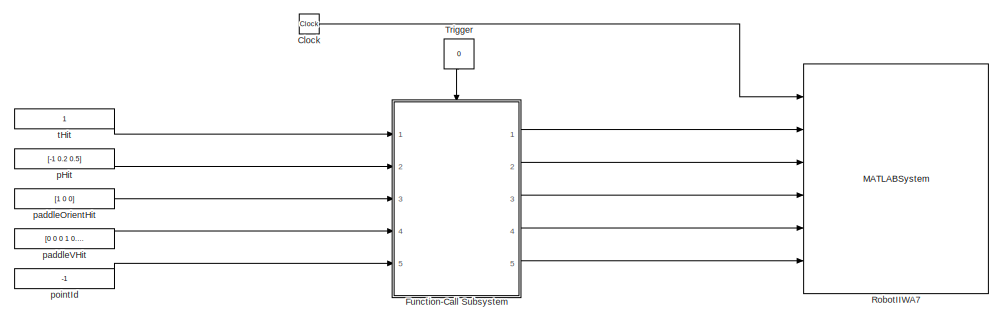
[diagram: root canvas - part 1/3, top left region]
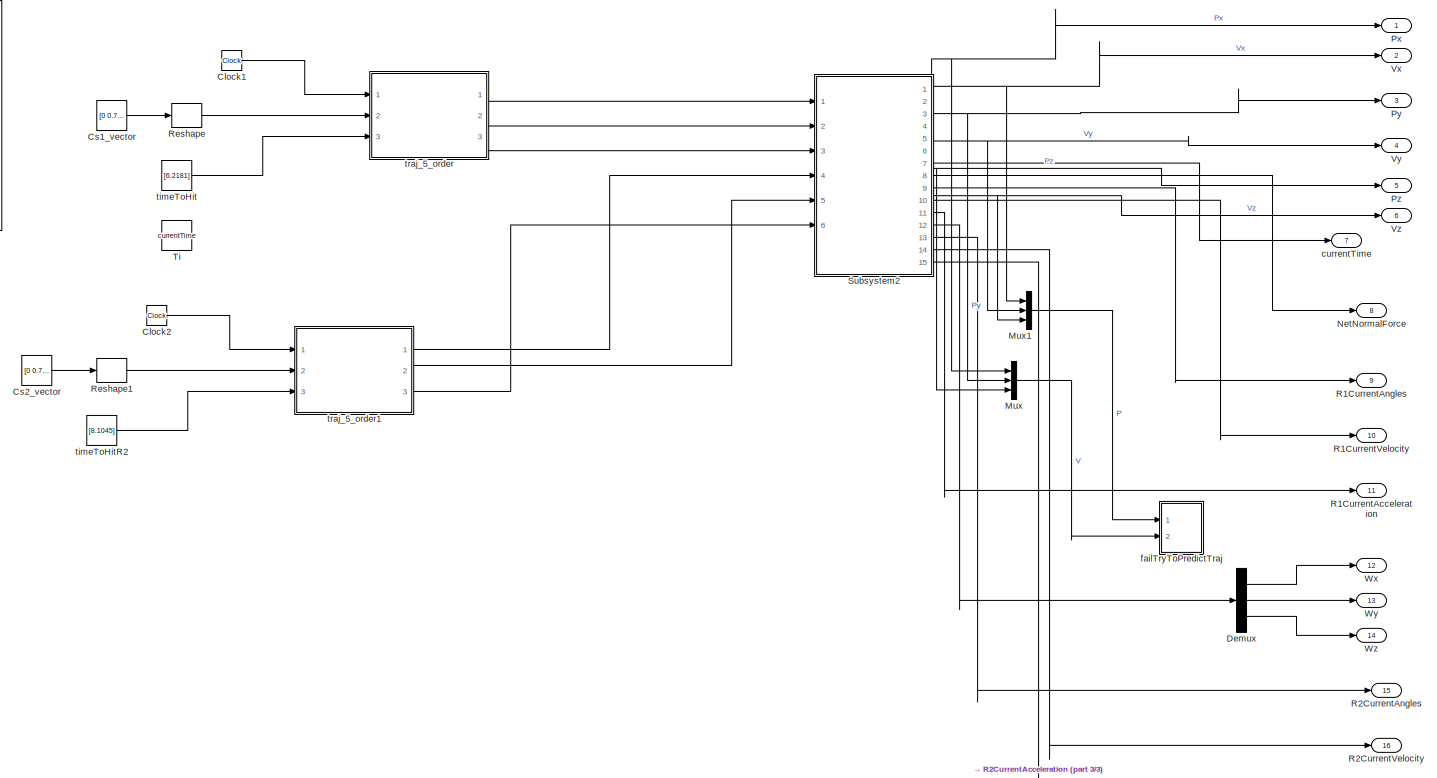
[diagram: root canvas - part 2/3, right side, full height]
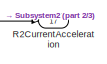
[diagram: root canvas - part 3/3, bottom right region]
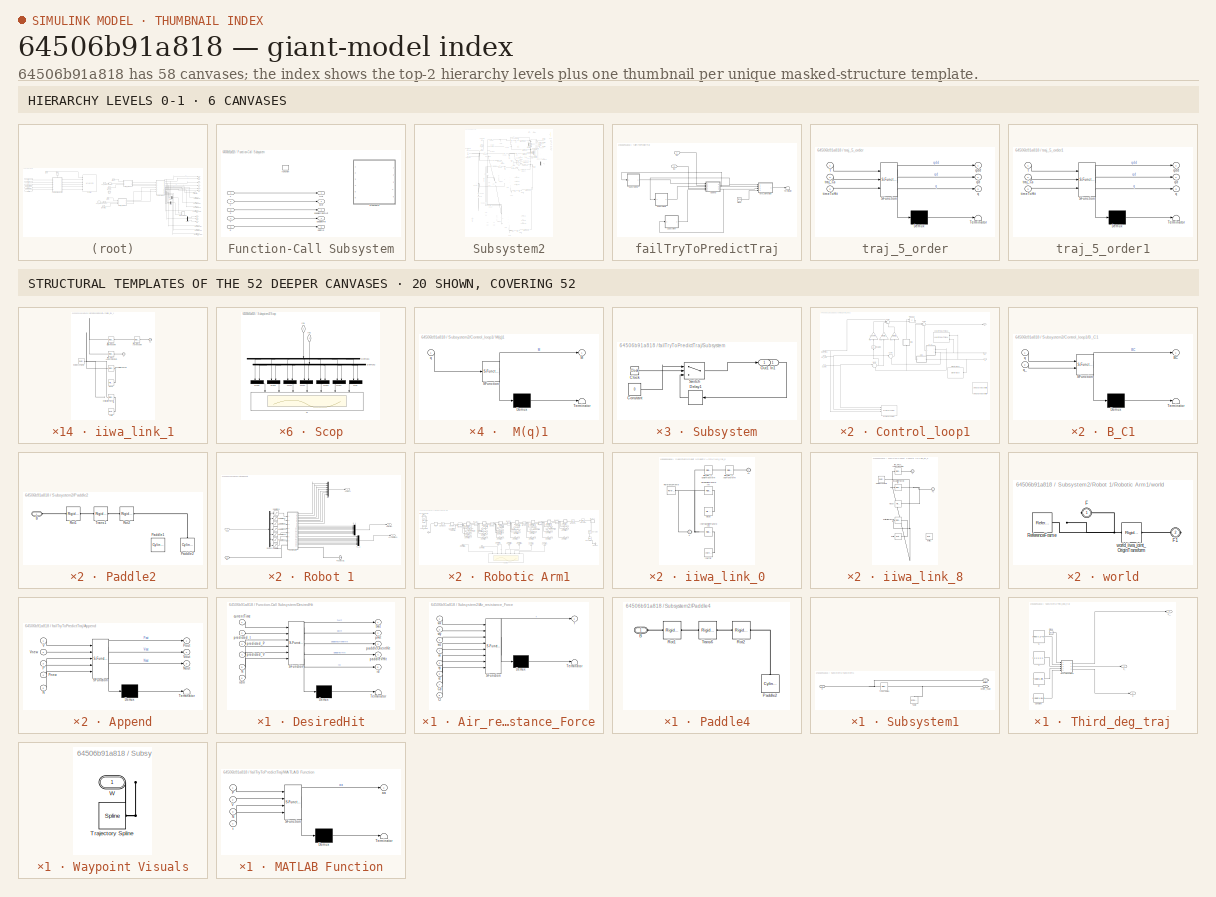
[diagram: thumbnail index - top-2 hierarchy levels (6 canvases) + 20 structural-template representatives of the remaining 52 canvases]
MODEL slx_64506b91a818
KIND model
CONFIG AbsTol = auto
CONFIG EnableMultiTasking = off
CONFIG FixedStep = auto
CONFIG MaxStep = updateFrequency
CONFIG MinStep = auto
CONFIG RelTol = 1e-3
CONFIG SampleTimeConstraint = Unconstrained
CONFIG Solver = VariableStepAuto
CONFIG SolverName = VariableStepAuto
CONFIG StartTime = 0.0
CONFIG StopTime = 30
BLOCK [Clock] Clock
  Commented = on
BLOCK [Clock] Clock1
BLOCK [Clock] Clock2
BLOCK [Constant] Cs1_vector
  SampleTime = 0.005
  Value = [0      0.7854           0     -0.7854           0      1.5708           0           0           0           0           0           0           0           0           0           0           0           0           0           0           0           0           0           0           0           0           0           0           0           0           0           0           0           0  ...<+95ch>
BLOCK [Constant] Cs2_vector
  SampleTime = 0.005
  Value = [0      0.7854           0     -0.7854           0      1.5708           0           0           0           0           0           0           0           0           0           0           0           0           0           0           0           0           0           0           0           0           0           0           0           0           0           0           0           0  ...<+95ch>
BLOCK [Demux] Demux
  DisplayOption = bar
  Outputs = 3
  Ports = [1, 3]
BLOCK [SubSystem] Function-Call Subsystem
  Commented = on
  Ports = [5, 5, 0, 1]
  RequestExecContextInheritance = off
  TreatAsAtomicUnit = on
BLOCK [Inport] Function-Call Subsystem/1
  IconDisplay = Port number
BLOCK [Inport] Function-Call Subsystem/2
  IconDisplay = Port number
  Port = 2
BLOCK [Inport] Function-Call Subsystem/3
  IconDisplay = Port number
  Port = 3
BLOCK [Inport] Function-Call Subsystem/4
  IconDisplay = Port number
  Port = 4
BLOCK [Inport] Function-Call Subsystem/5
  IconDisplay = Port number
  Port = 5
BLOCK [SubSystem] Function-Call Subsystem/DesiredHit
  Commented = on
  ErrorFcn = Stateflow.Translate.translate
  PermitHierarchicalResolution = ExplicitOnly
  Ports = [6, 5]
  RequestExecContextInheritance = off
  SFBlockType = MATLAB Function
  TreatAsAtomicUnit = on
BLOCK [Demux] Function-Call Subsystem/DesiredHit/ Demux 
  Outputs = 1
  Ports = [1, 1]
BLOCK [S-Function] Function-Call Subsystem/DesiredHit/ SFunction 
  EnableBusSupport = on
  FunctionName = sf_sfun
  PortCounts = [6 6]
  Ports = [6, 6]
  SFcnIsStateOwnerBlock = off
  SFunctionDeploymentMode = off
  Tag = Stateflow S-Function 6
BLOCK [Terminator] Function-Call Subsystem/DesiredHit/ Terminator 
BLOCK [Inport] Function-Call Subsystem/DesiredHit/N
  IconDisplay = Port number
  Port = 5
BLOCK [Inport] Function-Call Subsystem/DesiredHit/currentTime
  IconDisplay = Port number
BLOCK [Outport] Function-Call Subsystem/DesiredHit/id
  IconDisplay = Port number
  Port = 5
BLOCK [Inport] Function-Call Subsystem/DesiredHit/idIn
  IconDisplay = Port number
  Port = 6
BLOCK [Outport] Function-Call Subsystem/DesiredHit/pHit
  IconDisplay = Port number
  Port = 2
BLOCK [Outport] Function-Call Subsystem/DesiredHit/paddleOrientHit
  IconDisplay = Port number
  Port = 3
BLOCK [Outport] Function-Call Subsystem/DesiredHit/paddleVHit
  IconDisplay = Port number
  Port = 4
BLOCK [Inport] Function-Call Subsystem/DesiredHit/predicted_P
  IconDisplay = Port number
  Port = 3
BLOCK [Inport] Function-Call Subsystem/DesiredHit/predicted_V
  IconDisplay = Port number
  Port = 4
BLOCK [Inport] Function-Call Subsystem/DesiredHit/predicted_t
  IconDisplay = Port number
  Port = 2
BLOCK [Outport] Function-Call Subsystem/DesiredHit/tHit
  IconDisplay = Port number
BLOCK [TriggerPort] Function-Call Subsystem/function
  Ports = []
  StatesWhenEnabling = held
  TriggerType = either
  VariantControl = Variant
BLOCK [Outport] Function-Call Subsystem/pHit
  IconDisplay = Port number
  Port = 2
  PortDimensions = 3
BLOCK [Outport] Function-Call Subsystem/paddleOrientHit
  IconDisplay = Port number
  Port = 3
  PortDimensions = 3
BLOCK [Outport] Function-Call Subsystem/paddleVHit
  IconDisplay = Port number
  Port = 4
  PortDimensions = 6
BLOCK [Outport] Function-Call Subsystem/pointId
  IconDisplay = Port number
  Port = 5
BLOCK [Outport] Function-Call Subsystem/tHit
  IconDisplay = Port number
  PortDimensions = 1
BLOCK [Mux] Mux
  DisplayOption = bar
  Inputs = 3
  Ports = [3, 1]
BLOCK [Mux] Mux1
  DisplayOption = bar
  Inputs = 3
  Ports = [3, 1]
BLOCK [Outport] NetNormalForce
  IconDisplay = Port number
  Port = 8
BLOCK [Outport] Px
  IconDisplay = Port number
BLOCK [Outport] Py
  IconDisplay = Port number
  Port = 3
BLOCK [Outport] Pz
  IconDisplay = Port number
  Port = 5
BLOCK [Outport] R1CurrentAcceleration
  IconDisplay = Port number
  Port = 11
BLOCK [Outport] R1CurrentAngles
  IconDisplay = Port number
  Port = 9
BLOCK [Outport] R1CurrentVelocity
  IconDisplay = Port number
  Port = 10
BLOCK [Outport] R2CurrentAcceleration
  IconDisplay = Port number
  Port = 17
BLOCK [Outport] R2CurrentAngles
  IconDisplay = Port number
  Port = 15
BLOCK [Outport] R2CurrentVelocity
  IconDisplay = Port number
  Port = 16
BLOCK [Reshape] Reshape
  OutputDimensionality = Customize
  OutputDimensions = [7,6]
  Ports = [1, 1]
BLOCK [Reshape] Reshape1
  OutputDimensionality = Customize
  OutputDimensions = [7,6]
  Ports = [1, 1]
BLOCK [MATLABSystem] RobotIIWA7
  Commented = on
  MaskDisplay = disp('RobotIIWA7');\nport_label('input',1,'t');\nport_label('input',2,'tHit');\nport_label('input',3,'pHit');\nport_label('input',4,'paddleOrientHit');\nport_label('input',5,'paddleVHit');\nport_label('input',6,'id');\nport_label('output',1,'q');\nport_label('output',2,'qd');\nport_label('output',3,'qdd');
  MaskType = RobotIIWA7
  Ports = [6, 3]
  SimulateUsing = Interpreted execution
  System = RobotIIWA7
  initialQ = [ 0, pi / 4, 0, -pi / 4, 0, pi / 4, 0 ]'
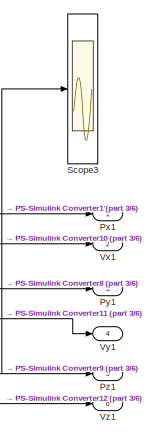
[diagram: Subsystem2 - part 1/6, top right region]
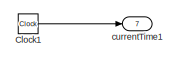
[diagram: Subsystem2 - part 2/6, top right region]
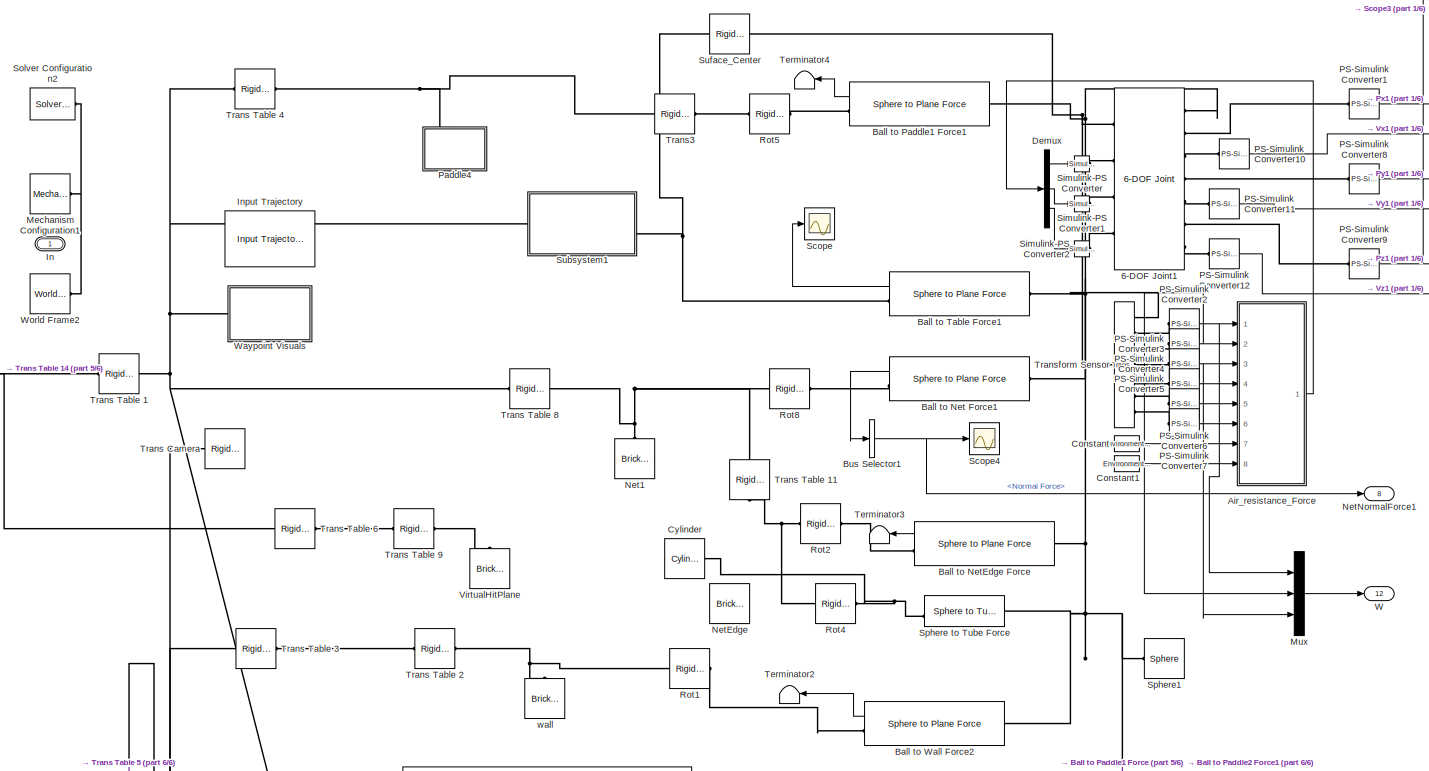
[diagram: Subsystem2 - part 3/6, full width, top band]
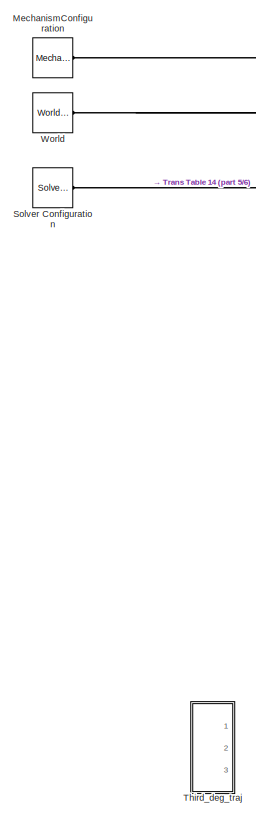
[diagram: Subsystem2 - part 4/6, middle left region]
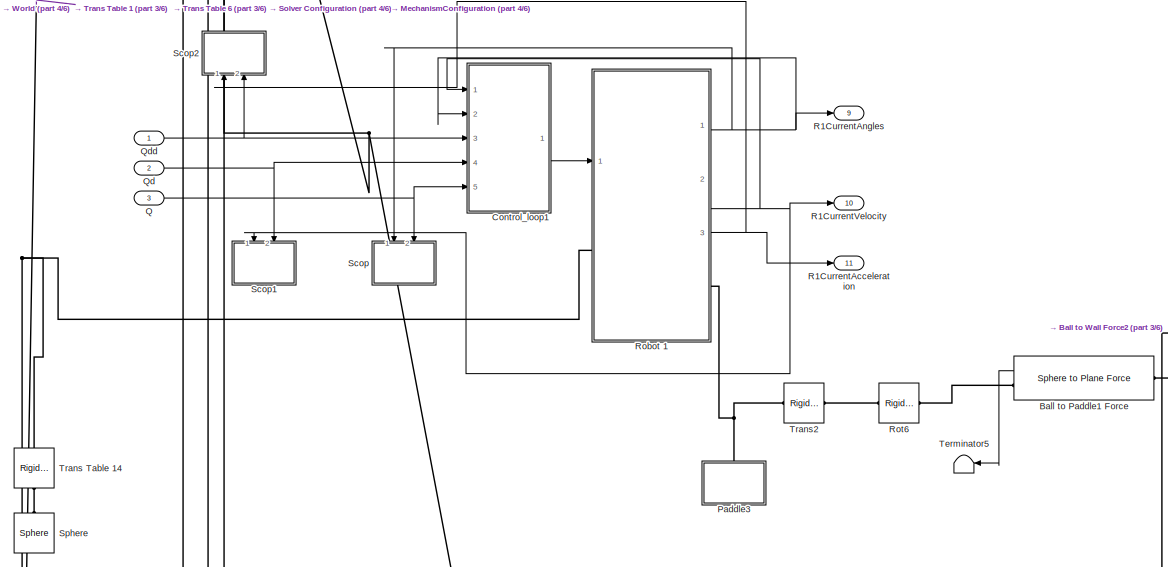
[diagram: Subsystem2 - part 5/6, central region]
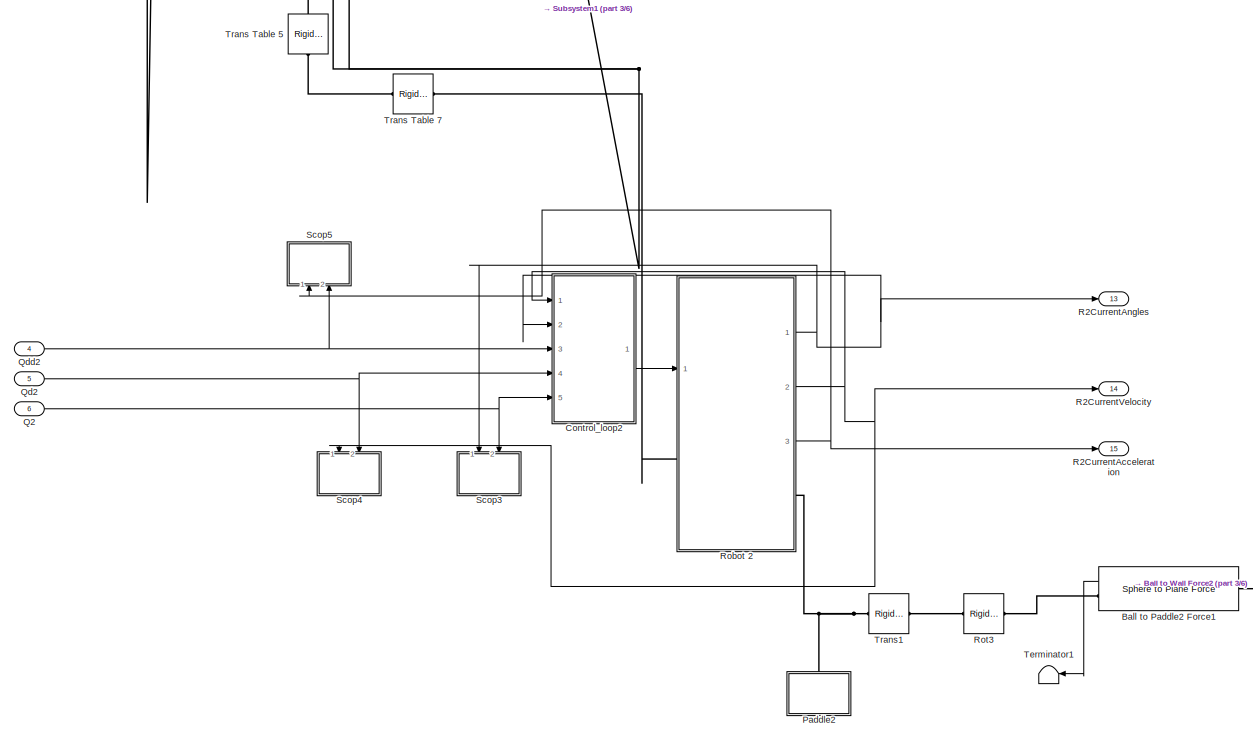
[diagram: Subsystem2 - part 6/6, bottom center region]
BLOCK [SubSystem] Subsystem2
  Ports = [6, 15, 0, 0, 0, 1]
  RequestExecContextInheritance = off
BLOCK [Reference] Subsystem2/6-DOF Joint1  REF=sm_lib/Joints/6-DOF Joint
  Ports = [0, 0, 0, 0, 0, 4, 7]
  SourceBlock = sm_lib/Joints/6-DOF Joint
  SourceProductBaseCode = MS
  SourceProductName = Simscape Multibody
  SourceType = 6-DOF Joint
BLOCK [SubSystem] Subsystem2/Air_resistance_Force
  ErrorFcn = Stateflow.Translate.translate
  PermitHierarchicalResolution = ExplicitOnly
  Ports = [8, 1]
  RequestExecContextInheritance = off
  SFBlockType = MATLAB Function
  TreatAsAtomicUnit = on
BLOCK [Demux] Subsystem2/Air_resistance_Force/ Demux 
  Outputs = 1
  Ports = [1, 1]
BLOCK [S-Function] Subsystem2/Air_resistance_Force/ SFunction 
  EnableBusSupport = on
  FunctionName = sf_sfun
  PortCounts = [8 2]
  Ports = [8, 2]
  SFcnIsStateOwnerBlock = off
  SFunctionDeploymentMode = off
  Tag = Stateflow S-Function 2
BLOCK [Terminator] Subsystem2/Air_resistance_Force/ Terminator 
BLOCK [Inport] Subsystem2/Air_resistance_Force/Cd
  IconDisplay = Port number
  Port = 7
BLOCK [Inport] Subsystem2/Air_resistance_Force/Cl
  IconDisplay = Port number
  Port = 8
BLOCK [Outport] Subsystem2/Air_resistance_Force/f
  IconDisplay = Port number
BLOCK [Inport] Subsystem2/Air_resistance_Force/vx
  IconDisplay = Port number
  Port = 4
BLOCK [Inport] Subsystem2/Air_resistance_Force/vy
  IconDisplay = Port number
  Port = 5
BLOCK [Inport] Subsystem2/Air_resistance_Force/vz
  IconDisplay = Port number
  Port = 6
BLOCK [Inport] Subsystem2/Air_resistance_Force/wx
  IconDisplay = Port number
BLOCK [Inport] Subsystem2/Air_resistance_Force/wy
  IconDisplay = Port number
  Port = 2
BLOCK [Inport] Subsystem2/Air_resistance_Force/wz
  IconDisplay = Port number
  Port = 3
BLOCK [Reference] Subsystem2/Ball to Net Force1  REF=Contact_Forces_Lib/3D/Sphere to Plane Force
  Ports = [0, 1, 0, 0, 0, 1, 1]
  SourceBlock = Contact_Forces_Lib/3D/Sphere to Plane Force
  SourceProductName = Simscape Multibody Contact Forces Library
  SourceType = Sphere to Plane Force
BLOCK [Reference] Subsystem2/Ball to NetEdge Force  REF=Contact_Forces_Lib/3D/Sphere to Plane Force
  Commented = on
  Ports = [0, 1, 0, 0, 0, 1, 1]
  SourceBlock = Contact_Forces_Lib/3D/Sphere to Plane Force
  SourceProductName = Simscape Multibody Contact Forces Library
  SourceType = Sphere to Plane Force
BLOCK [Reference] Subsystem2/Ball to Paddle1 Force  REF=Contact_Forces_Lib/3D/Sphere to Plane Force
  Ports = [0, 1, 0, 0, 0, 1, 1]
  SourceBlock = Contact_Forces_Lib/3D/Sphere to Plane Force
  SourceProductName = Simscape Multibody Contact Forces Library
  SourceType = Sphere to Plane Force
BLOCK [Reference] Subsystem2/Ball to Paddle1 Force1  REF=Contact_Forces_Lib/3D/Sphere to Plane Force
  Commented = on
  Ports = [0, 1, 0, 0, 0, 1, 1]
  SourceBlock = Contact_Forces_Lib/3D/Sphere to Plane Force
  SourceProductName = Simscape Multibody Contact Forces Library
  SourceType = Sphere to Plane Force
BLOCK [Reference] Subsystem2/Ball to Paddle2 Force1  REF=Contact_Forces_Lib/3D/Sphere to Plane Force
  Ports = [0, 1, 0, 0, 0, 1, 1]
  SourceBlock = Contact_Forces_Lib/3D/Sphere to Plane Force
  SourceProductName = Simscape Multibody Contact Forces Library
  SourceType = Sphere to Plane Force
BLOCK [Reference] Subsystem2/Ball to Table Force1  REF=Contact_Forces_Lib/3D/Sphere to Plane Force
  Ports = [0, 1, 0, 0, 0, 1, 1]
  SourceBlock = Contact_Forces_Lib/3D/Sphere to Plane Force
  SourceProductName = Simscape Multibody Contact Forces Library
  SourceType = Sphere to Plane Force
BLOCK [Reference] Subsystem2/Ball to Wall Force2  REF=Contact_Forces_Lib/3D/Sphere to Plane Force
  Commented = on
  Ports = [0, 1, 0, 0, 0, 1, 1]
  SourceBlock = Contact_Forces_Lib/3D/Sphere to Plane Force
  SourceProductName = Simscape Multibody Contact Forces Library
  SourceType = Sphere to Plane Force
BLOCK [BusSelector] Subsystem2/Bus Selector1
  OutputAsBus = off
  OutputSignals = Normal Force
  Ports = [1, 1]
BLOCK [Clock] Subsystem2/Clock1
BLOCK [Constant] Subsystem2/Constant
  Value = Environment.AirDrag
  VectorParams1D = off
BLOCK [Constant] Subsystem2/Constant1
  Value = Environment.Magnus
  VectorParams1D = off
BLOCK [SubSystem] Subsystem2/Control_loop1
  Ports = [5, 1]
  RequestExecContextInheritance = off
BLOCK [SubSystem] Subsystem2/Control_loop1/ M(q)1
  ErrorFcn = Stateflow.Translate.translate
  PermitHierarchicalResolution = ExplicitOnly
  Ports = [1, 1]
  RequestExecContextInheritance = off
  SFBlockType = MATLAB Function
  TreatAsAtomicUnit = on
BLOCK [Demux] Subsystem2/Control_loop1/ M(q)1/ Demux 
  Outputs = 1
  Ports = [1, 1]
BLOCK [S-Function] Subsystem2/Control_loop1/ M(q)1/ SFunction 
  EnableBusSupport = on
  FunctionName = sf_sfun
  PortCounts = [1 2]
  Ports = [1, 2]
  SFcnIsStateOwnerBlock = off
  SFunctionDeploymentMode = off
  Tag = Stateflow S-Function 5
BLOCK [Terminator] Subsystem2/Control_loop1/ M(q)1/ Terminator 
BLOCK [Outport] Subsystem2/Control_loop1/ M(q)1/M
  IconDisplay = Port number
BLOCK [Inport] Subsystem2/Control_loop1/ M(q)1/q
  IconDisplay = Port number
BLOCK [SubSystem] Subsystem2/Control_loop1/B_C1
  ErrorFcn = Stateflow.Translate.translate
  PermitHierarchicalResolution = ExplicitOnly
  Ports = [2, 1]
  RequestExecContextInheritance = off
  SFBlockType = MATLAB Function
  TreatAsAtomicUnit = on
BLOCK [Demux] Subsystem2/Control_loop1/B_C1/ Demux 
  Outputs = 1
  Ports = [1, 1]
BLOCK [S-Function] Subsystem2/Control_loop1/B_C1/ SFunction 
  EnableBusSupport = on
  FunctionName = sf_sfun
  PortCounts = [2 2]
  Ports = [2, 2]
  SFcnIsStateOwnerBlock = off
  SFunctionDeploymentMode = off
  Tag = Stateflow S-Function 8
BLOCK [Terminator] Subsystem2/Control_loop1/B_C1/ Terminator 
BLOCK [Outport] Subsystem2/Control_loop1/B_C1/BC
  IconDisplay = Port number
BLOCK [Inport] Subsystem2/Control_loop1/B_C1/q
  IconDisplay = Port number
BLOCK [Inport] Subsystem2/Control_loop1/B_C1/q_
  IconDisplay = Port number
  Port = 2
BLOCK [SubSystem] Subsystem2/Control_loop1/G(q)1
  ErrorFcn = Stateflow.Translate.translate
  PermitHierarchicalResolution = ExplicitOnly
  Ports = [1, 1]
  RequestExecContextInheritance = off
  SFBlockType = MATLAB Function
  TreatAsAtomicUnit = on
BLOCK [Demux] Subsystem2/Control_loop1/G(q)1/ Demux 
  Outputs = 1
  Ports = [1, 1]
BLOCK [S-Function] Subsystem2/Control_loop1/G(q)1/ SFunction 
  EnableBusSupport = on
  FunctionName = sf_sfun
  PortCounts = [1 2]
  Ports = [1, 2]
  SFcnIsStateOwnerBlock = off
  SFunctionDeploymentMode = off
  Tag = Stateflow S-Function 9
BLOCK [Terminator] Subsystem2/Control_loop1/G(q)1/ Terminator 
BLOCK [Outport] Subsystem2/Control_loop1/G(q)1/G
  IconDisplay = Port number
BLOCK [Inport] Subsystem2/Control_loop1/G(q)1/q
  IconDisplay = Port number
BLOCK [Reference] Subsystem2/Control_loop1/Gravity Torque  REF=robotmaniplib/Gravity Torque
  Commented = on
  Ports = [1, 1]
  SourceBlock = robotmaniplib/Gravity Torque
  SourceProductBaseCode = RO
  SourceProductName = Robotics System Toolbox
  SourceType = Gravity Torque
BLOCK [Integrator] Subsystem2/Control_loop1/Integrator1
  Ports = [1, 1]
BLOCK [Reference] Subsystem2/Control_loop1/Inverse Dynamics  REF=robotmaniplib/Inverse Dynamics
  Commented = on
  Ports = [4, 1]
  SourceBlock = robotmaniplib/Inverse Dynamics
  SourceProductBaseCode = RO
  SourceProductName = Robotics System Toolbox
  SourceType = Inverse Dynamics
BLOCK [Reference] Subsystem2/Control_loop1/Joint Space Mass Matrix  REF=robotmaniplib/Joint Space Mass Matrix
  Commented = on
  Ports = [1, 1]
  SourceBlock = robotmaniplib/Joint Space Mass Matrix
  SourceProductBaseCode = RO
  SourceProductName = Robotics System Toolbox
  SourceType = Joint Space Mass Matrix
BLOCK [Gain] Subsystem2/Control_loop1/Kd1
  Gain = diag([200,200,200,200,200,200,200])
  Multiplication = Matrix(K*u) (u vector)
  OutDataTypeStr = Inherit: Inherit via internal rule
  ParamDataTypeStr = Inherit: Inherit via internal rule
  SaturateOnIntegerOverflow = off
BLOCK [Gain] Subsystem2/Control_loop1/Ki1
  Gain = 1000*ones(7,1)
  OutDataTypeStr = Inherit: Inherit via internal rule
  ParamDataTypeStr = Inherit: Inherit via internal rule
  SaturateOnIntegerOverflow = off
BLOCK [Gain] Subsystem2/Control_loop1/Kp1
  Gain = diag([2500,2500,2500,2500,2500,2500,2500])*4
  Multiplication = Matrix(K*u) (u vector)
  OutDataTypeStr = Inherit: Inherit via internal rule
  ParamDataTypeStr = Inherit: Inherit via internal rule
  SaturateOnIntegerOverflow = off
BLOCK [Product] Subsystem2/Control_loop1/Product1
  InputSameDT = off
  Multiplication = Matrix(*)
  OutDataTypeStr = Inherit: Inherit via internal rule
  Ports = [2, 1]
  RndMeth = Floor
  SaturateOnIntegerOverflow = off
BLOCK [Sum] Subsystem2/Control_loop1/Sum4
  IconShape = round
  InputSameDT = off
  Inputs = |+++
  OutDataTypeStr = Inherit: Inherit via internal rule
  Ports = [3, 1]
  SaturateOnIntegerOverflow = off
BLOCK [Sum] Subsystem2/Control_loop1/Sum5
  IconShape = round
  InputSameDT = off
  Inputs = |+-
  OutDataTypeStr = Inherit: Inherit via internal rule
  Ports = [2, 1]
  SaturateOnIntegerOverflow = off
BLOCK [Sum] Subsystem2/Control_loop1/Sum6
  IconShape = round
  InputSameDT = off
  Inputs = |+-
  OutDataTypeStr = Inherit: Inherit via internal rule
  Ports = [2, 1]
  SaturateOnIntegerOverflow = off
BLOCK [Sum] Subsystem2/Control_loop1/Sum7
  IconShape = round
  InputSameDT = off
  Inputs = |++++
  OutDataTypeStr = Inherit: Inherit via internal rule
  Ports = [4, 1]
  SaturateOnIntegerOverflow = off
BLOCK [Outport] Subsystem2/Control_loop1/T
  IconDisplay = Port number
BLOCK [Reference] Subsystem2/Control_loop1/Velocity Product Torque  REF=robotmaniplib/Velocity Product Torque
  Commented = on
  Ports = [2, 1]
  SourceBlock = robotmaniplib/Velocity Product Torque
  SourceProductBaseCode = RO
  SourceProductName = Robotics System Toolbox
  SourceType = Velocity Product Torque
BLOCK [Inport] Subsystem2/Control_loop1/q
  IconDisplay = Port number
  Port = 2
BLOCK [Inport] Subsystem2/Control_loop1/q_des
  IconDisplay = Port number
  Port = 5
BLOCK [Inport] Subsystem2/Control_loop1/qd
  IconDisplay = Port number
BLOCK [Inport] Subsystem2/Control_loop1/qd_des
  IconDisplay = Port number
  Port = 4
BLOCK [Inport] Subsystem2/Control_loop1/qdd_des
  IconDisplay = Port number
  Port = 3
BLOCK [SubSystem] Subsystem2/Control_loop2
  Ports = [5, 1]
  RequestExecContextInheritance = off
BLOCK [SubSystem] Subsystem2/Control_loop2/ M(q)1
  ErrorFcn = Stateflow.Translate.translate
  PermitHierarchicalResolution = ExplicitOnly
  Ports = [1, 1]
  RequestExecContextInheritance = off
  SFBlockType = MATLAB Function
  TreatAsAtomicUnit = on
BLOCK [Demux] Subsystem2/Control_loop2/ M(q)1/ Demux 
  Outputs = 1
  Ports = [1, 1]
BLOCK [S-Function] Subsystem2/Control_loop2/ M(q)1/ SFunction 
  EnableBusSupport = on
  FunctionName = sf_sfun
  PortCounts = [1 2]
  Ports = [1, 2]
  SFcnIsStateOwnerBlock = off
  SFunctionDeploymentMode = off
  Tag = Stateflow S-Function 7
BLOCK [Terminator] Subsystem2/Control_loop2/ M(q)1/ Terminator 
BLOCK [Outport] Subsystem2/Control_loop2/ M(q)1/M
  IconDisplay = Port number
BLOCK [Inport] Subsystem2/Control_loop2/ M(q)1/q
  IconDisplay = Port number
BLOCK [SubSystem] Subsystem2/Control_loop2/B_C1
  ErrorFcn = Stateflow.Translate.translate
  PermitHierarchicalResolution = ExplicitOnly
  Ports = [2, 1]
  RequestExecContextInheritance = off
  SFBlockType = MATLAB Function
  TreatAsAtomicUnit = on
BLOCK [Demux] Subsystem2/Control_loop2/B_C1/ Demux 
  Outputs = 1
  Ports = [1, 1]
BLOCK [S-Function] Subsystem2/Control_loop2/B_C1/ SFunction 
  EnableBusSupport = on
  FunctionName = sf_sfun
  PortCounts = [2 2]
  Ports = [2, 2]
  SFcnIsStateOwnerBlock = off
  SFunctionDeploymentMode = off
  Tag = Stateflow S-Function 11
BLOCK [Terminator] Subsystem2/Control_loop2/B_C1/ Terminator 
BLOCK [Outport] Subsystem2/Control_loop2/B_C1/BC
  IconDisplay = Port number
BLOCK [Inport] Subsystem2/Control_loop2/B_C1/q
  IconDisplay = Port number
BLOCK [Inport] Subsystem2/Control_loop2/B_C1/q_
  IconDisplay = Port number
  Port = 2
BLOCK [SubSystem] Subsystem2/Control_loop2/G(q)1
  ErrorFcn = Stateflow.Translate.translate
  PermitHierarchicalResolution = ExplicitOnly
  Ports = [1, 1]
  RequestExecContextInheritance = off
  SFBlockType = MATLAB Function
  TreatAsAtomicUnit = on
BLOCK [Demux] Subsystem2/Control_loop2/G(q)1/ Demux 
  Outputs = 1
  Ports = [1, 1]
BLOCK [S-Function] Subsystem2/Control_loop2/G(q)1/ SFunction 
  EnableBusSupport = on
  FunctionName = sf_sfun
  PortCounts = [1 2]
  Ports = [1, 2]
  SFcnIsStateOwnerBlock = off
  SFunctionDeploymentMode = off
  Tag = Stateflow S-Function 12
BLOCK [Terminator] Subsystem2/Control_loop2/G(q)1/ Terminator 
BLOCK [Outport] Subsystem2/Control_loop2/G(q)1/G
  IconDisplay = Port number
BLOCK [Inport] Subsystem2/Control_loop2/G(q)1/q
  IconDisplay = Port number
BLOCK [Reference] Subsystem2/Control_loop2/Gravity Torque  REF=robotmaniplib/Gravity Torque
  Commented = on
  Ports = [1, 1]
  SourceBlock = robotmaniplib/Gravity Torque
  SourceProductBaseCode = RO
  SourceProductName = Robotics System Toolbox
  SourceType = Gravity Torque
BLOCK [Integrator] Subsystem2/Control_loop2/Integrator1
  Ports = [1, 1]
BLOCK [Reference] Subsystem2/Control_loop2/Inverse Dynamics  REF=robotmaniplib/Inverse Dynamics
  Commented = on
  Ports = [4, 1]
  SourceBlock = robotmaniplib/Inverse Dynamics
  SourceProductBaseCode = RO
  SourceProductName = Robotics System Toolbox
  SourceType = Inverse Dynamics
BLOCK [Reference] Subsystem2/Control_loop2/Joint Space Mass Matrix  REF=robotmaniplib/Joint Space Mass Matrix
  Commented = on
  Ports = [1, 1]
  SourceBlock = robotmaniplib/Joint Space Mass Matrix
  SourceProductBaseCode = RO
  SourceProductName = Robotics System Toolbox
  SourceType = Joint Space Mass Matrix
BLOCK [Gain] Subsystem2/Control_loop2/Kd1
  Gain = diag([200,200,200,200,200,200,200])
  Multiplication = Matrix(K*u) (u vector)
  OutDataTypeStr = Inherit: Inherit via internal rule
  ParamDataTypeStr = Inherit: Inherit via internal rule
  SaturateOnIntegerOverflow = off
BLOCK [Gain] Subsystem2/Control_loop2/Ki1
  Gain = 1000*ones(7,1)
  OutDataTypeStr = Inherit: Inherit via internal rule
  ParamDataTypeStr = Inherit: Inherit via internal rule
  SaturateOnIntegerOverflow = off
BLOCK [Gain] Subsystem2/Control_loop2/Kp1
  Gain = diag([2500,2500,2500,2500,2500,2500,2500])*4
  Multiplication = Matrix(K*u) (u vector)
  OutDataTypeStr = Inherit: Inherit via internal rule
  ParamDataTypeStr = Inherit: Inherit via internal rule
  SaturateOnIntegerOverflow = off
BLOCK [Product] Subsystem2/Control_loop2/Product1
  InputSameDT = off
  Multiplication = Matrix(*)
  OutDataTypeStr = Inherit: Inherit via internal rule
  Ports = [2, 1]
  RndMeth = Floor
  SaturateOnIntegerOverflow = off
BLOCK [Sum] Subsystem2/Control_loop2/Sum4
  IconShape = round
  InputSameDT = off
  Inputs = |+++
  OutDataTypeStr = Inherit: Inherit via internal rule
  Ports = [3, 1]
  SaturateOnIntegerOverflow = off
BLOCK [Sum] Subsystem2/Control_loop2/Sum5
  IconShape = round
  InputSameDT = off
  Inputs = |+-
  OutDataTypeStr = Inherit: Inherit via internal rule
  Ports = [2, 1]
  SaturateOnIntegerOverflow = off
BLOCK [Sum] Subsystem2/Control_loop2/Sum6
  IconShape = round
  InputSameDT = off
  Inputs = |+-
  OutDataTypeStr = Inherit: Inherit via internal rule
  Ports = [2, 1]
  SaturateOnIntegerOverflow = off
BLOCK [Sum] Subsystem2/Control_loop2/Sum7
  IconShape = round
  InputSameDT = off
  Inputs = |++++
  OutDataTypeStr = Inherit: Inherit via internal rule
  Ports = [4, 1]
  SaturateOnIntegerOverflow = off
BLOCK [Outport] Subsystem2/Control_loop2/T
  IconDisplay = Port number
BLOCK [Reference] Subsystem2/Control_loop2/Velocity Product Torque  REF=robotmaniplib/Velocity Product Torque
  Commented = on
  Ports = [2, 1]
  SourceBlock = robotmaniplib/Velocity Product Torque
  SourceProductBaseCode = RO
  SourceProductName = Robotics System Toolbox
  SourceType = Velocity Product Torque
BLOCK [Inport] Subsystem2/Control_loop2/q
  IconDisplay = Port number
  Port = 2
BLOCK [Inport] Subsystem2/Control_loop2/q_des
  IconDisplay = Port number
  Port = 5
BLOCK [Inport] Subsystem2/Control_loop2/qd
  IconDisplay = Port number
BLOCK [Inport] Subsystem2/Control_loop2/qd_des
  IconDisplay = Port number
  Port = 4
BLOCK [Inport] Subsystem2/Control_loop2/qdd_des
  IconDisplay = Port number
  Port = 3
BLOCK [Reference] Subsystem2/Cylinder  REF=Multibody_Parts_Lib/Basic/Cylinder
  Ports = [0, 0, 0, 0, 0, 0, 1]
  SourceBlock = Multibody_Parts_Lib/Basic/Cylinder
  SourceProductName = Simscape Multibody Parts Library
  SourceType = Cylinder with Hole
BLOCK [Demux] Subsystem2/Demux
  DisplayOption = bar
  Outputs = 3
  Ports = [1, 3]
BLOCK [PMIOPort] Subsystem2/In
  Side = Left
BLOCK [Reference] Subsystem2/Input Trajectory  REF=OpenManipulatorLib/Input Trajectory
  Commented = on
  Ports = [0, 2]
  SourceBlock = OpenManipulatorLib/Input Trajectory
  SourceType = Input Trajectory
BLOCK [Reference] Subsystem2/Mechanism Configuration1  REF=sm_lib/Utilities/Mechanism
Configuration
  Commented = on
  Ports = [0, 0, 0, 0, 0, 0, 1]
  SourceBlock = sm_lib/Utilities/Mechanism\nConfiguration
  SourceProductBaseCode = MS
  SourceProductName = Simscape Multibody
  SourceType = Mechanism\nConfiguration
BLOCK [Reference] Subsystem2/MechanismConfiguration  REF=sm_lib/Utilities/Mechanism
Configuration
  Ports = [0, 0, 0, 0, 0, 0, 1]
  SourceBlock = sm_lib/Utilities/Mechanism\nConfiguration
  SourceProductBaseCode = MS
  SourceProductName = Simscape Multibody
  SourceType = Mechanism\nConfiguration
BLOCK [Mux] Subsystem2/Mux
  DisplayOption = bar
  Inputs = 3
  Ports = [3, 1]
BLOCK [Reference] Subsystem2/Net1  REF=sm_lib/Body Elements/Brick Solid
  Ports = [0, 0, 0, 0, 0, 0, 1]
  SourceBlock = sm_lib/Body Elements/Brick Solid
  SourceProductBaseCode = MS
  SourceProductName = Simscape Multibody
  SourceType = Brick Solid
BLOCK [Reference] Subsystem2/NetEdge  REF=sm_lib/Body Elements/Brick Solid
  Commented = on
  Ports = [0, 0, 0, 0, 0, 0, 1]
  SourceBlock = sm_lib/Body Elements/Brick Solid
  SourceProductBaseCode = MS
  SourceProductName = Simscape Multibody
  SourceType = Brick Solid
BLOCK [Outport] Subsystem2/NetNormalForce1
  IconDisplay = Port number
  Port = 8
BLOCK [Reference] Subsystem2/PS-Simulink Converter1  REF=nesl_utility/PS-Simulink
Converter
  Ports = [0, 1, 0, 0, 0, 1]
  SourceBlock = nesl_utility/PS-Simulink\nConverter
  SourceProductBaseCode = SS
  SourceProductName = Simscape
  SourceType = PS-Simulink\nConverter
BLOCK [Reference] Subsystem2/PS-Simulink Converter10  REF=nesl_utility/PS-Simulink
Converter
  Ports = [0, 1, 0, 0, 0, 1]
  SourceBlock = nesl_utility/PS-Simulink\nConverter
  SourceProductBaseCode = SS
  SourceProductName = Simscape
  SourceType = PS-Simulink\nConverter
BLOCK [Reference] Subsystem2/PS-Simulink Converter11  REF=nesl_utility/PS-Simulink
Converter
  Ports = [0, 1, 0, 0, 0, 1]
  SourceBlock = nesl_utility/PS-Simulink\nConverter
  SourceProductBaseCode = SS
  SourceProductName = Simscape
  SourceType = PS-Simulink\nConverter
BLOCK [Reference] Subsystem2/PS-Simulink Converter12  REF=nesl_utility/PS-Simulink
Converter
  Ports = [0, 1, 0, 0, 0, 1]
  SourceBlock = nesl_utility/PS-Simulink\nConverter
  SourceProductBaseCode = SS
  SourceProductName = Simscape
  SourceType = PS-Simulink\nConverter
BLOCK [Reference] Subsystem2/PS-Simulink Converter2  REF=nesl_utility/PS-Simulink
Converter
  Ports = [0, 1, 0, 0, 0, 1]
  SourceBlock = nesl_utility/PS-Simulink\nConverter
  SourceProductBaseCode = SS
  SourceProductName = Simscape
  SourceType = PS-Simulink\nConverter
BLOCK [Reference] Subsystem2/PS-Simulink Converter3  REF=nesl_utility/PS-Simulink
Converter
  Ports = [0, 1, 0, 0, 0, 1]
  SourceBlock = nesl_utility/PS-Simulink\nConverter
  SourceProductBaseCode = SS
  SourceProductName = Simscape
  SourceType = PS-Simulink\nConverter
BLOCK [Reference] Subsystem2/PS-Simulink Converter4  REF=nesl_utility/PS-Simulink
Converter
  Ports = [0, 1, 0, 0, 0, 1]
  SourceBlock = nesl_utility/PS-Simulink\nConverter
  SourceProductBaseCode = SS
  SourceProductName = Simscape
  SourceType = PS-Simulink\nConverter
BLOCK [Reference] Subsystem2/PS-Simulink Converter5  REF=nesl_utility/PS-Simulink
Converter
  Ports = [0, 1, 0, 0, 0, 1]
  SourceBlock = nesl_utility/PS-Simulink\nConverter
  SourceProductBaseCode = SS
  SourceProductName = Simscape
  SourceType = PS-Simulink\nConverter
BLOCK [Reference] Subsystem2/PS-Simulink Converter6  REF=nesl_utility/PS-Simulink
Converter
  Ports = [0, 1, 0, 0, 0, 1]
  SourceBlock = nesl_utility/PS-Simulink\nConverter
  SourceProductBaseCode = SS
  SourceProductName = Simscape
  SourceType = PS-Simulink\nConverter
BLOCK [Reference] Subsystem2/PS-Simulink Converter7  REF=nesl_utility/PS-Simulink
Converter
  Ports = [0, 1, 0, 0, 0, 1]
  SourceBlock = nesl_utility/PS-Simulink\nConverter
  SourceProductBaseCode = SS
  SourceProductName = Simscape
  SourceType = PS-Simulink\nConverter
BLOCK [Reference] Subsystem2/PS-Simulink Converter8  REF=nesl_utility/PS-Simulink
Converter
  Ports = [0, 1, 0, 0, 0, 1]
  SourceBlock = nesl_utility/PS-Simulink\nConverter
  SourceProductBaseCode = SS
  SourceProductName = Simscape
  SourceType = PS-Simulink\nConverter
BLOCK [Reference] Subsystem2/PS-Simulink Converter9  REF=nesl_utility/PS-Simulink
Converter
  Ports = [0, 1, 0, 0, 0, 1]
  SourceBlock = nesl_utility/PS-Simulink\nConverter
  SourceProductBaseCode = SS
  SourceProductName = Simscape
  SourceType = PS-Simulink\nConverter
BLOCK [SubSystem] Subsystem2/Paddle2
  Ports = [0, 0, 0, 0, 0, 1]
  RequestExecContextInheritance = off
BLOCK [PMIOPort] Subsystem2/Paddle2/B
  Side = Left
BLOCK [Reference] Subsystem2/Paddle2/Paddle1  REF=Parts_Lib/Cylinder
  Commented = on
  Ports = [0, 0, 0, 0, 0, 1]
  SourceBlock = Parts_Lib/Cylinder
  SourceType = Solid Cylinder with Markings
  Tag = CustomStyle
BLOCK [Reference] Subsystem2/Paddle2/Paddle2  REF=Parts_Lib/Cylinder
  Ports = [0, 0, 0, 0, 0, 1]
  SourceBlock = Parts_Lib/Cylinder
  SourceType = Solid Cylinder with Markings
  Tag = CustomStyle
BLOCK [Reference] Subsystem2/Paddle2/Rot1  REF=sm_lib/Frames and
Transforms/Rigid
Transform
  AttributesFormatString = %<RotationAngle> %<RotationAngleUnits>\nabout %<RotationStandardAxis>
  Ports = [0, 0, 0, 0, 0, 1, 1]
  SourceBlock = sm_lib/Frames and\nTransforms/Rigid\nTransform
  SourceProductBaseCode = MS
  SourceProductName = Simscape Multibody
  SourceType = Rigid\nTransform
BLOCK [Reference] Subsystem2/Paddle2/Rot2  REF=sm_lib/Frames and
Transforms/Rigid
Transform
  AttributesFormatString = %<RotationAngle> %<RotationAngleUnits>\nabout %<RotationStandardAxis>
  Ports = [0, 0, 0, 0, 0, 1, 1]
  SourceBlock = sm_lib/Frames and\nTransforms/Rigid\nTransform
  SourceProductBaseCode = MS
  SourceProductName = Simscape Multibody
  SourceType = Rigid\nTransform
BLOCK [Reference] Subsystem2/Paddle2/Trans1  REF=sm_lib/Frames and
Transforms/Rigid
Transform
  AttributesFormatString = %<TranslationStandardOffset> %<TranslationLengthUnit>\nin %<TranslationStandardAxis>
  Ports = [0, 0, 0, 0, 0, 1, 1]
  SourceBlock = sm_lib/Frames and\nTransforms/Rigid\nTransform
  SourceProductBaseCode = MS
  SourceProductName = Simscape Multibody
  SourceType = Rigid\nTransform
BLOCK [SubSystem] Subsystem2/Paddle3
  Ports = [0, 0, 0, 0, 0, 1]
  RequestExecContextInheritance = off
BLOCK [PMIOPort] Subsystem2/Paddle3/B
  Side = Left
BLOCK [Reference] Subsystem2/Paddle3/Paddle1  REF=Parts_Lib/Cylinder
  Commented = on
  Ports = [0, 0, 0, 0, 0, 1]
  SourceBlock = Parts_Lib/Cylinder
  SourceType = Solid Cylinder with Markings
  Tag = CustomStyle
BLOCK [Reference] Subsystem2/Paddle3/Paddle2  REF=Parts_Lib/Cylinder
  Ports = [0, 0, 0, 0, 0, 1]
  SourceBlock = Parts_Lib/Cylinder
  SourceType = Solid Cylinder with Markings
  Tag = CustomStyle
BLOCK [Reference] Subsystem2/Paddle3/Rot1  REF=sm_lib/Frames and
Transforms/Rigid
Transform
  AttributesFormatString = %<RotationAngle> %<RotationAngleUnits>\nabout %<RotationStandardAxis>
  Ports = [0, 0, 0, 0, 0, 1, 1]
  SourceBlock = sm_lib/Frames and\nTransforms/Rigid\nTransform
  SourceProductBaseCode = MS
  SourceProductName = Simscape Multibody
  SourceType = Rigid\nTransform
BLOCK [Reference] Subsystem2/Paddle3/Rot2  REF=sm_lib/Frames and
Transforms/Rigid
Transform
  AttributesFormatString = %<RotationAngle> %<RotationAngleUnits>\nabout %<RotationStandardAxis>
  Ports = [0, 0, 0, 0, 0, 1, 1]
  SourceBlock = sm_lib/Frames and\nTransforms/Rigid\nTransform
  SourceProductBaseCode = MS
  SourceProductName = Simscape Multibody
  SourceType = Rigid\nTransform
BLOCK [Reference] Subsystem2/Paddle3/Trans1  REF=sm_lib/Frames and
Transforms/Rigid
Transform
  AttributesFormatString = %<TranslationStandardOffset> %<TranslationLengthUnit>\nin %<TranslationStandardAxis>
  Ports = [0, 0, 0, 0, 0, 1, 1]
  SourceBlock = sm_lib/Frames and\nTransforms/Rigid\nTransform
  SourceProductBaseCode = MS
  SourceProductName = Simscape Multibody
  SourceType = Rigid\nTransform
BLOCK [SubSystem] Subsystem2/Paddle4
  Commented = on
  Ports = [0, 0, 0, 0, 0, 1]
  RequestExecContextInheritance = off
BLOCK [PMIOPort] Subsystem2/Paddle4/B
  Side = Left
BLOCK [Reference] Subsystem2/Paddle4/Paddle2  REF=Parts_Lib/Cylinder
  Ports = [0, 0, 0, 0, 0, 1]
  SourceBlock = Parts_Lib/Cylinder
  SourceType = Solid Cylinder with Markings
  Tag = CustomStyle
BLOCK [Reference] Subsystem2/Paddle4/Rot1  REF=sm_lib/Frames and
Transforms/Rigid
Transform
  AttributesFormatString = %<RotationAngle> %<RotationAngleUnits>\nabout %<RotationStandardAxis>
  Ports = [0, 0, 0, 0, 0, 1, 1]
  SourceBlock = sm_lib/Frames and\nTransforms/Rigid\nTransform
  SourceProductBaseCode = MS
  SourceProductName = Simscape Multibody
  SourceType = Rigid\nTransform
BLOCK [Reference] Subsystem2/Paddle4/Rot2  REF=sm_lib/Frames and
Transforms/Rigid
Transform
  AttributesFormatString = %<RotationAngle> %<RotationAngleUnits>\nabout %<RotationStandardAxis>
  Ports = [0, 0, 0, 0, 0, 1, 1]
  SourceBlock = sm_lib/Frames and\nTransforms/Rigid\nTransform
  SourceProductBaseCode = MS
  SourceProductName = Simscape Multibody
  SourceType = Rigid\nTransform
BLOCK [Reference] Subsystem2/Paddle4/Trans6  REF=sm_lib/Frames and
Transforms/Rigid
Transform
  AttributesFormatString = %<TranslationStandardOffset> %<TranslationLengthUnit>\nin %<TranslationStandardAxis>
  Ports = [0, 0, 0, 0, 0, 1, 1]
  SourceBlock = sm_lib/Frames and\nTransforms/Rigid\nTransform
  SourceProductBaseCode = MS
  SourceProductName = Simscape Multibody
  SourceType = Rigid\nTransform
BLOCK [Outport] Subsystem2/Px1
  IconDisplay = Port number
BLOCK [Outport] Subsystem2/Py1
  IconDisplay = Port number
  Port = 3
BLOCK [Outport] Subsystem2/Pz1
  IconDisplay = Port number
  Port = 5
BLOCK [Inport] Subsystem2/Q
  IconDisplay = Port number
  Port = 3
BLOCK [Inport] Subsystem2/Q2
  IconDisplay = Port number
  Port = 6
BLOCK [Inport] Subsystem2/Qd
  IconDisplay = Port number
  Port = 2
BLOCK [Inport] Subsystem2/Qd2
  IconDisplay = Port number
  Port = 5
BLOCK [Inport] Subsystem2/Qdd
  IconDisplay = Port number
BLOCK [Inport] Subsystem2/Qdd2
  IconDisplay = Port number
  Port = 4
BLOCK [Outport] Subsystem2/R1CurrentAcceleration
  IconDisplay = Port number
  Port = 11
  PortDimensions = [1,7]
BLOCK [Outport] Subsystem2/R1CurrentAngles
  IconDisplay = Port number
  Port = 9
  PortDimensions = [1,7]
BLOCK [Outport] Subsystem2/R1CurrentVelocity
  IconDisplay = Port number
  Port = 10
  PortDimensions = [1,7]
BLOCK [Outport] Subsystem2/R2CurrentAcceleration
  IconDisplay = Port number
  Port = 15
  PortDimensions = [1,7]
BLOCK [Outport] Subsystem2/R2CurrentAngles
  IconDisplay = Port number
  Port = 13
  PortDimensions = [1,7]
BLOCK [Outport] Subsystem2/R2CurrentVelocity
  IconDisplay = Port number
  Port = 14
  PortDimensions = [1,7]
BLOCK [SubSystem] Subsystem2/Robot 1
  Ports = [1, 3, 0, 0, 0, 1, 1]
  RequestExecContextInheritance = off
BLOCK [Outport] Subsystem2/Robot 1/Acceleration1
  IconDisplay = Port number
  Port = 3
BLOCK [Outport] Subsystem2/Robot 1/Angles1
  IconDisplay = Port number
BLOCK [PMIOPort] Subsystem2/Robot 1/B1
  Side = Left
BLOCK [Demux] Subsystem2/Robot 1/Demux1
  DisplayOption = bar
  Outputs = 7
  Ports = [1, 7]
BLOCK [PMIOPort] Subsystem2/Robot 1/Paddle out1
  Port = 2
  Side = Right
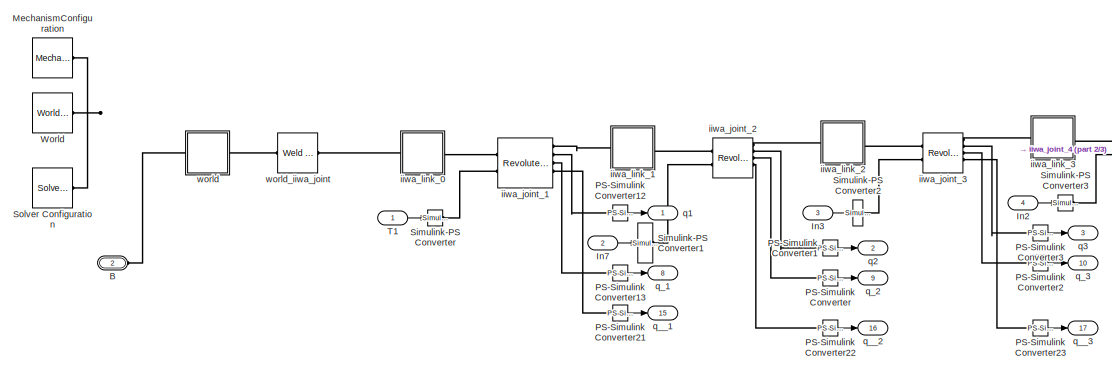
[diagram: Subsystem2/Robot 1/Robotic Arm1 - part 1/3, top left region]
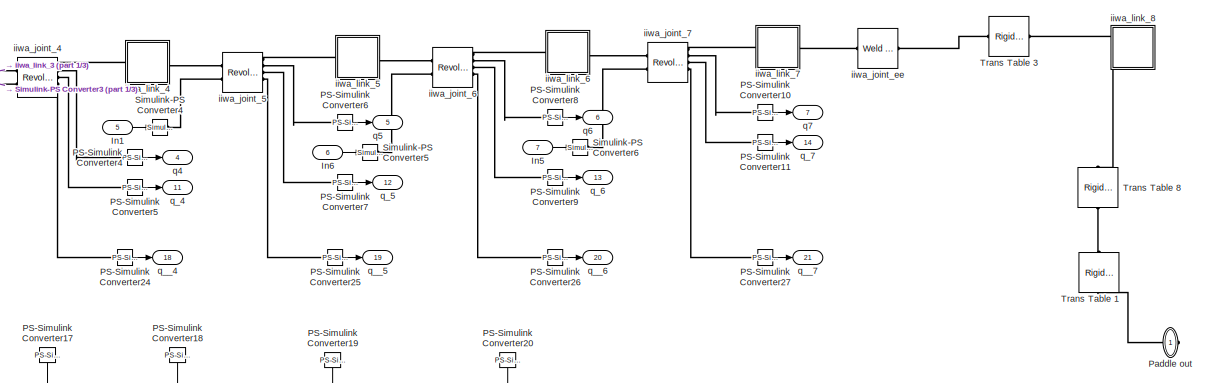
[diagram: Subsystem2/Robot 1/Robotic Arm1 - part 2/3, middle right region]
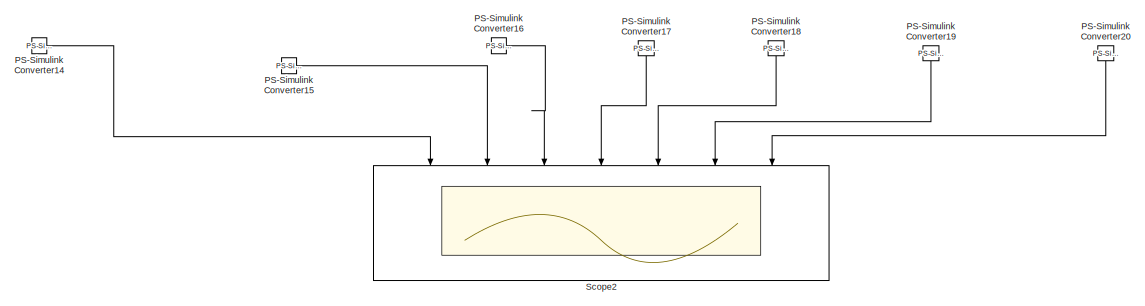
[diagram: Subsystem2/Robot 1/Robotic Arm1 - part 3/3, bottom center region]
BLOCK [SubSystem] Subsystem2/Robot 1/Robotic Arm1
  Ports = [7, 21, 0, 0, 0, 1, 1]
  RequestExecContextInheritance = off
BLOCK [PMIOPort] Subsystem2/Robot 1/Robotic Arm1/B
  Port = 2
  Side = Left
BLOCK [Inport] Subsystem2/Robot 1/Robotic Arm1/In1
  IconDisplay = Port number
  Port = 5
BLOCK [Inport] Subsystem2/Robot 1/Robotic Arm1/In2
  IconDisplay = Port number
  Port = 4
BLOCK [Inport] Subsystem2/Robot 1/Robotic Arm1/In3
  IconDisplay = Port number
  Port = 3
BLOCK [Inport] Subsystem2/Robot 1/Robotic Arm1/In5
  IconDisplay = Port number
  Port = 7
BLOCK [Inport] Subsystem2/Robot 1/Robotic Arm1/In6
  IconDisplay = Port number
  Port = 6
BLOCK [Inport] Subsystem2/Robot 1/Robotic Arm1/In7
  IconDisplay = Port number
  Port = 2
BLOCK [Reference] Subsystem2/Robot 1/Robotic Arm1/MechanismConfiguration  REF=sm_lib/Utilities/Mechanism
Configuration
  Commented = on
  Ports = [0, 0, 0, 0, 0, 0, 1]
  SourceBlock = sm_lib/Utilities/Mechanism\nConfiguration
  SourceProductBaseCode = MS
  SourceProductName = Simscape Multibody
  SourceType = Mechanism\nConfiguration
BLOCK [Reference] Subsystem2/Robot 1/Robotic Arm1/PS-Simulink Converter  REF=nesl_utility/PS-Simulink
Converter
  Ports = [0, 1, 0, 0, 0, 1]
  SourceBlock = nesl_utility/PS-Simulink\nConverter
  SourceProductBaseCode = SS
  SourceProductName = Simscape
  SourceType = PS-Simulink\nConverter
BLOCK [Reference] Subsystem2/Robot 1/Robotic Arm1/PS-Simulink Converter1  REF=nesl_utility/PS-Simulink
Converter
  Ports = [0, 1, 0, 0, 0, 1]
  SourceBlock = nesl_utility/PS-Simulink\nConverter
  SourceProductBaseCode = SS
  SourceProductName = Simscape
  SourceType = PS-Simulink\nConverter
BLOCK [Reference] Subsystem2/Robot 1/Robotic Arm1/PS-Simulink Converter10  REF=nesl_utility/PS-Simulink
Converter
  Ports = [0, 1, 0, 0, 0, 1]
  SourceBlock = nesl_utility/PS-Simulink\nConverter
  SourceProductBaseCode = SS
  SourceProductName = Simscape
  SourceType = PS-Simulink\nConverter
BLOCK [Reference] Subsystem2/Robot 1/Robotic Arm1/PS-Simulink Converter11  REF=nesl_utility/PS-Simulink
Converter
  Ports = [0, 1, 0, 0, 0, 1]
  SourceBlock = nesl_utility/PS-Simulink\nConverter
  SourceProductBaseCode = SS
  SourceProductName = Simscape
  SourceType = PS-Simulink\nConverter
BLOCK [Reference] Subsystem2/Robot 1/Robotic Arm1/PS-Simulink Converter12  REF=nesl_utility/PS-Simulink
Converter
  Ports = [0, 1, 0, 0, 0, 1]
  SourceBlock = nesl_utility/PS-Simulink\nConverter
  SourceProductBaseCode = SS
  SourceProductName = Simscape
  SourceType = PS-Simulink\nConverter
BLOCK [Reference] Subsystem2/Robot 1/Robotic Arm1/PS-Simulink Converter13  REF=nesl_utility/PS-Simulink
Converter
  Ports = [0, 1, 0, 0, 0, 1]
  SourceBlock = nesl_utility/PS-Simulink\nConverter
  SourceProductBaseCode = SS
  SourceProductName = Simscape
  SourceType = PS-Simulink\nConverter
BLOCK [Reference] Subsystem2/Robot 1/Robotic Arm1/PS-Simulink Converter14  REF=nesl_utility/PS-Simulink
Converter
  Commented = on
  Ports = [0, 1, 0, 0, 0, 1]
  SourceBlock = nesl_utility/PS-Simulink\nConverter
  SourceProductBaseCode = SS
  SourceProductName = Simscape
  SourceType = PS-Simulink\nConverter
BLOCK [Reference] Subsystem2/Robot 1/Robotic Arm1/PS-Simulink Converter15  REF=nesl_utility/PS-Simulink
Converter
  Commented = on
  Ports = [0, 1, 0, 0, 0, 1]
  SourceBlock = nesl_utility/PS-Simulink\nConverter
  SourceProductBaseCode = SS
  SourceProductName = Simscape
  SourceType = PS-Simulink\nConverter
BLOCK [Reference] Subsystem2/Robot 1/Robotic Arm1/PS-Simulink Converter16  REF=nesl_utility/PS-Simulink
Converter
  Commented = on
  Ports = [0, 1, 0, 0, 0, 1]
  SourceBlock = nesl_utility/PS-Simulink\nConverter
  SourceProductBaseCode = SS
  SourceProductName = Simscape
  SourceType = PS-Simulink\nConverter
BLOCK [Reference] Subsystem2/Robot 1/Robotic Arm1/PS-Simulink Converter17  REF=nesl_utility/PS-Simulink
Converter
  Commented = on
  Ports = [0, 1, 0, 0, 0, 1]
  SourceBlock = nesl_utility/PS-Simulink\nConverter
  SourceProductBaseCode = SS
  SourceProductName = Simscape
  SourceType = PS-Simulink\nConverter
BLOCK [Reference] Subsystem2/Robot 1/Robotic Arm1/PS-Simulink Converter18  REF=nesl_utility/PS-Simulink
Converter
  Commented = on
  Ports = [0, 1, 0, 0, 0, 1]
  SourceBlock = nesl_utility/PS-Simulink\nConverter
  SourceProductBaseCode = SS
  SourceProductName = Simscape
  SourceType = PS-Simulink\nConverter
BLOCK [Reference] Subsystem2/Robot 1/Robotic Arm1/PS-Simulink Converter19  REF=nesl_utility/PS-Simulink
Converter
  Commented = on
  Ports = [0, 1, 0, 0, 0, 1]
  SourceBlock = nesl_utility/PS-Simulink\nConverter
  SourceProductBaseCode = SS
  SourceProductName = Simscape
  SourceType = PS-Simulink\nConverter
BLOCK [Reference] Subsystem2/Robot 1/Robotic Arm1/PS-Simulink Converter2  REF=nesl_utility/PS-Simulink
Converter
  Ports = [0, 1, 0, 0, 0, 1]
  SourceBlock = nesl_utility/PS-Simulink\nConverter
  SourceProductBaseCode = SS
  SourceProductName = Simscape
  SourceType = PS-Simulink\nConverter
BLOCK [Reference] Subsystem2/Robot 1/Robotic Arm1/PS-Simulink Converter20  REF=nesl_utility/PS-Simulink
Converter
  Commented = on
  Ports = [0, 1, 0, 0, 0, 1]
  SourceBlock = nesl_utility/PS-Simulink\nConverter
  SourceProductBaseCode = SS
  SourceProductName = Simscape
  SourceType = PS-Simulink\nConverter
BLOCK [Reference] Subsystem2/Robot 1/Robotic Arm1/PS-Simulink Converter21  REF=nesl_utility/PS-Simulink
Converter
  Ports = [0, 1, 0, 0, 0, 1]
  SourceBlock = nesl_utility/PS-Simulink\nConverter
  SourceProductBaseCode = SS
  SourceProductName = Simscape
  SourceType = PS-Simulink\nConverter
BLOCK [Reference] Subsystem2/Robot 1/Robotic Arm1/PS-Simulink Converter22  REF=nesl_utility/PS-Simulink
Converter
  Ports = [0, 1, 0, 0, 0, 1]
  SourceBlock = nesl_utility/PS-Simulink\nConverter
  SourceProductBaseCode = SS
  SourceProductName = Simscape
  SourceType = PS-Simulink\nConverter
BLOCK [Reference] Subsystem2/Robot 1/Robotic Arm1/PS-Simulink Converter23  REF=nesl_utility/PS-Simulink
Converter
  Ports = [0, 1, 0, 0, 0, 1]
  SourceBlock = nesl_utility/PS-Simulink\nConverter
  SourceProductBaseCode = SS
  SourceProductName = Simscape
  SourceType = PS-Simulink\nConverter
BLOCK [Reference] Subsystem2/Robot 1/Robotic Arm1/PS-Simulink Converter24  REF=nesl_utility/PS-Simulink
Converter
  Ports = [0, 1, 0, 0, 0, 1]
  SourceBlock = nesl_utility/PS-Simulink\nConverter
  SourceProductBaseCode = SS
  SourceProductName = Simscape
  SourceType = PS-Simulink\nConverter
BLOCK [Reference] Subsystem2/Robot 1/Robotic Arm1/PS-Simulink Converter25  REF=nesl_utility/PS-Simulink
Converter
  Ports = [0, 1, 0, 0, 0, 1]
  SourceBlock = nesl_utility/PS-Simulink\nConverter
  SourceProductBaseCode = SS
  SourceProductName = Simscape
  SourceType = PS-Simulink\nConverter
BLOCK [Reference] Subsystem2/Robot 1/Robotic Arm1/PS-Simulink Converter26  REF=nesl_utility/PS-Simulink
Converter
  Ports = [0, 1, 0, 0, 0, 1]
  SourceBlock = nesl_utility/PS-Simulink\nConverter
  SourceProductBaseCode = SS
  SourceProductName = Simscape
  SourceType = PS-Simulink\nConverter
BLOCK [Reference] Subsystem2/Robot 1/Robotic Arm1/PS-Simulink Converter27  REF=nesl_utility/PS-Simulink
Converter
  Ports = [0, 1, 0, 0, 0, 1]
  SourceBlock = nesl_utility/PS-Simulink\nConverter
  SourceProductBaseCode = SS
  SourceProductName = Simscape
  SourceType = PS-Simulink\nConverter
BLOCK [Reference] Subsystem2/Robot 1/Robotic Arm1/PS-Simulink Converter3  REF=nesl_utility/PS-Simulink
Converter
  Ports = [0, 1, 0, 0, 0, 1]
  SourceBlock = nesl_utility/PS-Simulink\nConverter
  SourceProductBaseCode = SS
  SourceProductName = Simscape
  SourceType = PS-Simulink\nConverter
BLOCK [Reference] Subsystem2/Robot 1/Robotic Arm1/PS-Simulink Converter4  REF=nesl_utility/PS-Simulink
Converter
  Ports = [0, 1, 0, 0, 0, 1]
  SourceBlock = nesl_utility/PS-Simulink\nConverter
  SourceProductBaseCode = SS
  SourceProductName = Simscape
  SourceType = PS-Simulink\nConverter
BLOCK [Reference] Subsystem2/Robot 1/Robotic Arm1/PS-Simulink Converter5  REF=nesl_utility/PS-Simulink
Converter
  Ports = [0, 1, 0, 0, 0, 1]
  SourceBlock = nesl_utility/PS-Simulink\nConverter
  SourceProductBaseCode = SS
  SourceProductName = Simscape
  SourceType = PS-Simulink\nConverter
BLOCK [Reference] Subsystem2/Robot 1/Robotic Arm1/PS-Simulink Converter6  REF=nesl_utility/PS-Simulink
Converter
  Ports = [0, 1, 0, 0, 0, 1]
  SourceBlock = nesl_utility/PS-Simulink\nConverter
  SourceProductBaseCode = SS
  SourceProductName = Simscape
  SourceType = PS-Simulink\nConverter
BLOCK [Reference] Subsystem2/Robot 1/Robotic Arm1/PS-Simulink Converter7  REF=nesl_utility/PS-Simulink
Converter
  Ports = [0, 1, 0, 0, 0, 1]
  SourceBlock = nesl_utility/PS-Simulink\nConverter
  SourceProductBaseCode = SS
  SourceProductName = Simscape
  SourceType = PS-Simulink\nConverter
BLOCK [Reference] Subsystem2/Robot 1/Robotic Arm1/PS-Simulink Converter8  REF=nesl_utility/PS-Simulink
Converter
  Ports = [0, 1, 0, 0, 0, 1]
  SourceBlock = nesl_utility/PS-Simulink\nConverter
  SourceProductBaseCode = SS
  SourceProductName = Simscape
  SourceType = PS-Simulink\nConverter
BLOCK [Reference] Subsystem2/Robot 1/Robotic Arm1/PS-Simulink Converter9  REF=nesl_utility/PS-Simulink
Converter
  Ports = [0, 1, 0, 0, 0, 1]
  SourceBlock = nesl_utility/PS-Simulink\nConverter
  SourceProductBaseCode = SS
  SourceProductName = Simscape
  SourceType = PS-Simulink\nConverter
BLOCK [PMIOPort] Subsystem2/Robot 1/Robotic Arm1/Paddle out
  Side = Right
BLOCK [Scope] Subsystem2/Robot 1/Robotic Arm1/Scope2
  Commented = on
  Floating = off
  NumInputPorts = 7
  Ports = [7]
  ScopeSpecificationString = Simulink.scopes.TimeScopeBlockCfg('CurrentConfiguration', extmgr.ConfigurationSet(extmgr.Configuration('Core','General UI',true),extmgr.Configuration('Core','Source UI',true),extmgr.Configuration('Sources','WiredSimulink',true,'DataLoggingVariableName','ScopeData3'),extmgr.Configuration('Visuals','Time Domain',true,'SerializedDisplays',{struct('MinYLimReal','-220.07061','MaxYLimReal','220.09812','...<+4966ch>
BLOCK [Reference] Subsystem2/Robot 1/Robotic Arm1/Simulink-PS Converter  REF=nesl_utility/Simulink-PS
Converter
  Ports = [1, 0, 0, 0, 0, 0, 1]
  SourceBlock = nesl_utility/Simulink-PS\nConverter
  SourceProductBaseCode = SS
  SourceProductName = Simscape
  SourceType = Simulink-PS\nConverter
BLOCK [Reference] Subsystem2/Robot 1/Robotic Arm1/Simulink-PS Converter1  REF=nesl_utility/Simulink-PS
Converter
  Ports = [1, 0, 0, 0, 0, 0, 1]
  SourceBlock = nesl_utility/Simulink-PS\nConverter
  SourceProductBaseCode = SS
  SourceProductName = Simscape
  SourceType = Simulink-PS\nConverter
BLOCK [Reference] Subsystem2/Robot 1/Robotic Arm1/Simulink-PS Converter2  REF=nesl_utility/Simulink-PS
Converter
  Ports = [1, 0, 0, 0, 0, 0, 1]
  SourceBlock = nesl_utility/Simulink-PS\nConverter
  SourceProductBaseCode = SS
  SourceProductName = Simscape
  SourceType = Simulink-PS\nConverter
BLOCK [Reference] Subsystem2/Robot 1/Robotic Arm1/Simulink-PS Converter3  REF=nesl_utility/Simulink-PS
Converter
  Ports = [1, 0, 0, 0, 0, 0, 1]
  SourceBlock = nesl_utility/Simulink-PS\nConverter
  SourceProductBaseCode = SS
  SourceProductName = Simscape
  SourceType = Simulink-PS\nConverter
BLOCK [Reference] Subsystem2/Robot 1/Robotic Arm1/Simulink-PS Converter4  REF=nesl_utility/Simulink-PS
Converter
  Ports = [1, 0, 0, 0, 0, 0, 1]
  SourceBlock = nesl_utility/Simulink-PS\nConverter
  SourceProductBaseCode = SS
  SourceProductName = Simscape
  SourceType = Simulink-PS\nConverter
BLOCK [Reference] Subsystem2/Robot 1/Robotic Arm1/Simulink-PS Converter5  REF=nesl_utility/Simulink-PS
Converter
  Ports = [1, 0, 0, 0, 0, 0, 1]
  SourceBlock = nesl_utility/Simulink-PS\nConverter
  SourceProductBaseCode = SS
  SourceProductName = Simscape
  SourceType = Simulink-PS\nConverter
BLOCK [Reference] Subsystem2/Robot 1/Robotic Arm1/Simulink-PS Converter6  REF=nesl_utility/Simulink-PS
Converter
  Ports = [1, 0, 0, 0, 0, 0, 1]
  SourceBlock = nesl_utility/Simulink-PS\nConverter
  SourceProductBaseCode = SS
  SourceProductName = Simscape
  SourceType = Simulink-PS\nConverter
BLOCK [Reference] Subsystem2/Robot 1/Robotic Arm1/Solver Configuration  REF=nesl_utility/Solver
Configuration
  Commented = on
  Ports = [0, 0, 0, 0, 0, 0, 1]
  SourceBlock = nesl_utility/Solver\nConfiguration
  SourceProductBaseCode = SS
  SourceProductName = Simscape
  SourceType = Solver\nConfiguration
BLOCK [Inport] Subsystem2/Robot 1/Robotic Arm1/T1
  IconDisplay = Port number
BLOCK [Reference] Subsystem2/Robot 1/Robotic Arm1/Trans Table 1  REF=sm_lib/Frames and
Transforms/Rigid
Transform
  AttributesFormatString = %<TranslationStandardOffset> %<TranslationLengthUnit>\nin %<TranslationStandardAxis>
  Ports = [0, 0, 0, 0, 0, 1, 1]
  SourceBlock = sm_lib/Frames and\nTransforms/Rigid\nTransform
  SourceProductBaseCode = MS
  SourceProductName = Simscape Multibody
  SourceType = Rigid\nTransform
BLOCK [Reference] Subsystem2/Robot 1/Robotic Arm1/Trans Table 3  REF=sm_lib/Frames and
Transforms/Rigid
Transform
  Ports = [0, 0, 0, 0, 0, 1, 1]
  SourceBlock = sm_lib/Frames and\nTransforms/Rigid\nTransform
  SourceProductBaseCode = MS
  SourceProductName = Simscape Multibody
  SourceType = Rigid\nTransform
BLOCK [Reference] Subsystem2/Robot 1/Robotic Arm1/Trans Table 8  REF=sm_lib/Frames and
Transforms/Rigid
Transform
  AttributesFormatString = %<TranslationStandardOffset> %<TranslationLengthUnit>\nin %<TranslationStandardAxis>
  Ports = [0, 0, 0, 0, 0, 1, 1]
  SourceBlock = sm_lib/Frames and\nTransforms/Rigid\nTransform
  SourceProductBaseCode = MS
  SourceProductName = Simscape Multibody
  SourceType = Rigid\nTransform
BLOCK [Reference] Subsystem2/Robot 1/Robotic Arm1/World  REF=sm_lib/Frames and
Transforms/World Frame
  Commented = on
  Ports = [0, 0, 0, 0, 0, 0, 1]
  SourceBlock = sm_lib/Frames and\nTransforms/World Frame
  SourceProductBaseCode = MS
  SourceProductName = Simscape Multibody
  SourceType = World Frame
BLOCK [Reference] Subsystem2/Robot 1/Robotic Arm1/iiwa_joint_1  REF=sm_lib/Joints/Revolute Joint
  Ports = [0, 0, 0, 0, 0, 2, 5]
  SourceBlock = sm_lib/Joints/Revolute Joint
  SourceProductBaseCode = MS
  SourceProductName = Simscape Multibody
  SourceType = Revolute Joint
BLOCK [Reference] Subsystem2/Robot 1/Robotic Arm1/iiwa_joint_2  REF=sm_lib/Joints/Revolute Joint
  Ports = [0, 0, 0, 0, 0, 2, 5]
  SourceBlock = sm_lib/Joints/Revolute Joint
  SourceProductBaseCode = MS
  SourceProductName = Simscape Multibody
  SourceType = Revolute Joint
BLOCK [Reference] Subsystem2/Robot 1/Robotic Arm1/iiwa_joint_3  REF=sm_lib/Joints/Revolute Joint
  Ports = [0, 0, 0, 0, 0, 2, 5]
  SourceBlock = sm_lib/Joints/Revolute Joint
  SourceProductBaseCode = MS
  SourceProductName = Simscape Multibody
  SourceType = Revolute Joint
BLOCK [Reference] Subsystem2/Robot 1/Robotic Arm1/iiwa_joint_4  REF=sm_lib/Joints/Revolute Joint
  Ports = [0, 0, 0, 0, 0, 2, 5]
  SourceBlock = sm_lib/Joints/Revolute Joint
  SourceProductBaseCode = MS
  SourceProductName = Simscape Multibody
  SourceType = Revolute Joint
BLOCK [Reference] Subsystem2/Robot 1/Robotic Arm1/iiwa_joint_5  REF=sm_lib/Joints/Revolute Joint
  Ports = [0, 0, 0, 0, 0, 2, 5]
  SourceBlock = sm_lib/Joints/Revolute Joint
  SourceProductBaseCode = MS
  SourceProductName = Simscape Multibody
  SourceType = Revolute Joint
BLOCK [Reference] Subsystem2/Robot 1/Robotic Arm1/iiwa_joint_6  REF=sm_lib/Joints/Revolute Joint
  Ports = [0, 0, 0, 0, 0, 2, 5]
  SourceBlock = sm_lib/Joints/Revolute Joint
  SourceProductBaseCode = MS
  SourceProductName = Simscape Multibody
  SourceType = Revolute Joint
BLOCK [Reference] Subsystem2/Robot 1/Robotic Arm1/iiwa_joint_7  REF=sm_lib/Joints/Revolute Joint
  Ports = [0, 0, 0, 0, 0, 2, 5]
  SourceBlock = sm_lib/Joints/Revolute Joint
  SourceProductBaseCode = MS
  SourceProductName = Simscape Multibody
  SourceType = Revolute Joint
BLOCK [Reference] Subsystem2/Robot 1/Robotic Arm1/iiwa_joint_ee  REF=sm_lib/Joints/Weld Joint
  Ports = [0, 0, 0, 0, 0, 1, 1]
  SourceBlock = sm_lib/Joints/Weld Joint
  SourceProductBaseCode = MS
  SourceProductName = Simscape Multibody
  SourceType = Weld Joint
BLOCK [SubSystem] Subsystem2/Robot 1/Robotic Arm1/iiwa_link_0
  Ports = [0, 0, 0, 0, 0, 1, 1]
  RequestExecContextInheritance = off
BLOCK [PMIOPort] Subsystem2/Robot 1/Robotic Arm1/iiwa_link_0/F
  Side = Left
BLOCK [PMIOPort] Subsystem2/Robot 1/Robotic Arm1/iiwa_link_0/F1
  Port = 2
  Side = Right
BLOCK [Reference] Subsystem2/Robot 1/Robotic Arm1/iiwa_link_0/Inertia  REF=sm_lib/Body Elements/Inertia
  Ports = [0, 0, 0, 0, 0, 0, 1]
  SourceBlock = sm_lib/Body Elements/Inertia
  SourceProductBaseCode = MS
  SourceProductName = Simscape Multibody
  SourceType = Inertia
BLOCK [Reference] Subsystem2/Robot 1/Robotic Arm1/iiwa_link_0/InertiaOriginTransform  REF=sm_lib/Frames and
Transforms/Rigid
Transform
  Ports = [0, 0, 0, 0, 0, 1, 1]
  SourceBlock = sm_lib/Frames and\nTransforms/Rigid\nTransform
  SourceProductBaseCode = MS
  SourceProductName = Simscape Multibody
  SourceType = Rigid\nTransform
BLOCK [Reference] Subsystem2/Robot 1/Robotic Arm1/iiwa_link_0/ReferenceFrame  REF=sm_lib/Frames and
Transforms/Reference
Frame
  Ports = [0, 0, 0, 0, 0, 0, 1]
  SourceBlock = sm_lib/Frames and\nTransforms/Reference\nFrame
  SourceProductBaseCode = MS
  SourceProductName = Simscape Multibody
  SourceType = Reference\nFrame
BLOCK [Reference] Subsystem2/Robot 1/Robotic Arm1/iiwa_link_0/Visual  REF=sm_lib/Body Elements/File Solid
  Ports = [0, 0, 0, 0, 0, 0, 1]
  SourceBlock = sm_lib/Body Elements/File Solid
  SourceProductBaseCode = MS
  SourceProductName = Simscape Multibody
  SourceType = File Solid
BLOCK [Reference] Subsystem2/Robot 1/Robotic Arm1/iiwa_link_0/VisualOriginTransform  REF=sm_lib/Frames and
Transforms/Rigid
Transform
  Ports = [0, 0, 0, 0, 0, 1, 1]
  SourceBlock = sm_lib/Frames and\nTransforms/Rigid\nTransform
  SourceProductBaseCode = MS
  SourceProductName = Simscape Multibody
  SourceType = Rigid\nTransform
BLOCK [Reference] Subsystem2/Robot 1/Robotic Arm1/iiwa_link_0/iiwa_joint_1_AxisTransform  REF=sm_lib/Frames and
Transforms/Rigid
Transform
  Ports = [0, 0, 0, 0, 0, 1, 1]
  SourceBlock = sm_lib/Frames and\nTransforms/Rigid\nTransform
  SourceProductBaseCode = MS
  SourceProductName = Simscape Multibody
  SourceType = Rigid\nTransform
BLOCK [Reference] Subsystem2/Robot 1/Robotic Arm1/iiwa_link_0/iiwa_joint_1_OriginTransform  REF=sm_lib/Frames and
Transforms/Rigid
Transform
  Ports = [0, 0, 0, 0, 0, 1, 1]
  SourceBlock = sm_lib/Frames and\nTransforms/Rigid\nTransform
  SourceProductBaseCode = MS
  SourceProductName = Simscape Multibody
  SourceType = Rigid\nTransform
BLOCK [SubSystem] Subsystem2/Robot 1/Robotic Arm1/iiwa_link_1
  Ports = [0, 0, 0, 0, 0, 1, 1]
  RequestExecContextInheritance = off
BLOCK [PMIOPort] Subsystem2/Robot 1/Robotic Arm1/iiwa_link_1/F
  Side = Left
BLOCK [PMIOPort] Subsystem2/Robot 1/Robotic Arm1/iiwa_link_1/F1
  Port = 2
  Side = Right
BLOCK [Reference] Subsystem2/Robot 1/Robotic Arm1/iiwa_link_1/Inertia  REF=sm_lib/Body Elements/Inertia
  Ports = [0, 0, 0, 0, 0, 0, 1]
  SourceBlock = sm_lib/Body Elements/Inertia
  SourceProductBaseCode = MS
  SourceProductName = Simscape Multibody
  SourceType = Inertia
BLOCK [Reference] Subsystem2/Robot 1/Robotic Arm1/iiwa_link_1/InertiaOriginTransform  REF=sm_lib/Frames and
Transforms/Rigid
Transform
  Ports = [0, 0, 0, 0, 0, 1, 1]
  SourceBlock = sm_lib/Frames and\nTransforms/Rigid\nTransform
  SourceProductBaseCode = MS
  SourceProductName = Simscape Multibody
  SourceType = Rigid\nTransform
BLOCK [Reference] Subsystem2/Robot 1/Robotic Arm1/iiwa_link_1/ReferenceFrame  REF=sm_lib/Frames and
Transforms/Reference
Frame
  Ports = [0, 0, 0, 0, 0, 0, 1]
  SourceBlock = sm_lib/Frames and\nTransforms/Reference\nFrame
  SourceProductBaseCode = MS
  SourceProductName = Simscape Multibody
  SourceType = Reference\nFrame
BLOCK [Reference] Subsystem2/Robot 1/Robotic Arm1/iiwa_link_1/Visual  REF=sm_lib/Body Elements/File Solid
  Ports = [0, 0, 0, 0, 0, 0, 1]
  SourceBlock = sm_lib/Body Elements/File Solid
  SourceProductBaseCode = MS
  SourceProductName = Simscape Multibody
  SourceType = File Solid
BLOCK [Reference] Subsystem2/Robot 1/Robotic Arm1/iiwa_link_1/VisualOriginTransform  REF=sm_lib/Frames and
Transforms/Rigid
Transform
  Ports = [0, 0, 0, 0, 0, 1, 1]
  SourceBlock = sm_lib/Frames and\nTransforms/Rigid\nTransform
  SourceProductBaseCode = MS
  SourceProductName = Simscape Multibody
  SourceType = Rigid\nTransform
BLOCK [Reference] Subsystem2/Robot 1/Robotic Arm1/iiwa_link_1/iiwa_joint_1_AxisInvTransform  REF=sm_lib/Frames and
Transforms/Rigid
Transform
  Ports = [0, 0, 0, 0, 0, 1, 1]
  SourceBlock = sm_lib/Frames and\nTransforms/Rigid\nTransform
  SourceProductBaseCode = MS
  SourceProductName = Simscape Multibody
  SourceType = Rigid\nTransform
BLOCK [Reference] Subsystem2/Robot 1/Robotic Arm1/iiwa_link_1/iiwa_joint_2_AxisTransform  REF=sm_lib/Frames and
Transforms/Rigid
Transform
  Ports = [0, 0, 0, 0, 0, 1, 1]
  SourceBlock = sm_lib/Frames and\nTransforms/Rigid\nTransform
  SourceProductBaseCode = MS
  SourceProductName = Simscape Multibody
  SourceType = Rigid\nTransform
BLOCK [Reference] Subsystem2/Robot 1/Robotic Arm1/iiwa_link_1/iiwa_joint_2_OriginTransform  REF=sm_lib/Frames and
Transforms/Rigid
Transform
  Ports = [0, 0, 0, 0, 0, 1, 1]
  SourceBlock = sm_lib/Frames and\nTransforms/Rigid\nTransform
  SourceProductBaseCode = MS
  SourceProductName = Simscape Multibody
  SourceType = Rigid\nTransform
BLOCK [SubSystem] Subsystem2/Robot 1/Robotic Arm1/iiwa_link_2
  Ports = [0, 0, 0, 0, 0, 1, 1]
  RequestExecContextInheritance = off
BLOCK [PMIOPort] Subsystem2/Robot 1/Robotic Arm1/iiwa_link_2/F
  Side = Left
BLOCK [PMIOPort] Subsystem2/Robot 1/Robotic Arm1/iiwa_link_2/F1
  Port = 2
  Side = Right
BLOCK [Reference] Subsystem2/Robot 1/Robotic Arm1/iiwa_link_2/Inertia  REF=sm_lib/Body Elements/Inertia
  Ports = [0, 0, 0, 0, 0, 0, 1]
  SourceBlock = sm_lib/Body Elements/Inertia
  SourceProductBaseCode = MS
  SourceProductName = Simscape Multibody
  SourceType = Inertia
BLOCK [Reference] Subsystem2/Robot 1/Robotic Arm1/iiwa_link_2/InertiaOriginTransform  REF=sm_lib/Frames and
Transforms/Rigid
Transform
  Ports = [0, 0, 0, 0, 0, 1, 1]
  SourceBlock = sm_lib/Frames and\nTransforms/Rigid\nTransform
  SourceProductBaseCode = MS
  SourceProductName = Simscape Multibody
  SourceType = Rigid\nTransform
BLOCK [Reference] Subsystem2/Robot 1/Robotic Arm1/iiwa_link_2/ReferenceFrame  REF=sm_lib/Frames and
Transforms/Reference
Frame
  Ports = [0, 0, 0, 0, 0, 0, 1]
  SourceBlock = sm_lib/Frames and\nTransforms/Reference\nFrame
  SourceProductBaseCode = MS
  SourceProductName = Simscape Multibody
  SourceType = Reference\nFrame
BLOCK [Reference] Subsystem2/Robot 1/Robotic Arm1/iiwa_link_2/Visual  REF=sm_lib/Body Elements/File Solid
  Ports = [0, 0, 0, 0, 0, 0, 1]
  SourceBlock = sm_lib/Body Elements/File Solid
  SourceProductBaseCode = MS
  SourceProductName = Simscape Multibody
  SourceType = File Solid
BLOCK [Reference] Subsystem2/Robot 1/Robotic Arm1/iiwa_link_2/VisualOriginTransform  REF=sm_lib/Frames and
Transforms/Rigid
Transform
  Ports = [0, 0, 0, 0, 0, 1, 1]
  SourceBlock = sm_lib/Frames and\nTransforms/Rigid\nTransform
  SourceProductBaseCode = MS
  SourceProductName = Simscape Multibody
  SourceType = Rigid\nTransform
BLOCK [Reference] Subsystem2/Robot 1/Robotic Arm1/iiwa_link_2/iiwa_joint_2_AxisInvTransform  REF=sm_lib/Frames and
Transforms/Rigid
Transform
  Ports = [0, 0, 0, 0, 0, 1, 1]
  SourceBlock = sm_lib/Frames and\nTransforms/Rigid\nTransform
  SourceProductBaseCode = MS
  SourceProductName = Simscape Multibody
  SourceType = Rigid\nTransform
BLOCK [Reference] Subsystem2/Robot 1/Robotic Arm1/iiwa_link_2/iiwa_joint_3_AxisTransform  REF=sm_lib/Frames and
Transforms/Rigid
Transform
  Ports = [0, 0, 0, 0, 0, 1, 1]
  SourceBlock = sm_lib/Frames and\nTransforms/Rigid\nTransform
  SourceProductBaseCode = MS
  SourceProductName = Simscape Multibody
  SourceType = Rigid\nTransform
BLOCK [Reference] Subsystem2/Robot 1/Robotic Arm1/iiwa_link_2/iiwa_joint_3_OriginTransform  REF=sm_lib/Frames and
Transforms/Rigid
Transform
  Ports = [0, 0, 0, 0, 0, 1, 1]
  SourceBlock = sm_lib/Frames and\nTransforms/Rigid\nTransform
  SourceProductBaseCode = MS
  SourceProductName = Simscape Multibody
  SourceType = Rigid\nTransform
BLOCK [SubSystem] Subsystem2/Robot 1/Robotic Arm1/iiwa_link_3
  Ports = [0, 0, 0, 0, 0, 1, 1]
  RequestExecContextInheritance = off
BLOCK [PMIOPort] Subsystem2/Robot 1/Robotic Arm1/iiwa_link_3/F
  Side = Left
BLOCK [PMIOPort] Subsystem2/Robot 1/Robotic Arm1/iiwa_link_3/F1
  Port = 2
  Side = Right
BLOCK [Reference] Subsystem2/Robot 1/Robotic Arm1/iiwa_link_3/Inertia  REF=sm_lib/Body Elements/Inertia
  Ports = [0, 0, 0, 0, 0, 0, 1]
  SourceBlock = sm_lib/Body Elements/Inertia
  SourceProductBaseCode = MS
  SourceProductName = Simscape Multibody
  SourceType = Inertia
BLOCK [Reference] Subsystem2/Robot 1/Robotic Arm1/iiwa_link_3/InertiaOriginTransform  REF=sm_lib/Frames and
Transforms/Rigid
Transform
  Ports = [0, 0, 0, 0, 0, 1, 1]
  SourceBlock = sm_lib/Frames and\nTransforms/Rigid\nTransform
  SourceProductBaseCode = MS
  SourceProductName = Simscape Multibody
  SourceType = Rigid\nTransform
BLOCK [Reference] Subsystem2/Robot 1/Robotic Arm1/iiwa_link_3/ReferenceFrame  REF=sm_lib/Frames and
Transforms/Reference
Frame
  Ports = [0, 0, 0, 0, 0, 0, 1]
  SourceBlock = sm_lib/Frames and\nTransforms/Reference\nFrame
  SourceProductBaseCode = MS
  SourceProductName = Simscape Multibody
  SourceType = Reference\nFrame
BLOCK [Reference] Subsystem2/Robot 1/Robotic Arm1/iiwa_link_3/Visual  REF=sm_lib/Body Elements/File Solid
  Ports = [0, 0, 0, 0, 0, 0, 1]
  SourceBlock = sm_lib/Body Elements/File Solid
  SourceProductBaseCode = MS
  SourceProductName = Simscape Multibody
  SourceType = File Solid
BLOCK [Reference] Subsystem2/Robot 1/Robotic Arm1/iiwa_link_3/VisualOriginTransform  REF=sm_lib/Frames and
Transforms/Rigid
Transform
  Ports = [0, 0, 0, 0, 0, 1, 1]
  SourceBlock = sm_lib/Frames and\nTransforms/Rigid\nTransform
  SourceProductBaseCode = MS
  SourceProductName = Simscape Multibody
  SourceType = Rigid\nTransform
BLOCK [Reference] Subsystem2/Robot 1/Robotic Arm1/iiwa_link_3/iiwa_joint_3_AxisInvTransform  REF=sm_lib/Frames and
Transforms/Rigid
Transform
  Ports = [0, 0, 0, 0, 0, 1, 1]
  SourceBlock = sm_lib/Frames and\nTransforms/Rigid\nTransform
  SourceProductBaseCode = MS
  SourceProductName = Simscape Multibody
  SourceType = Rigid\nTransform
BLOCK [Reference] Subsystem2/Robot 1/Robotic Arm1/iiwa_link_3/iiwa_joint_4_AxisTransform  REF=sm_lib/Frames and
Transforms/Rigid
Transform
  Ports = [0, 0, 0, 0, 0, 1, 1]
  SourceBlock = sm_lib/Frames and\nTransforms/Rigid\nTransform
  SourceProductBaseCode = MS
  SourceProductName = Simscape Multibody
  SourceType = Rigid\nTransform
BLOCK [Reference] Subsystem2/Robot 1/Robotic Arm1/iiwa_link_3/iiwa_joint_4_OriginTransform  REF=sm_lib/Frames and
Transforms/Rigid
Transform
  Ports = [0, 0, 0, 0, 0, 1, 1]
  SourceBlock = sm_lib/Frames and\nTransforms/Rigid\nTransform
  SourceProductBaseCode = MS
  SourceProductName = Simscape Multibody
  SourceType = Rigid\nTransform
BLOCK [SubSystem] Subsystem2/Robot 1/Robotic Arm1/iiwa_link_4
  Ports = [0, 0, 0, 0, 0, 1, 1]
  RequestExecContextInheritance = off
BLOCK [PMIOPort] Subsystem2/Robot 1/Robotic Arm1/iiwa_link_4/F
  Side = Left
BLOCK [PMIOPort] Subsystem2/Robot 1/Robotic Arm1/iiwa_link_4/F1
  Port = 2
  Side = Right
BLOCK [Reference] Subsystem2/Robot 1/Robotic Arm1/iiwa_link_4/Inertia  REF=sm_lib/Body Elements/Inertia
  Ports = [0, 0, 0, 0, 0, 0, 1]
  SourceBlock = sm_lib/Body Elements/Inertia
  SourceProductBaseCode = MS
  SourceProductName = Simscape Multibody
  SourceType = Inertia
BLOCK [Reference] Subsystem2/Robot 1/Robotic Arm1/iiwa_link_4/InertiaOriginTransform  REF=sm_lib/Frames and
Transforms/Rigid
Transform
  Ports = [0, 0, 0, 0, 0, 1, 1]
  SourceBlock = sm_lib/Frames and\nTransforms/Rigid\nTransform
  SourceProductBaseCode = MS
  SourceProductName = Simscape Multibody
  SourceType = Rigid\nTransform
BLOCK [Reference] Subsystem2/Robot 1/Robotic Arm1/iiwa_link_4/ReferenceFrame  REF=sm_lib/Frames and
Transforms/Reference
Frame
  Ports = [0, 0, 0, 0, 0, 0, 1]
  SourceBlock = sm_lib/Frames and\nTransforms/Reference\nFrame
  SourceProductBaseCode = MS
  SourceProductName = Simscape Multibody
  SourceType = Reference\nFrame
BLOCK [Reference] Subsystem2/Robot 1/Robotic Arm1/iiwa_link_4/Visual  REF=sm_lib/Body Elements/File Solid
  Ports = [0, 0, 0, 0, 0, 0, 1]
  SourceBlock = sm_lib/Body Elements/File Solid
  SourceProductBaseCode = MS
  SourceProductName = Simscape Multibody
  SourceType = File Solid
BLOCK [Reference] Subsystem2/Robot 1/Robotic Arm1/iiwa_link_4/VisualOriginTransform  REF=sm_lib/Frames and
Transforms/Rigid
Transform
  Ports = [0, 0, 0, 0, 0, 1, 1]
  SourceBlock = sm_lib/Frames and\nTransforms/Rigid\nTransform
  SourceProductBaseCode = MS
  SourceProductName = Simscape Multibody
  SourceType = Rigid\nTransform
BLOCK [Reference] Subsystem2/Robot 1/Robotic Arm1/iiwa_link_4/iiwa_joint_4_AxisInvTransform  REF=sm_lib/Frames and
Transforms/Rigid
Transform
  Ports = [0, 0, 0, 0, 0, 1, 1]
  SourceBlock = sm_lib/Frames and\nTransforms/Rigid\nTransform
  SourceProductBaseCode = MS
  SourceProductName = Simscape Multibody
  SourceType = Rigid\nTransform
BLOCK [Reference] Subsystem2/Robot 1/Robotic Arm1/iiwa_link_4/iiwa_joint_5_AxisTransform  REF=sm_lib/Frames and
Transforms/Rigid
Transform
  Ports = [0, 0, 0, 0, 0, 1, 1]
  SourceBlock = sm_lib/Frames and\nTransforms/Rigid\nTransform
  SourceProductBaseCode = MS
  SourceProductName = Simscape Multibody
  SourceType = Rigid\nTransform
BLOCK [Reference] Subsystem2/Robot 1/Robotic Arm1/iiwa_link_4/iiwa_joint_5_OriginTransform  REF=sm_lib/Frames and
Transforms/Rigid
Transform
  Ports = [0, 0, 0, 0, 0, 1, 1]
  SourceBlock = sm_lib/Frames and\nTransforms/Rigid\nTransform
  SourceProductBaseCode = MS
  SourceProductName = Simscape Multibody
  SourceType = Rigid\nTransform
BLOCK [SubSystem] Subsystem2/Robot 1/Robotic Arm1/iiwa_link_5
  Ports = [0, 0, 0, 0, 0, 1, 1]
  RequestExecContextInheritance = off
BLOCK [PMIOPort] Subsystem2/Robot 1/Robotic Arm1/iiwa_link_5/F
  Side = Left
BLOCK [PMIOPort] Subsystem2/Robot 1/Robotic Arm1/iiwa_link_5/F1
  Port = 2
  Side = Right
BLOCK [Reference] Subsystem2/Robot 1/Robotic Arm1/iiwa_link_5/Inertia  REF=sm_lib/Body Elements/Inertia
  Ports = [0, 0, 0, 0, 0, 0, 1]
  SourceBlock = sm_lib/Body Elements/Inertia
  SourceProductBaseCode = MS
  SourceProductName = Simscape Multibody
  SourceType = Inertia
BLOCK [Reference] Subsystem2/Robot 1/Robotic Arm1/iiwa_link_5/InertiaOriginTransform  REF=sm_lib/Frames and
Transforms/Rigid
Transform
  Ports = [0, 0, 0, 0, 0, 1, 1]
  SourceBlock = sm_lib/Frames and\nTransforms/Rigid\nTransform
  SourceProductBaseCode = MS
  SourceProductName = Simscape Multibody
  SourceType = Rigid\nTransform
BLOCK [Reference] Subsystem2/Robot 1/Robotic Arm1/iiwa_link_5/ReferenceFrame  REF=sm_lib/Frames and
Transforms/Reference
Frame
  Ports = [0, 0, 0, 0, 0, 0, 1]
  SourceBlock = sm_lib/Frames and\nTransforms/Reference\nFrame
  SourceProductBaseCode = MS
  SourceProductName = Simscape Multibody
  SourceType = Reference\nFrame
BLOCK [Reference] Subsystem2/Robot 1/Robotic Arm1/iiwa_link_5/Visual  REF=sm_lib/Body Elements/File Solid
  Ports = [0, 0, 0, 0, 0, 0, 1]
  SourceBlock = sm_lib/Body Elements/File Solid
  SourceProductBaseCode = MS
  SourceProductName = Simscape Multibody
  SourceType = File Solid
BLOCK [Reference] Subsystem2/Robot 1/Robotic Arm1/iiwa_link_5/VisualOriginTransform  REF=sm_lib/Frames and
Transforms/Rigid
Transform
  Ports = [0, 0, 0, 0, 0, 1, 1]
  SourceBlock = sm_lib/Frames and\nTransforms/Rigid\nTransform
  SourceProductBaseCode = MS
  SourceProductName = Simscape Multibody
  SourceType = Rigid\nTransform
BLOCK [Reference] Subsystem2/Robot 1/Robotic Arm1/iiwa_link_5/iiwa_joint_5_AxisInvTransform  REF=sm_lib/Frames and
Transforms/Rigid
Transform
  Ports = [0, 0, 0, 0, 0, 1, 1]
  SourceBlock = sm_lib/Frames and\nTransforms/Rigid\nTransform
  SourceProductBaseCode = MS
  SourceProductName = Simscape Multibody
  SourceType = Rigid\nTransform
BLOCK [Reference] Subsystem2/Robot 1/Robotic Arm1/iiwa_link_5/iiwa_joint_6_AxisTransform  REF=sm_lib/Frames and
Transforms/Rigid
Transform
  Ports = [0, 0, 0, 0, 0, 1, 1]
  SourceBlock = sm_lib/Frames and\nTransforms/Rigid\nTransform
  SourceProductBaseCode = MS
  SourceProductName = Simscape Multibody
  SourceType = Rigid\nTransform
BLOCK [Reference] Subsystem2/Robot 1/Robotic Arm1/iiwa_link_5/iiwa_joint_6_OriginTransform  REF=sm_lib/Frames and
Transforms/Rigid
Transform
  Ports = [0, 0, 0, 0, 0, 1, 1]
  SourceBlock = sm_lib/Frames and\nTransforms/Rigid\nTransform
  SourceProductBaseCode = MS
  SourceProductName = Simscape Multibody
  SourceType = Rigid\nTransform
BLOCK [SubSystem] Subsystem2/Robot 1/Robotic Arm1/iiwa_link_6
  Ports = [0, 0, 0, 0, 0, 1, 1]
  RequestExecContextInheritance = off
BLOCK [PMIOPort] Subsystem2/Robot 1/Robotic Arm1/iiwa_link_6/F
  Side = Left
BLOCK [PMIOPort] Subsystem2/Robot 1/Robotic Arm1/iiwa_link_6/F1
  Port = 2
  Side = Right
BLOCK [Reference] Subsystem2/Robot 1/Robotic Arm1/iiwa_link_6/Inertia  REF=sm_lib/Body Elements/Inertia
  Ports = [0, 0, 0, 0, 0, 0, 1]
  SourceBlock = sm_lib/Body Elements/Inertia
  SourceProductBaseCode = MS
  SourceProductName = Simscape Multibody
  SourceType = Inertia
BLOCK [Reference] Subsystem2/Robot 1/Robotic Arm1/iiwa_link_6/InertiaOriginTransform  REF=sm_lib/Frames and
Transforms/Rigid
Transform
  Ports = [0, 0, 0, 0, 0, 1, 1]
  SourceBlock = sm_lib/Frames and\nTransforms/Rigid\nTransform
  SourceProductBaseCode = MS
  SourceProductName = Simscape Multibody
  SourceType = Rigid\nTransform
BLOCK [Reference] Subsystem2/Robot 1/Robotic Arm1/iiwa_link_6/ReferenceFrame  REF=sm_lib/Frames and
Transforms/Reference
Frame
  Ports = [0, 0, 0, 0, 0, 0, 1]
  SourceBlock = sm_lib/Frames and\nTransforms/Reference\nFrame
  SourceProductBaseCode = MS
  SourceProductName = Simscape Multibody
  SourceType = Reference\nFrame
BLOCK [Reference] Subsystem2/Robot 1/Robotic Arm1/iiwa_link_6/Visual  REF=sm_lib/Body Elements/File Solid
  Ports = [0, 0, 0, 0, 0, 0, 1]
  SourceBlock = sm_lib/Body Elements/File Solid
  SourceProductBaseCode = MS
  SourceProductName = Simscape Multibody
  SourceType = File Solid
BLOCK [Reference] Subsystem2/Robot 1/Robotic Arm1/iiwa_link_6/VisualOriginTransform  REF=sm_lib/Frames and
Transforms/Rigid
Transform
  Ports = [0, 0, 0, 0, 0, 1, 1]
  SourceBlock = sm_lib/Frames and\nTransforms/Rigid\nTransform
  SourceProductBaseCode = MS
  SourceProductName = Simscape Multibody
  SourceType = Rigid\nTransform
BLOCK [Reference] Subsystem2/Robot 1/Robotic Arm1/iiwa_link_6/iiwa_joint_6_AxisInvTransform  REF=sm_lib/Frames and
Transforms/Rigid
Transform
  Ports = [0, 0, 0, 0, 0, 1, 1]
  SourceBlock = sm_lib/Frames and\nTransforms/Rigid\nTransform
  SourceProductBaseCode = MS
  SourceProductName = Simscape Multibody
  SourceType = Rigid\nTransform
BLOCK [Reference] Subsystem2/Robot 1/Robotic Arm1/iiwa_link_6/iiwa_joint_7_AxisTransform  REF=sm_lib/Frames and
Transforms/Rigid
Transform
  Ports = [0, 0, 0, 0, 0, 1, 1]
  SourceBlock = sm_lib/Frames and\nTransforms/Rigid\nTransform
  SourceProductBaseCode = MS
  SourceProductName = Simscape Multibody
  SourceType = Rigid\nTransform
BLOCK [Reference] Subsystem2/Robot 1/Robotic Arm1/iiwa_link_6/iiwa_joint_7_OriginTransform  REF=sm_lib/Frames and
Transforms/Rigid
Transform
  Ports = [0, 0, 0, 0, 0, 1, 1]
  SourceBlock = sm_lib/Frames and\nTransforms/Rigid\nTransform
  SourceProductBaseCode = MS
  SourceProductName = Simscape Multibody
  SourceType = Rigid\nTransform
BLOCK [SubSystem] Subsystem2/Robot 1/Robotic Arm1/iiwa_link_7
  Ports = [0, 0, 0, 0, 0, 1, 1]
  RequestExecContextInheritance = off
BLOCK [PMIOPort] Subsystem2/Robot 1/Robotic Arm1/iiwa_link_7/F
  Side = Left
BLOCK [PMIOPort] Subsystem2/Robot 1/Robotic Arm1/iiwa_link_7/F1
  Port = 2
  Side = Right
BLOCK [Reference] Subsystem2/Robot 1/Robotic Arm1/iiwa_link_7/Inertia  REF=sm_lib/Body Elements/Inertia
  Ports = [0, 0, 0, 0, 0, 0, 1]
  SourceBlock = sm_lib/Body Elements/Inertia
  SourceProductBaseCode = MS
  SourceProductName = Simscape Multibody
  SourceType = Inertia
BLOCK [Reference] Subsystem2/Robot 1/Robotic Arm1/iiwa_link_7/InertiaOriginTransform  REF=sm_lib/Frames and
Transforms/Rigid
Transform
  Ports = [0, 0, 0, 0, 0, 1, 1]
  SourceBlock = sm_lib/Frames and\nTransforms/Rigid\nTransform
  SourceProductBaseCode = MS
  SourceProductName = Simscape Multibody
  SourceType = Rigid\nTransform
BLOCK [Reference] Subsystem2/Robot 1/Robotic Arm1/iiwa_link_7/ReferenceFrame  REF=sm_lib/Frames and
Transforms/Reference
Frame
  Ports = [0, 0, 0, 0, 0, 0, 1]
  SourceBlock = sm_lib/Frames and\nTransforms/Reference\nFrame
  SourceProductBaseCode = MS
  SourceProductName = Simscape Multibody
  SourceType = Reference\nFrame
BLOCK [Reference] Subsystem2/Robot 1/Robotic Arm1/iiwa_link_7/Visual  REF=sm_lib/Body Elements/File Solid
  Ports = [0, 0, 0, 0, 0, 0, 1]
  SourceBlock = sm_lib/Body Elements/File Solid
  SourceProductBaseCode = MS
  SourceProductName = Simscape Multibody
  SourceType = File Solid
BLOCK [Reference] Subsystem2/Robot 1/Robotic Arm1/iiwa_link_7/VisualOriginTransform  REF=sm_lib/Frames and
Transforms/Rigid
Transform
  Ports = [0, 0, 0, 0, 0, 1, 1]
  SourceBlock = sm_lib/Frames and\nTransforms/Rigid\nTransform
  SourceProductBaseCode = MS
  SourceProductName = Simscape Multibody
  SourceType = Rigid\nTransform
BLOCK [Reference] Subsystem2/Robot 1/Robotic Arm1/iiwa_link_7/iiwa_joint_7_AxisInvTransform  REF=sm_lib/Frames and
Transforms/Rigid
Transform
  Ports = [0, 0, 0, 0, 0, 1, 1]
  SourceBlock = sm_lib/Frames and\nTransforms/Rigid\nTransform
  SourceProductBaseCode = MS
  SourceProductName = Simscape Multibody
  SourceType = Rigid\nTransform
BLOCK [Reference] Subsystem2/Robot 1/Robotic Arm1/iiwa_link_7/iiwa_joint_8_AxisInvTransform1  REF=sm_lib/Frames and
Transforms/Rigid
Transform
  Ports = [0, 0, 0, 0, 0, 1, 1]
  SourceBlock = sm_lib/Frames and\nTransforms/Rigid\nTransform
  SourceProductBaseCode = MS
  SourceProductName = Simscape Multibody
  SourceType = Rigid\nTransform
BLOCK [Reference] Subsystem2/Robot 1/Robotic Arm1/iiwa_link_7/iiwa_joint_ee_OriginTransform  REF=sm_lib/Frames and
Transforms/Rigid
Transform
  Ports = [0, 0, 0, 0, 0, 1, 1]
  SourceBlock = sm_lib/Frames and\nTransforms/Rigid\nTransform
  SourceProductBaseCode = MS
  SourceProductName = Simscape Multibody
  SourceType = Rigid\nTransform
BLOCK [SubSystem] Subsystem2/Robot 1/Robotic Arm1/iiwa_link_8
  Ports = [0, 0, 0, 0, 0, 2]
  RequestExecContextInheritance = off
BLOCK [PMIOPort] Subsystem2/Robot 1/Robotic Arm1/iiwa_link_8/F
  Side = Left
BLOCK [PMIOPort] Subsystem2/Robot 1/Robotic Arm1/iiwa_link_8/F1
  Port = 2
  Side = Left
BLOCK [Reference] Subsystem2/Robot 1/Robotic Arm1/iiwa_link_8/Inertia  REF=sm_lib/Body Elements/Inertia
  Ports = [0, 0, 0, 0, 0, 0, 1]
  SourceBlock = sm_lib/Body Elements/Inertia
  SourceProductBaseCode = MS
  SourceProductName = Simscape Multibody
  SourceType = Inertia
BLOCK [Reference] Subsystem2/Robot 1/Robotic Arm1/iiwa_link_8/Inertia1  REF=sm_lib/Body Elements/Inertia
  Commented = on
  Ports = [0, 0, 0, 0, 0, 0, 1]
  SourceBlock = sm_lib/Body Elements/Inertia
  SourceProductBaseCode = MS
  SourceProductName = Simscape Multibody
  SourceType = Inertia
BLOCK [Reference] Subsystem2/Robot 1/Robotic Arm1/iiwa_link_8/InertiaOriginTransform  REF=sm_lib/Frames and
Transforms/Rigid
Transform
  Ports = [0, 0, 0, 0, 0, 1, 1]
  SourceBlock = sm_lib/Frames and\nTransforms/Rigid\nTransform
  SourceProductBaseCode = MS
  SourceProductName = Simscape Multibody
  SourceType = Rigid\nTransform
BLOCK [Reference] Subsystem2/Robot 1/Robotic Arm1/iiwa_link_8/ReferenceFrame  REF=sm_lib/Frames and
Transforms/Reference
Frame
  Ports = [0, 0, 0, 0, 0, 0, 1]
  SourceBlock = sm_lib/Frames and\nTransforms/Reference\nFrame
  SourceProductBaseCode = MS
  SourceProductName = Simscape Multibody
  SourceType = Reference\nFrame
BLOCK [Reference] Subsystem2/Robot 1/Robotic Arm1/iiwa_link_8/Visual  REF=sm_lib/Body Elements/File Solid
  Ports = [0, 0, 0, 0, 0, 0, 1]
  SourceBlock = sm_lib/Body Elements/File Solid
  SourceProductBaseCode = MS
  SourceProductName = Simscape Multibody
  SourceType = File Solid
BLOCK [Reference] Subsystem2/Robot 1/Robotic Arm1/iiwa_link_8/VisualOriginTransform  REF=sm_lib/Frames and
Transforms/Rigid
Transform
  Ports = [0, 0, 0, 0, 0, 1, 1]
  SourceBlock = sm_lib/Frames and\nTransforms/Rigid\nTransform
  SourceProductBaseCode = MS
  SourceProductName = Simscape Multibody
  SourceType = Rigid\nTransform
BLOCK [Reference] Subsystem2/Robot 1/Robotic Arm1/iiwa_link_8/iiwa_joint_6_AxisInvTransform  REF=sm_lib/Frames and
Transforms/Rigid
Transform
  Ports = [0, 0, 0, 0, 0, 1, 1]
  SourceBlock = sm_lib/Frames and\nTransforms/Rigid\nTransform
  SourceProductBaseCode = MS
  SourceProductName = Simscape Multibody
  SourceType = Rigid\nTransform
BLOCK [Outport] Subsystem2/Robot 1/Robotic Arm1/q1
  IconDisplay = Port number
BLOCK [Outport] Subsystem2/Robot 1/Robotic Arm1/q2
  IconDisplay = Port number
  Port = 2
BLOCK [Outport] Subsystem2/Robot 1/Robotic Arm1/q3
  IconDisplay = Port number
  Port = 3
BLOCK [Outport] Subsystem2/Robot 1/Robotic Arm1/q4
  IconDisplay = Port number
  Port = 4
BLOCK [Outport] Subsystem2/Robot 1/Robotic Arm1/q5
  IconDisplay = Port number
  Port = 5
BLOCK [Outport] Subsystem2/Robot 1/Robotic Arm1/q6
  IconDisplay = Port number
  Port = 6
BLOCK [Outport] Subsystem2/Robot 1/Robotic Arm1/q7
  IconDisplay = Port number
  Port = 7
BLOCK [Outport] Subsystem2/Robot 1/Robotic Arm1/q_1
  IconDisplay = Port number
  Port = 8
BLOCK [Outport] Subsystem2/Robot 1/Robotic Arm1/q_2
  IconDisplay = Port number
  Port = 9
BLOCK [Outport] Subsystem2/Robot 1/Robotic Arm1/q_3
  IconDisplay = Port number
  Port = 10
BLOCK [Outport] Subsystem2/Robot 1/Robotic Arm1/q_4
  IconDisplay = Port number
  Port = 11
BLOCK [Outport] Subsystem2/Robot 1/Robotic Arm1/q_5
  IconDisplay = Port number
  Port = 12
BLOCK [Outport] Subsystem2/Robot 1/Robotic Arm1/q_6
  IconDisplay = Port number
  Port = 13
BLOCK [Outport] Subsystem2/Robot 1/Robotic Arm1/q_7
  IconDisplay = Port number
  Port = 14
BLOCK [Outport] Subsystem2/Robot 1/Robotic Arm1/q__1
  IconDisplay = Port number
  Port = 15
BLOCK [Outport] Subsystem2/Robot 1/Robotic Arm1/q__2
  IconDisplay = Port number
  Port = 16
BLOCK [Outport] Subsystem2/Robot 1/Robotic Arm1/q__3
  IconDisplay = Port number
  Port = 17
BLOCK [Outport] Subsystem2/Robot 1/Robotic Arm1/q__4
  IconDisplay = Port number
  Port = 18
BLOCK [Outport] Subsystem2/Robot 1/Robotic Arm1/q__5
  IconDisplay = Port number
  Port = 19
BLOCK [Outport] Subsystem2/Robot 1/Robotic Arm1/q__6
  IconDisplay = Port number
  Port = 20
BLOCK [Outport] Subsystem2/Robot 1/Robotic Arm1/q__7
  IconDisplay = Port number
  Port = 21
BLOCK [SubSystem] Subsystem2/Robot 1/Robotic Arm1/world
  Ports = [0, 0, 0, 0, 0, 1, 1]
  RequestExecContextInheritance = off
BLOCK [PMIOPort] Subsystem2/Robot 1/Robotic Arm1/world/F
  Side = Left
BLOCK [PMIOPort] Subsystem2/Robot 1/Robotic Arm1/world/F1
  Port = 2
  Side = Right
BLOCK [Reference] Subsystem2/Robot 1/Robotic Arm1/world/ReferenceFrame  REF=sm_lib/Frames and
Transforms/Reference
Frame
  Ports = [0, 0, 0, 0, 0, 0, 1]
  SourceBlock = sm_lib/Frames and\nTransforms/Reference\nFrame
  SourceProductBaseCode = MS
  SourceProductName = Simscape Multibody
  SourceType = Reference\nFrame
BLOCK [Reference] Subsystem2/Robot 1/Robotic Arm1/world/world_iiwa_joint_OriginTransform  REF=sm_lib/Frames and
Transforms/Rigid
Transform
  Ports = [0, 0, 0, 0, 0, 1, 1]
  SourceBlock = sm_lib/Frames and\nTransforms/Rigid\nTransform
  SourceProductBaseCode = MS
  SourceProductName = Simscape Multibody
  SourceType = Rigid\nTransform
BLOCK [Reference] Subsystem2/Robot 1/Robotic Arm1/world_iiwa_joint  REF=sm_lib/Joints/Weld Joint
  Ports = [0, 0, 0, 0, 0, 1, 1]
  SourceBlock = sm_lib/Joints/Weld Joint
  SourceProductBaseCode = MS
  SourceProductName = Simscape Multibody
  SourceType = Weld Joint
BLOCK [Saturate] Subsystem2/Robot 1/Saturation10
  InputPortMap = u0
  LowerLimit = -110
  Ports = [1, 1]
  UpperLimit = 110
BLOCK [Saturate] Subsystem2/Robot 1/Saturation11
  InputPortMap = u0
  LowerLimit = -110
  Ports = [1, 1]
  UpperLimit = 110
BLOCK [Saturate] Subsystem2/Robot 1/Saturation12
  InputPortMap = u0
  LowerLimit = -40
  Ports = [1, 1]
  UpperLimit = 40
BLOCK [Saturate] Subsystem2/Robot 1/Saturation13
  InputPortMap = u0
  LowerLimit = -40
  Ports = [1, 1]
  UpperLimit = 40
BLOCK [Saturate] Subsystem2/Robot 1/Saturation7
  InputPortMap = u0
  LowerLimit = -176
  Ports = [1, 1]
  UpperLimit = 176
BLOCK [Saturate] Subsystem2/Robot 1/Saturation8
  InputPortMap = u0
  LowerLimit = -110
  Ports = [1, 1]
  UpperLimit = 110
BLOCK [Saturate] Subsystem2/Robot 1/Saturation9
  InputPortMap = u0
  LowerLimit = -176
  Ports = [1, 1]
  UpperLimit = 176
BLOCK [Inport] Subsystem2/Robot 1/Ts1
  IconDisplay = Port number
BLOCK [Outport] Subsystem2/Robot 1/Velocity1
  IconDisplay = Port number
  Port = 2
BLOCK [Mux] Subsystem2/Robot 1/q1
  DisplayOption = bar
  Inputs = 7
  Ports = [7, 1]
BLOCK [Mux] Subsystem2/Robot 1/q_1
  DisplayOption = bar
  Inputs = 7
  Ports = [7, 1]
BLOCK [Mux] Subsystem2/Robot 1/q__1
  DisplayOption = bar
  Inputs = 7
  Ports = [7, 1]
BLOCK [SubSystem] Subsystem2/Robot 2
  Ports = [1, 3, 0, 0, 0, 1, 1]
  RequestExecContextInheritance = off
BLOCK [Outport] Subsystem2/Robot 2/Acceleration1
  IconDisplay = Port number
  Port = 3
BLOCK [Outport] Subsystem2/Robot 2/Angles1
  IconDisplay = Port number
BLOCK [PMIOPort] Subsystem2/Robot 2/B1
  Side = Left
BLOCK [Demux] Subsystem2/Robot 2/Demux1
  DisplayOption = bar
  Outputs = 7
  Ports = [1, 7]
BLOCK [PMIOPort] Subsystem2/Robot 2/Paddle out1
  Port = 2
  Side = Right
BLOCK [SubSystem] Subsystem2/Robot 2/Robotic Arm1
  Ports = [7, 21, 0, 0, 0, 1, 1]
  RequestExecContextInheritance = off
BLOCK [PMIOPort] Subsystem2/Robot 2/Robotic Arm1/B
  Port = 2
  Side = Left
BLOCK [Inport] Subsystem2/Robot 2/Robotic Arm1/In1
  IconDisplay = Port number
  Port = 5
BLOCK [Inport] Subsystem2/Robot 2/Robotic Arm1/In2
  IconDisplay = Port number
  Port = 4
BLOCK [Inport] Subsystem2/Robot 2/Robotic Arm1/In3
  IconDisplay = Port number
  Port = 3
BLOCK [Inport] Subsystem2/Robot 2/Robotic Arm1/In5
  IconDisplay = Port number
  Port = 7
BLOCK [Inport] Subsystem2/Robot 2/Robotic Arm1/In6
  IconDisplay = Port number
  Port = 6
BLOCK [Inport] Subsystem2/Robot 2/Robotic Arm1/In7
  IconDisplay = Port number
  Port = 2
BLOCK [Reference] Subsystem2/Robot 2/Robotic Arm1/MechanismConfiguration  REF=sm_lib/Utilities/Mechanism
Configuration
  Commented = on
  Ports = [0, 0, 0, 0, 0, 0, 1]
  SourceBlock = sm_lib/Utilities/Mechanism\nConfiguration
  SourceProductBaseCode = MS
  SourceProductName = Simscape Multibody
  SourceType = Mechanism\nConfiguration
BLOCK [Reference] Subsystem2/Robot 2/Robotic Arm1/PS-Simulink Converter  REF=nesl_utility/PS-Simulink
Converter
  Ports = [0, 1, 0, 0, 0, 1]
  SourceBlock = nesl_utility/PS-Simulink\nConverter
  SourceProductBaseCode = SS
  SourceProductName = Simscape
  SourceType = PS-Simulink\nConverter
BLOCK [Reference] Subsystem2/Robot 2/Robotic Arm1/PS-Simulink Converter1  REF=nesl_utility/PS-Simulink
Converter
  Ports = [0, 1, 0, 0, 0, 1]
  SourceBlock = nesl_utility/PS-Simulink\nConverter
  SourceProductBaseCode = SS
  SourceProductName = Simscape
  SourceType = PS-Simulink\nConverter
BLOCK [Reference] Subsystem2/Robot 2/Robotic Arm1/PS-Simulink Converter10  REF=nesl_utility/PS-Simulink
Converter
  Ports = [0, 1, 0, 0, 0, 1]
  SourceBlock = nesl_utility/PS-Simulink\nConverter
  SourceProductBaseCode = SS
  SourceProductName = Simscape
  SourceType = PS-Simulink\nConverter
BLOCK [Reference] Subsystem2/Robot 2/Robotic Arm1/PS-Simulink Converter11  REF=nesl_utility/PS-Simulink
Converter
  Ports = [0, 1, 0, 0, 0, 1]
  SourceBlock = nesl_utility/PS-Simulink\nConverter
  SourceProductBaseCode = SS
  SourceProductName = Simscape
  SourceType = PS-Simulink\nConverter
BLOCK [Reference] Subsystem2/Robot 2/Robotic Arm1/PS-Simulink Converter12  REF=nesl_utility/PS-Simulink
Converter
  Ports = [0, 1, 0, 0, 0, 1]
  SourceBlock = nesl_utility/PS-Simulink\nConverter
  SourceProductBaseCode = SS
  SourceProductName = Simscape
  SourceType = PS-Simulink\nConverter
BLOCK [Reference] Subsystem2/Robot 2/Robotic Arm1/PS-Simulink Converter13  REF=nesl_utility/PS-Simulink
Converter
  Ports = [0, 1, 0, 0, 0, 1]
  SourceBlock = nesl_utility/PS-Simulink\nConverter
  SourceProductBaseCode = SS
  SourceProductName = Simscape
  SourceType = PS-Simulink\nConverter
BLOCK [Reference] Subsystem2/Robot 2/Robotic Arm1/PS-Simulink Converter14  REF=nesl_utility/PS-Simulink
Converter
  Commented = on
  Ports = [0, 1, 0, 0, 0, 1]
  SourceBlock = nesl_utility/PS-Simulink\nConverter
  SourceProductBaseCode = SS
  SourceProductName = Simscape
  SourceType = PS-Simulink\nConverter
BLOCK [Reference] Subsystem2/Robot 2/Robotic Arm1/PS-Simulink Converter15  REF=nesl_utility/PS-Simulink
Converter
  Commented = on
  Ports = [0, 1, 0, 0, 0, 1]
  SourceBlock = nesl_utility/PS-Simulink\nConverter
  SourceProductBaseCode = SS
  SourceProductName = Simscape
  SourceType = PS-Simulink\nConverter
BLOCK [Reference] Subsystem2/Robot 2/Robotic Arm1/PS-Simulink Converter16  REF=nesl_utility/PS-Simulink
Converter
  Commented = on
  Ports = [0, 1, 0, 0, 0, 1]
  SourceBlock = nesl_utility/PS-Simulink\nConverter
  SourceProductBaseCode = SS
  SourceProductName = Simscape
  SourceType = PS-Simulink\nConverter
BLOCK [Reference] Subsystem2/Robot 2/Robotic Arm1/PS-Simulink Converter17  REF=nesl_utility/PS-Simulink
Converter
  Commented = on
  Ports = [0, 1, 0, 0, 0, 1]
  SourceBlock = nesl_utility/PS-Simulink\nConverter
  SourceProductBaseCode = SS
  SourceProductName = Simscape
  SourceType = PS-Simulink\nConverter
BLOCK [Reference] Subsystem2/Robot 2/Robotic Arm1/PS-Simulink Converter18  REF=nesl_utility/PS-Simulink
Converter
  Commented = on
  Ports = [0, 1, 0, 0, 0, 1]
  SourceBlock = nesl_utility/PS-Simulink\nConverter
  SourceProductBaseCode = SS
  SourceProductName = Simscape
  SourceType = PS-Simulink\nConverter
BLOCK [Reference] Subsystem2/Robot 2/Robotic Arm1/PS-Simulink Converter19  REF=nesl_utility/PS-Simulink
Converter
  Commented = on
  Ports = [0, 1, 0, 0, 0, 1]
  SourceBlock = nesl_utility/PS-Simulink\nConverter
  SourceProductBaseCode = SS
  SourceProductName = Simscape
  SourceType = PS-Simulink\nConverter
BLOCK [Reference] Subsystem2/Robot 2/Robotic Arm1/PS-Simulink Converter2  REF=nesl_utility/PS-Simulink
Converter
  Ports = [0, 1, 0, 0, 0, 1]
  SourceBlock = nesl_utility/PS-Simulink\nConverter
  SourceProductBaseCode = SS
  SourceProductName = Simscape
  SourceType = PS-Simulink\nConverter
BLOCK [Reference] Subsystem2/Robot 2/Robotic Arm1/PS-Simulink Converter20  REF=nesl_utility/PS-Simulink
Converter
  Commented = on
  Ports = [0, 1, 0, 0, 0, 1]
  SourceBlock = nesl_utility/PS-Simulink\nConverter
  SourceProductBaseCode = SS
  SourceProductName = Simscape
  SourceType = PS-Simulink\nConverter
BLOCK [Reference] Subsystem2/Robot 2/Robotic Arm1/PS-Simulink Converter21  REF=nesl_utility/PS-Simulink
Converter
  Ports = [0, 1, 0, 0, 0, 1]
  SourceBlock = nesl_utility/PS-Simulink\nConverter
  SourceProductBaseCode = SS
  SourceProductName = Simscape
  SourceType = PS-Simulink\nConverter
BLOCK [Reference] Subsystem2/Robot 2/Robotic Arm1/PS-Simulink Converter22  REF=nesl_utility/PS-Simulink
Converter
  Ports = [0, 1, 0, 0, 0, 1]
  SourceBlock = nesl_utility/PS-Simulink\nConverter
  SourceProductBaseCode = SS
  SourceProductName = Simscape
  SourceType = PS-Simulink\nConverter
BLOCK [Reference] Subsystem2/Robot 2/Robotic Arm1/PS-Simulink Converter23  REF=nesl_utility/PS-Simulink
Converter
  Ports = [0, 1, 0, 0, 0, 1]
  SourceBlock = nesl_utility/PS-Simulink\nConverter
  SourceProductBaseCode = SS
  SourceProductName = Simscape
  SourceType = PS-Simulink\nConverter
BLOCK [Reference] Subsystem2/Robot 2/Robotic Arm1/PS-Simulink Converter24  REF=nesl_utility/PS-Simulink
Converter
  Ports = [0, 1, 0, 0, 0, 1]
  SourceBlock = nesl_utility/PS-Simulink\nConverter
  SourceProductBaseCode = SS
  SourceProductName = Simscape
  SourceType = PS-Simulink\nConverter
BLOCK [Reference] Subsystem2/Robot 2/Robotic Arm1/PS-Simulink Converter25  REF=nesl_utility/PS-Simulink
Converter
  Ports = [0, 1, 0, 0, 0, 1]
  SourceBlock = nesl_utility/PS-Simulink\nConverter
  SourceProductBaseCode = SS
  SourceProductName = Simscape
  SourceType = PS-Simulink\nConverter
BLOCK [Reference] Subsystem2/Robot 2/Robotic Arm1/PS-Simulink Converter26  REF=nesl_utility/PS-Simulink
Converter
  Ports = [0, 1, 0, 0, 0, 1]
  SourceBlock = nesl_utility/PS-Simulink\nConverter
  SourceProductBaseCode = SS
  SourceProductName = Simscape
  SourceType = PS-Simulink\nConverter
BLOCK [Reference] Subsystem2/Robot 2/Robotic Arm1/PS-Simulink Converter27  REF=nesl_utility/PS-Simulink
Converter
  Ports = [0, 1, 0, 0, 0, 1]
  SourceBlock = nesl_utility/PS-Simulink\nConverter
  SourceProductBaseCode = SS
  SourceProductName = Simscape
  SourceType = PS-Simulink\nConverter
BLOCK [Reference] Subsystem2/Robot 2/Robotic Arm1/PS-Simulink Converter3  REF=nesl_utility/PS-Simulink
Converter
  Ports = [0, 1, 0, 0, 0, 1]
  SourceBlock = nesl_utility/PS-Simulink\nConverter
  SourceProductBaseCode = SS
  SourceProductName = Simscape
  SourceType = PS-Simulink\nConverter
BLOCK [Reference] Subsystem2/Robot 2/Robotic Arm1/PS-Simulink Converter4  REF=nesl_utility/PS-Simulink
Converter
  Ports = [0, 1, 0, 0, 0, 1]
  SourceBlock = nesl_utility/PS-Simulink\nConverter
  SourceProductBaseCode = SS
  SourceProductName = Simscape
  SourceType = PS-Simulink\nConverter
BLOCK [Reference] Subsystem2/Robot 2/Robotic Arm1/PS-Simulink Converter5  REF=nesl_utility/PS-Simulink
Converter
  Ports = [0, 1, 0, 0, 0, 1]
  SourceBlock = nesl_utility/PS-Simulink\nConverter
  SourceProductBaseCode = SS
  SourceProductName = Simscape
  SourceType = PS-Simulink\nConverter
BLOCK [Reference] Subsystem2/Robot 2/Robotic Arm1/PS-Simulink Converter6  REF=nesl_utility/PS-Simulink
Converter
  Ports = [0, 1, 0, 0, 0, 1]
  SourceBlock = nesl_utility/PS-Simulink\nConverter
  SourceProductBaseCode = SS
  SourceProductName = Simscape
  SourceType = PS-Simulink\nConverter
BLOCK [Reference] Subsystem2/Robot 2/Robotic Arm1/PS-Simulink Converter7  REF=nesl_utility/PS-Simulink
Converter
  Ports = [0, 1, 0, 0, 0, 1]
  SourceBlock = nesl_utility/PS-Simulink\nConverter
  SourceProductBaseCode = SS
  SourceProductName = Simscape
  SourceType = PS-Simulink\nConverter
BLOCK [Reference] Subsystem2/Robot 2/Robotic Arm1/PS-Simulink Converter8  REF=nesl_utility/PS-Simulink
Converter
  Ports = [0, 1, 0, 0, 0, 1]
  SourceBlock = nesl_utility/PS-Simulink\nConverter
  SourceProductBaseCode = SS
  SourceProductName = Simscape
  SourceType = PS-Simulink\nConverter
BLOCK [Reference] Subsystem2/Robot 2/Robotic Arm1/PS-Simulink Converter9  REF=nesl_utility/PS-Simulink
Converter
  Ports = [0, 1, 0, 0, 0, 1]
  SourceBlock = nesl_utility/PS-Simulink\nConverter
  SourceProductBaseCode = SS
  SourceProductName = Simscape
  SourceType = PS-Simulink\nConverter
BLOCK [PMIOPort] Subsystem2/Robot 2/Robotic Arm1/Paddle out
  Side = Right
BLOCK [Scope] Subsystem2/Robot 2/Robotic Arm1/Scope2
  Commented = on
  Floating = off
  NumInputPorts = 7
  Ports = [7]
  ScopeSpecificationString = Simulink.scopes.TimeScopeBlockCfg('CurrentConfiguration', extmgr.ConfigurationSet(extmgr.Configuration('Core','General UI',true),extmgr.Configuration('Core','Source UI',true),extmgr.Configuration('Sources','WiredSimulink',true,'DataLoggingVariableName','ScopeData3'),extmgr.Configuration('Visuals','Time Domain',true,'SerializedDisplays',{struct('MinYLimReal','-220.07061','MaxYLimReal','220.09812','...<+4966ch>
BLOCK [Reference] Subsystem2/Robot 2/Robotic Arm1/Simulink-PS Converter  REF=nesl_utility/Simulink-PS
Converter
  Ports = [1, 0, 0, 0, 0, 0, 1]
  SourceBlock = nesl_utility/Simulink-PS\nConverter
  SourceProductBaseCode = SS
  SourceProductName = Simscape
  SourceType = Simulink-PS\nConverter
BLOCK [Reference] Subsystem2/Robot 2/Robotic Arm1/Simulink-PS Converter1  REF=nesl_utility/Simulink-PS
Converter
  Ports = [1, 0, 0, 0, 0, 0, 1]
  SourceBlock = nesl_utility/Simulink-PS\nConverter
  SourceProductBaseCode = SS
  SourceProductName = Simscape
  SourceType = Simulink-PS\nConverter
BLOCK [Reference] Subsystem2/Robot 2/Robotic Arm1/Simulink-PS Converter2  REF=nesl_utility/Simulink-PS
Converter
  Ports = [1, 0, 0, 0, 0, 0, 1]
  SourceBlock = nesl_utility/Simulink-PS\nConverter
  SourceProductBaseCode = SS
  SourceProductName = Simscape
  SourceType = Simulink-PS\nConverter
BLOCK [Reference] Subsystem2/Robot 2/Robotic Arm1/Simulink-PS Converter3  REF=nesl_utility/Simulink-PS
Converter
  Ports = [1, 0, 0, 0, 0, 0, 1]
  SourceBlock = nesl_utility/Simulink-PS\nConverter
  SourceProductBaseCode = SS
  SourceProductName = Simscape
  SourceType = Simulink-PS\nConverter
BLOCK [Reference] Subsystem2/Robot 2/Robotic Arm1/Simulink-PS Converter4  REF=nesl_utility/Simulink-PS
Converter
  Ports = [1, 0, 0, 0, 0, 0, 1]
  SourceBlock = nesl_utility/Simulink-PS\nConverter
  SourceProductBaseCode = SS
  SourceProductName = Simscape
  SourceType = Simulink-PS\nConverter
BLOCK [Reference] Subsystem2/Robot 2/Robotic Arm1/Simulink-PS Converter5  REF=nesl_utility/Simulink-PS
Converter
  Ports = [1, 0, 0, 0, 0, 0, 1]
  SourceBlock = nesl_utility/Simulink-PS\nConverter
  SourceProductBaseCode = SS
  SourceProductName = Simscape
  SourceType = Simulink-PS\nConverter
BLOCK [Reference] Subsystem2/Robot 2/Robotic Arm1/Simulink-PS Converter6  REF=nesl_utility/Simulink-PS
Converter
  Ports = [1, 0, 0, 0, 0, 0, 1]
  SourceBlock = nesl_utility/Simulink-PS\nConverter
  SourceProductBaseCode = SS
  SourceProductName = Simscape
  SourceType = Simulink-PS\nConverter
BLOCK [Reference] Subsystem2/Robot 2/Robotic Arm1/Solver Configuration  REF=nesl_utility/Solver
Configuration
  Commented = on
  Ports = [0, 0, 0, 0, 0, 0, 1]
  SourceBlock = nesl_utility/Solver\nConfiguration
  SourceProductBaseCode = SS
  SourceProductName = Simscape
  SourceType = Solver\nConfiguration
BLOCK [Inport] Subsystem2/Robot 2/Robotic Arm1/T1
  IconDisplay = Port number
BLOCK [Reference] Subsystem2/Robot 2/Robotic Arm1/Trans Table 1  REF=sm_lib/Frames and
Transforms/Rigid
Transform
  AttributesFormatString = %<TranslationStandardOffset> %<TranslationLengthUnit>\nin %<TranslationStandardAxis>
  Ports = [0, 0, 0, 0, 0, 1, 1]
  SourceBlock = sm_lib/Frames and\nTransforms/Rigid\nTransform
  SourceProductBaseCode = MS
  SourceProductName = Simscape Multibody
  SourceType = Rigid\nTransform
BLOCK [Reference] Subsystem2/Robot 2/Robotic Arm1/Trans Table 3  REF=sm_lib/Frames and
Transforms/Rigid
Transform
  Ports = [0, 0, 0, 0, 0, 1, 1]
  SourceBlock = sm_lib/Frames and\nTransforms/Rigid\nTransform
  SourceProductBaseCode = MS
  SourceProductName = Simscape Multibody
  SourceType = Rigid\nTransform
BLOCK [Reference] Subsystem2/Robot 2/Robotic Arm1/Trans Table 8  REF=sm_lib/Frames and
Transforms/Rigid
Transform
  AttributesFormatString = %<TranslationStandardOffset> %<TranslationLengthUnit>\nin %<TranslationStandardAxis>
  Ports = [0, 0, 0, 0, 0, 1, 1]
  SourceBlock = sm_lib/Frames and\nTransforms/Rigid\nTransform
  SourceProductBaseCode = MS
  SourceProductName = Simscape Multibody
  SourceType = Rigid\nTransform
BLOCK [Reference] Subsystem2/Robot 2/Robotic Arm1/World  REF=sm_lib/Frames and
Transforms/World Frame
  Commented = on
  Ports = [0, 0, 0, 0, 0, 0, 1]
  SourceBlock = sm_lib/Frames and\nTransforms/World Frame
  SourceProductBaseCode = MS
  SourceProductName = Simscape Multibody
  SourceType = World Frame
BLOCK [Reference] Subsystem2/Robot 2/Robotic Arm1/iiwa_joint_1  REF=sm_lib/Joints/Revolute Joint
  Ports = [0, 0, 0, 0, 0, 2, 5]
  SourceBlock = sm_lib/Joints/Revolute Joint
  SourceProductBaseCode = MS
  SourceProductName = Simscape Multibody
  SourceType = Revolute Joint
BLOCK [Reference] Subsystem2/Robot 2/Robotic Arm1/iiwa_joint_2  REF=sm_lib/Joints/Revolute Joint
  Ports = [0, 0, 0, 0, 0, 2, 5]
  SourceBlock = sm_lib/Joints/Revolute Joint
  SourceProductBaseCode = MS
  SourceProductName = Simscape Multibody
  SourceType = Revolute Joint
BLOCK [Reference] Subsystem2/Robot 2/Robotic Arm1/iiwa_joint_3  REF=sm_lib/Joints/Revolute Joint
  Ports = [0, 0, 0, 0, 0, 2, 5]
  SourceBlock = sm_lib/Joints/Revolute Joint
  SourceProductBaseCode = MS
  SourceProductName = Simscape Multibody
  SourceType = Revolute Joint
BLOCK [Reference] Subsystem2/Robot 2/Robotic Arm1/iiwa_joint_4  REF=sm_lib/Joints/Revolute Joint
  Ports = [0, 0, 0, 0, 0, 2, 5]
  SourceBlock = sm_lib/Joints/Revolute Joint
  SourceProductBaseCode = MS
  SourceProductName = Simscape Multibody
  SourceType = Revolute Joint
BLOCK [Reference] Subsystem2/Robot 2/Robotic Arm1/iiwa_joint_5  REF=sm_lib/Joints/Revolute Joint
  Ports = [0, 0, 0, 0, 0, 2, 5]
  SourceBlock = sm_lib/Joints/Revolute Joint
  SourceProductBaseCode = MS
  SourceProductName = Simscape Multibody
  SourceType = Revolute Joint
BLOCK [Reference] Subsystem2/Robot 2/Robotic Arm1/iiwa_joint_6  REF=sm_lib/Joints/Revolute Joint
  Ports = [0, 0, 0, 0, 0, 2, 5]
  SourceBlock = sm_lib/Joints/Revolute Joint
  SourceProductBaseCode = MS
  SourceProductName = Simscape Multibody
  SourceType = Revolute Joint
BLOCK [Reference] Subsystem2/Robot 2/Robotic Arm1/iiwa_joint_7  REF=sm_lib/Joints/Revolute Joint
  Ports = [0, 0, 0, 0, 0, 2, 5]
  SourceBlock = sm_lib/Joints/Revolute Joint
  SourceProductBaseCode = MS
  SourceProductName = Simscape Multibody
  SourceType = Revolute Joint
BLOCK [Reference] Subsystem2/Robot 2/Robotic Arm1/iiwa_joint_ee  REF=sm_lib/Joints/Weld Joint
  Ports = [0, 0, 0, 0, 0, 1, 1]
  SourceBlock = sm_lib/Joints/Weld Joint
  SourceProductBaseCode = MS
  SourceProductName = Simscape Multibody
  SourceType = Weld Joint
BLOCK [SubSystem] Subsystem2/Robot 2/Robotic Arm1/iiwa_link_0
  Ports = [0, 0, 0, 0, 0, 1, 1]
  RequestExecContextInheritance = off
BLOCK [PMIOPort] Subsystem2/Robot 2/Robotic Arm1/iiwa_link_0/F
  Side = Left
BLOCK [PMIOPort] Subsystem2/Robot 2/Robotic Arm1/iiwa_link_0/F1
  Port = 2
  Side = Right
BLOCK [Reference] Subsystem2/Robot 2/Robotic Arm1/iiwa_link_0/Inertia  REF=sm_lib/Body Elements/Inertia
  Ports = [0, 0, 0, 0, 0, 0, 1]
  SourceBlock = sm_lib/Body Elements/Inertia
  SourceProductBaseCode = MS
  SourceProductName = Simscape Multibody
  SourceType = Inertia
BLOCK [Reference] Subsystem2/Robot 2/Robotic Arm1/iiwa_link_0/InertiaOriginTransform  REF=sm_lib/Frames and
Transforms/Rigid
Transform
  Ports = [0, 0, 0, 0, 0, 1, 1]
  SourceBlock = sm_lib/Frames and\nTransforms/Rigid\nTransform
  SourceProductBaseCode = MS
  SourceProductName = Simscape Multibody
  SourceType = Rigid\nTransform
BLOCK [Reference] Subsystem2/Robot 2/Robotic Arm1/iiwa_link_0/ReferenceFrame  REF=sm_lib/Frames and
Transforms/Reference
Frame
  Ports = [0, 0, 0, 0, 0, 0, 1]
  SourceBlock = sm_lib/Frames and\nTransforms/Reference\nFrame
  SourceProductBaseCode = MS
  SourceProductName = Simscape Multibody
  SourceType = Reference\nFrame
BLOCK [Reference] Subsystem2/Robot 2/Robotic Arm1/iiwa_link_0/Visual  REF=sm_lib/Body Elements/File Solid
  Ports = [0, 0, 0, 0, 0, 0, 1]
  SourceBlock = sm_lib/Body Elements/File Solid
  SourceProductBaseCode = MS
  SourceProductName = Simscape Multibody
  SourceType = File Solid
BLOCK [Reference] Subsystem2/Robot 2/Robotic Arm1/iiwa_link_0/VisualOriginTransform  REF=sm_lib/Frames and
Transforms/Rigid
Transform
  Ports = [0, 0, 0, 0, 0, 1, 1]
  SourceBlock = sm_lib/Frames and\nTransforms/Rigid\nTransform
  SourceProductBaseCode = MS
  SourceProductName = Simscape Multibody
  SourceType = Rigid\nTransform
BLOCK [Reference] Subsystem2/Robot 2/Robotic Arm1/iiwa_link_0/iiwa_joint_1_AxisTransform  REF=sm_lib/Frames and
Transforms/Rigid
Transform
  Ports = [0, 0, 0, 0, 0, 1, 1]
  SourceBlock = sm_lib/Frames and\nTransforms/Rigid\nTransform
  SourceProductBaseCode = MS
  SourceProductName = Simscape Multibody
  SourceType = Rigid\nTransform
BLOCK [Reference] Subsystem2/Robot 2/Robotic Arm1/iiwa_link_0/iiwa_joint_1_OriginTransform  REF=sm_lib/Frames and
Transforms/Rigid
Transform
  Ports = [0, 0, 0, 0, 0, 1, 1]
  SourceBlock = sm_lib/Frames and\nTransforms/Rigid\nTransform
  SourceProductBaseCode = MS
  SourceProductName = Simscape Multibody
  SourceType = Rigid\nTransform
BLOCK [SubSystem] Subsystem2/Robot 2/Robotic Arm1/iiwa_link_1
  Ports = [0, 0, 0, 0, 0, 1, 1]
  RequestExecContextInheritance = off
BLOCK [PMIOPort] Subsystem2/Robot 2/Robotic Arm1/iiwa_link_1/F
  Side = Left
BLOCK [PMIOPort] Subsystem2/Robot 2/Robotic Arm1/iiwa_link_1/F1
  Port = 2
  Side = Right
BLOCK [Reference] Subsystem2/Robot 2/Robotic Arm1/iiwa_link_1/Inertia  REF=sm_lib/Body Elements/Inertia
  Ports = [0, 0, 0, 0, 0, 0, 1]
  SourceBlock = sm_lib/Body Elements/Inertia
  SourceProductBaseCode = MS
  SourceProductName = Simscape Multibody
  SourceType = Inertia
BLOCK [Reference] Subsystem2/Robot 2/Robotic Arm1/iiwa_link_1/InertiaOriginTransform  REF=sm_lib/Frames and
Transforms/Rigid
Transform
  Ports = [0, 0, 0, 0, 0, 1, 1]
  SourceBlock = sm_lib/Frames and\nTransforms/Rigid\nTransform
  SourceProductBaseCode = MS
  SourceProductName = Simscape Multibody
  SourceType = Rigid\nTransform
BLOCK [Reference] Subsystem2/Robot 2/Robotic Arm1/iiwa_link_1/ReferenceFrame  REF=sm_lib/Frames and
Transforms/Reference
Frame
  Ports = [0, 0, 0, 0, 0, 0, 1]
  SourceBlock = sm_lib/Frames and\nTransforms/Reference\nFrame
  SourceProductBaseCode = MS
  SourceProductName = Simscape Multibody
  SourceType = Reference\nFrame
BLOCK [Reference] Subsystem2/Robot 2/Robotic Arm1/iiwa_link_1/Visual  REF=sm_lib/Body Elements/File Solid
  Ports = [0, 0, 0, 0, 0, 0, 1]
  SourceBlock = sm_lib/Body Elements/File Solid
  SourceProductBaseCode = MS
  SourceProductName = Simscape Multibody
  SourceType = File Solid
BLOCK [Reference] Subsystem2/Robot 2/Robotic Arm1/iiwa_link_1/VisualOriginTransform  REF=sm_lib/Frames and
Transforms/Rigid
Transform
  Ports = [0, 0, 0, 0, 0, 1, 1]
  SourceBlock = sm_lib/Frames and\nTransforms/Rigid\nTransform
  SourceProductBaseCode = MS
  SourceProductName = Simscape Multibody
  SourceType = Rigid\nTransform
BLOCK [Reference] Subsystem2/Robot 2/Robotic Arm1/iiwa_link_1/iiwa_joint_1_AxisInvTransform  REF=sm_lib/Frames and
Transforms/Rigid
Transform
  Ports = [0, 0, 0, 0, 0, 1, 1]
  SourceBlock = sm_lib/Frames and\nTransforms/Rigid\nTransform
  SourceProductBaseCode = MS
  SourceProductName = Simscape Multibody
  SourceType = Rigid\nTransform
BLOCK [Reference] Subsystem2/Robot 2/Robotic Arm1/iiwa_link_1/iiwa_joint_2_AxisTransform  REF=sm_lib/Frames and
Transforms/Rigid
Transform
  Ports = [0, 0, 0, 0, 0, 1, 1]
  SourceBlock = sm_lib/Frames and\nTransforms/Rigid\nTransform
  SourceProductBaseCode = MS
  SourceProductName = Simscape Multibody
  SourceType = Rigid\nTransform
BLOCK [Reference] Subsystem2/Robot 2/Robotic Arm1/iiwa_link_1/iiwa_joint_2_OriginTransform  REF=sm_lib/Frames and
Transforms/Rigid
Transform
  Ports = [0, 0, 0, 0, 0, 1, 1]
  SourceBlock = sm_lib/Frames and\nTransforms/Rigid\nTransform
  SourceProductBaseCode = MS
  SourceProductName = Simscape Multibody
  SourceType = Rigid\nTransform
BLOCK [SubSystem] Subsystem2/Robot 2/Robotic Arm1/iiwa_link_2
  Ports = [0, 0, 0, 0, 0, 1, 1]
  RequestExecContextInheritance = off
BLOCK [PMIOPort] Subsystem2/Robot 2/Robotic Arm1/iiwa_link_2/F
  Side = Left
BLOCK [PMIOPort] Subsystem2/Robot 2/Robotic Arm1/iiwa_link_2/F1
  Port = 2
  Side = Right
BLOCK [Reference] Subsystem2/Robot 2/Robotic Arm1/iiwa_link_2/Inertia  REF=sm_lib/Body Elements/Inertia
  Ports = [0, 0, 0, 0, 0, 0, 1]
  SourceBlock = sm_lib/Body Elements/Inertia
  SourceProductBaseCode = MS
  SourceProductName = Simscape Multibody
  SourceType = Inertia
BLOCK [Reference] Subsystem2/Robot 2/Robotic Arm1/iiwa_link_2/InertiaOriginTransform  REF=sm_lib/Frames and
Transforms/Rigid
Transform
  Ports = [0, 0, 0, 0, 0, 1, 1]
  SourceBlock = sm_lib/Frames and\nTransforms/Rigid\nTransform
  SourceProductBaseCode = MS
  SourceProductName = Simscape Multibody
  SourceType = Rigid\nTransform
BLOCK [Reference] Subsystem2/Robot 2/Robotic Arm1/iiwa_link_2/ReferenceFrame  REF=sm_lib/Frames and
Transforms/Reference
Frame
  Ports = [0, 0, 0, 0, 0, 0, 1]
  SourceBlock = sm_lib/Frames and\nTransforms/Reference\nFrame
  SourceProductBaseCode = MS
  SourceProductName = Simscape Multibody
  SourceType = Reference\nFrame
BLOCK [Reference] Subsystem2/Robot 2/Robotic Arm1/iiwa_link_2/Visual  REF=sm_lib/Body Elements/File Solid
  Ports = [0, 0, 0, 0, 0, 0, 1]
  SourceBlock = sm_lib/Body Elements/File Solid
  SourceProductBaseCode = MS
  SourceProductName = Simscape Multibody
  SourceType = File Solid
BLOCK [Reference] Subsystem2/Robot 2/Robotic Arm1/iiwa_link_2/VisualOriginTransform  REF=sm_lib/Frames and
Transforms/Rigid
Transform
  Ports = [0, 0, 0, 0, 0, 1, 1]
  SourceBlock = sm_lib/Frames and\nTransforms/Rigid\nTransform
  SourceProductBaseCode = MS
  SourceProductName = Simscape Multibody
  SourceType = Rigid\nTransform
BLOCK [Reference] Subsystem2/Robot 2/Robotic Arm1/iiwa_link_2/iiwa_joint_2_AxisInvTransform  REF=sm_lib/Frames and
Transforms/Rigid
Transform
  Ports = [0, 0, 0, 0, 0, 1, 1]
  SourceBlock = sm_lib/Frames and\nTransforms/Rigid\nTransform
  SourceProductBaseCode = MS
  SourceProductName = Simscape Multibody
  SourceType = Rigid\nTransform
BLOCK [Reference] Subsystem2/Robot 2/Robotic Arm1/iiwa_link_2/iiwa_joint_3_AxisTransform  REF=sm_lib/Frames and
Transforms/Rigid
Transform
  Ports = [0, 0, 0, 0, 0, 1, 1]
  SourceBlock = sm_lib/Frames and\nTransforms/Rigid\nTransform
  SourceProductBaseCode = MS
  SourceProductName = Simscape Multibody
  SourceType = Rigid\nTransform
BLOCK [Reference] Subsystem2/Robot 2/Robotic Arm1/iiwa_link_2/iiwa_joint_3_OriginTransform  REF=sm_lib/Frames and
Transforms/Rigid
Transform
  Ports = [0, 0, 0, 0, 0, 1, 1]
  SourceBlock = sm_lib/Frames and\nTransforms/Rigid\nTransform
  SourceProductBaseCode = MS
  SourceProductName = Simscape Multibody
  SourceType = Rigid\nTransform
BLOCK [SubSystem] Subsystem2/Robot 2/Robotic Arm1/iiwa_link_3
  Ports = [0, 0, 0, 0, 0, 1, 1]
  RequestExecContextInheritance = off
BLOCK [PMIOPort] Subsystem2/Robot 2/Robotic Arm1/iiwa_link_3/F
  Side = Left
BLOCK [PMIOPort] Subsystem2/Robot 2/Robotic Arm1/iiwa_link_3/F1
  Port = 2
  Side = Right
BLOCK [Reference] Subsystem2/Robot 2/Robotic Arm1/iiwa_link_3/Inertia  REF=sm_lib/Body Elements/Inertia
  Ports = [0, 0, 0, 0, 0, 0, 1]
  SourceBlock = sm_lib/Body Elements/Inertia
  SourceProductBaseCode = MS
  SourceProductName = Simscape Multibody
  SourceType = Inertia
BLOCK [Reference] Subsystem2/Robot 2/Robotic Arm1/iiwa_link_3/InertiaOriginTransform  REF=sm_lib/Frames and
Transforms/Rigid
Transform
  Ports = [0, 0, 0, 0, 0, 1, 1]
  SourceBlock = sm_lib/Frames and\nTransforms/Rigid\nTransform
  SourceProductBaseCode = MS
  SourceProductName = Simscape Multibody
  SourceType = Rigid\nTransform
BLOCK [Reference] Subsystem2/Robot 2/Robotic Arm1/iiwa_link_3/ReferenceFrame  REF=sm_lib/Frames and
Transforms/Reference
Frame
  Ports = [0, 0, 0, 0, 0, 0, 1]
  SourceBlock = sm_lib/Frames and\nTransforms/Reference\nFrame
  SourceProductBaseCode = MS
  SourceProductName = Simscape Multibody
  SourceType = Reference\nFrame
BLOCK [Reference] Subsystem2/Robot 2/Robotic Arm1/iiwa_link_3/Visual  REF=sm_lib/Body Elements/File Solid
  Ports = [0, 0, 0, 0, 0, 0, 1]
  SourceBlock = sm_lib/Body Elements/File Solid
  SourceProductBaseCode = MS
  SourceProductName = Simscape Multibody
  SourceType = File Solid
BLOCK [Reference] Subsystem2/Robot 2/Robotic Arm1/iiwa_link_3/VisualOriginTransform  REF=sm_lib/Frames and
Transforms/Rigid
Transform
  Ports = [0, 0, 0, 0, 0, 1, 1]
  SourceBlock = sm_lib/Frames and\nTransforms/Rigid\nTransform
  SourceProductBaseCode = MS
  SourceProductName = Simscape Multibody
  SourceType = Rigid\nTransform
BLOCK [Reference] Subsystem2/Robot 2/Robotic Arm1/iiwa_link_3/iiwa_joint_3_AxisInvTransform  REF=sm_lib/Frames and
Transforms/Rigid
Transform
  Ports = [0, 0, 0, 0, 0, 1, 1]
  SourceBlock = sm_lib/Frames and\nTransforms/Rigid\nTransform
  SourceProductBaseCode = MS
  SourceProductName = Simscape Multibody
  SourceType = Rigid\nTransform
BLOCK [Reference] Subsystem2/Robot 2/Robotic Arm1/iiwa_link_3/iiwa_joint_4_AxisTransform  REF=sm_lib/Frames and
Transforms/Rigid
Transform
  Ports = [0, 0, 0, 0, 0, 1, 1]
  SourceBlock = sm_lib/Frames and\nTransforms/Rigid\nTransform
  SourceProductBaseCode = MS
  SourceProductName = Simscape Multibody
  SourceType = Rigid\nTransform
BLOCK [Reference] Subsystem2/Robot 2/Robotic Arm1/iiwa_link_3/iiwa_joint_4_OriginTransform  REF=sm_lib/Frames and
Transforms/Rigid
Transform
  Ports = [0, 0, 0, 0, 0, 1, 1]
  SourceBlock = sm_lib/Frames and\nTransforms/Rigid\nTransform
  SourceProductBaseCode = MS
  SourceProductName = Simscape Multibody
  SourceType = Rigid\nTransform
BLOCK [SubSystem] Subsystem2/Robot 2/Robotic Arm1/iiwa_link_4
  Ports = [0, 0, 0, 0, 0, 1, 1]
  RequestExecContextInheritance = off
BLOCK [PMIOPort] Subsystem2/Robot 2/Robotic Arm1/iiwa_link_4/F
  Side = Left
BLOCK [PMIOPort] Subsystem2/Robot 2/Robotic Arm1/iiwa_link_4/F1
  Port = 2
  Side = Right
BLOCK [Reference] Subsystem2/Robot 2/Robotic Arm1/iiwa_link_4/Inertia  REF=sm_lib/Body Elements/Inertia
  Ports = [0, 0, 0, 0, 0, 0, 1]
  SourceBlock = sm_lib/Body Elements/Inertia
  SourceProductBaseCode = MS
  SourceProductName = Simscape Multibody
  SourceType = Inertia
BLOCK [Reference] Subsystem2/Robot 2/Robotic Arm1/iiwa_link_4/InertiaOriginTransform  REF=sm_lib/Frames and
Transforms/Rigid
Transform
  Ports = [0, 0, 0, 0, 0, 1, 1]
  SourceBlock = sm_lib/Frames and\nTransforms/Rigid\nTransform
  SourceProductBaseCode = MS
  SourceProductName = Simscape Multibody
  SourceType = Rigid\nTransform
BLOCK [Reference] Subsystem2/Robot 2/Robotic Arm1/iiwa_link_4/ReferenceFrame  REF=sm_lib/Frames and
Transforms/Reference
Frame
  Ports = [0, 0, 0, 0, 0, 0, 1]
  SourceBlock = sm_lib/Frames and\nTransforms/Reference\nFrame
  SourceProductBaseCode = MS
  SourceProductName = Simscape Multibody
  SourceType = Reference\nFrame
BLOCK [Reference] Subsystem2/Robot 2/Robotic Arm1/iiwa_link_4/Visual  REF=sm_lib/Body Elements/File Solid
  Ports = [0, 0, 0, 0, 0, 0, 1]
  SourceBlock = sm_lib/Body Elements/File Solid
  SourceProductBaseCode = MS
  SourceProductName = Simscape Multibody
  SourceType = File Solid
BLOCK [Reference] Subsystem2/Robot 2/Robotic Arm1/iiwa_link_4/VisualOriginTransform  REF=sm_lib/Frames and
Transforms/Rigid
Transform
  Ports = [0, 0, 0, 0, 0, 1, 1]
  SourceBlock = sm_lib/Frames and\nTransforms/Rigid\nTransform
  SourceProductBaseCode = MS
  SourceProductName = Simscape Multibody
  SourceType = Rigid\nTransform
BLOCK [Reference] Subsystem2/Robot 2/Robotic Arm1/iiwa_link_4/iiwa_joint_4_AxisInvTransform  REF=sm_lib/Frames and
Transforms/Rigid
Transform
  Ports = [0, 0, 0, 0, 0, 1, 1]
  SourceBlock = sm_lib/Frames and\nTransforms/Rigid\nTransform
  SourceProductBaseCode = MS
  SourceProductName = Simscape Multibody
  SourceType = Rigid\nTransform
BLOCK [Reference] Subsystem2/Robot 2/Robotic Arm1/iiwa_link_4/iiwa_joint_5_AxisTransform  REF=sm_lib/Frames and
Transforms/Rigid
Transform
  Ports = [0, 0, 0, 0, 0, 1, 1]
  SourceBlock = sm_lib/Frames and\nTransforms/Rigid\nTransform
  SourceProductBaseCode = MS
  SourceProductName = Simscape Multibody
  SourceType = Rigid\nTransform
BLOCK [Reference] Subsystem2/Robot 2/Robotic Arm1/iiwa_link_4/iiwa_joint_5_OriginTransform  REF=sm_lib/Frames and
Transforms/Rigid
Transform
  Ports = [0, 0, 0, 0, 0, 1, 1]
  SourceBlock = sm_lib/Frames and\nTransforms/Rigid\nTransform
  SourceProductBaseCode = MS
  SourceProductName = Simscape Multibody
  SourceType = Rigid\nTransform
BLOCK [SubSystem] Subsystem2/Robot 2/Robotic Arm1/iiwa_link_5
  Ports = [0, 0, 0, 0, 0, 1, 1]
  RequestExecContextInheritance = off
BLOCK [PMIOPort] Subsystem2/Robot 2/Robotic Arm1/iiwa_link_5/F
  Side = Left
BLOCK [PMIOPort] Subsystem2/Robot 2/Robotic Arm1/iiwa_link_5/F1
  Port = 2
  Side = Right
BLOCK [Reference] Subsystem2/Robot 2/Robotic Arm1/iiwa_link_5/Inertia  REF=sm_lib/Body Elements/Inertia
  Ports = [0, 0, 0, 0, 0, 0, 1]
  SourceBlock = sm_lib/Body Elements/Inertia
  SourceProductBaseCode = MS
  SourceProductName = Simscape Multibody
  SourceType = Inertia
BLOCK [Reference] Subsystem2/Robot 2/Robotic Arm1/iiwa_link_5/InertiaOriginTransform  REF=sm_lib/Frames and
Transforms/Rigid
Transform
  Ports = [0, 0, 0, 0, 0, 1, 1]
  SourceBlock = sm_lib/Frames and\nTransforms/Rigid\nTransform
  SourceProductBaseCode = MS
  SourceProductName = Simscape Multibody
  SourceType = Rigid\nTransform
BLOCK [Reference] Subsystem2/Robot 2/Robotic Arm1/iiwa_link_5/ReferenceFrame  REF=sm_lib/Frames and
Transforms/Reference
Frame
  Ports = [0, 0, 0, 0, 0, 0, 1]
  SourceBlock = sm_lib/Frames and\nTransforms/Reference\nFrame
  SourceProductBaseCode = MS
  SourceProductName = Simscape Multibody
  SourceType = Reference\nFrame
BLOCK [Reference] Subsystem2/Robot 2/Robotic Arm1/iiwa_link_5/Visual  REF=sm_lib/Body Elements/File Solid
  Ports = [0, 0, 0, 0, 0, 0, 1]
  SourceBlock = sm_lib/Body Elements/File Solid
  SourceProductBaseCode = MS
  SourceProductName = Simscape Multibody
  SourceType = File Solid
BLOCK [Reference] Subsystem2/Robot 2/Robotic Arm1/iiwa_link_5/VisualOriginTransform  REF=sm_lib/Frames and
Transforms/Rigid
Transform
  Ports = [0, 0, 0, 0, 0, 1, 1]
  SourceBlock = sm_lib/Frames and\nTransforms/Rigid\nTransform
  SourceProductBaseCode = MS
  SourceProductName = Simscape Multibody
  SourceType = Rigid\nTransform
BLOCK [Reference] Subsystem2/Robot 2/Robotic Arm1/iiwa_link_5/iiwa_joint_5_AxisInvTransform  REF=sm_lib/Frames and
Transforms/Rigid
Transform
  Ports = [0, 0, 0, 0, 0, 1, 1]
  SourceBlock = sm_lib/Frames and\nTransforms/Rigid\nTransform
  SourceProductBaseCode = MS
  SourceProductName = Simscape Multibody
  SourceType = Rigid\nTransform
BLOCK [Reference] Subsystem2/Robot 2/Robotic Arm1/iiwa_link_5/iiwa_joint_6_AxisTransform  REF=sm_lib/Frames and
Transforms/Rigid
Transform
  Ports = [0, 0, 0, 0, 0, 1, 1]
  SourceBlock = sm_lib/Frames and\nTransforms/Rigid\nTransform
  SourceProductBaseCode = MS
  SourceProductName = Simscape Multibody
  SourceType = Rigid\nTransform
BLOCK [Reference] Subsystem2/Robot 2/Robotic Arm1/iiwa_link_5/iiwa_joint_6_OriginTransform  REF=sm_lib/Frames and
Transforms/Rigid
Transform
  Ports = [0, 0, 0, 0, 0, 1, 1]
  SourceBlock = sm_lib/Frames and\nTransforms/Rigid\nTransform
  SourceProductBaseCode = MS
  SourceProductName = Simscape Multibody
  SourceType = Rigid\nTransform
BLOCK [SubSystem] Subsystem2/Robot 2/Robotic Arm1/iiwa_link_6
  Ports = [0, 0, 0, 0, 0, 1, 1]
  RequestExecContextInheritance = off
BLOCK [PMIOPort] Subsystem2/Robot 2/Robotic Arm1/iiwa_link_6/F
  Side = Left
BLOCK [PMIOPort] Subsystem2/Robot 2/Robotic Arm1/iiwa_link_6/F1
  Port = 2
  Side = Right
BLOCK [Reference] Subsystem2/Robot 2/Robotic Arm1/iiwa_link_6/Inertia  REF=sm_lib/Body Elements/Inertia
  Ports = [0, 0, 0, 0, 0, 0, 1]
  SourceBlock = sm_lib/Body Elements/Inertia
  SourceProductBaseCode = MS
  SourceProductName = Simscape Multibody
  SourceType = Inertia
BLOCK [Reference] Subsystem2/Robot 2/Robotic Arm1/iiwa_link_6/InertiaOriginTransform  REF=sm_lib/Frames and
Transforms/Rigid
Transform
  Ports = [0, 0, 0, 0, 0, 1, 1]
  SourceBlock = sm_lib/Frames and\nTransforms/Rigid\nTransform
  SourceProductBaseCode = MS
  SourceProductName = Simscape Multibody
  SourceType = Rigid\nTransform
BLOCK [Reference] Subsystem2/Robot 2/Robotic Arm1/iiwa_link_6/ReferenceFrame  REF=sm_lib/Frames and
Transforms/Reference
Frame
  Ports = [0, 0, 0, 0, 0, 0, 1]
  SourceBlock = sm_lib/Frames and\nTransforms/Reference\nFrame
  SourceProductBaseCode = MS
  SourceProductName = Simscape Multibody
  SourceType = Reference\nFrame
BLOCK [Reference] Subsystem2/Robot 2/Robotic Arm1/iiwa_link_6/Visual  REF=sm_lib/Body Elements/File Solid
  Ports = [0, 0, 0, 0, 0, 0, 1]
  SourceBlock = sm_lib/Body Elements/File Solid
  SourceProductBaseCode = MS
  SourceProductName = Simscape Multibody
  SourceType = File Solid
BLOCK [Reference] Subsystem2/Robot 2/Robotic Arm1/iiwa_link_6/VisualOriginTransform  REF=sm_lib/Frames and
Transforms/Rigid
Transform
  Ports = [0, 0, 0, 0, 0, 1, 1]
  SourceBlock = sm_lib/Frames and\nTransforms/Rigid\nTransform
  SourceProductBaseCode = MS
  SourceProductName = Simscape Multibody
  SourceType = Rigid\nTransform
BLOCK [Reference] Subsystem2/Robot 2/Robotic Arm1/iiwa_link_6/iiwa_joint_6_AxisInvTransform  REF=sm_lib/Frames and
Transforms/Rigid
Transform
  Ports = [0, 0, 0, 0, 0, 1, 1]
  SourceBlock = sm_lib/Frames and\nTransforms/Rigid\nTransform
  SourceProductBaseCode = MS
  SourceProductName = Simscape Multibody
  SourceType = Rigid\nTransform
BLOCK [Reference] Subsystem2/Robot 2/Robotic Arm1/iiwa_link_6/iiwa_joint_7_AxisTransform  REF=sm_lib/Frames and
Transforms/Rigid
Transform
  Ports = [0, 0, 0, 0, 0, 1, 1]
  SourceBlock = sm_lib/Frames and\nTransforms/Rigid\nTransform
  SourceProductBaseCode = MS
  SourceProductName = Simscape Multibody
  SourceType = Rigid\nTransform
BLOCK [Reference] Subsystem2/Robot 2/Robotic Arm1/iiwa_link_6/iiwa_joint_7_OriginTransform  REF=sm_lib/Frames and
Transforms/Rigid
Transform
  Ports = [0, 0, 0, 0, 0, 1, 1]
  SourceBlock = sm_lib/Frames and\nTransforms/Rigid\nTransform
  SourceProductBaseCode = MS
  SourceProductName = Simscape Multibody
  SourceType = Rigid\nTransform
BLOCK [SubSystem] Subsystem2/Robot 2/Robotic Arm1/iiwa_link_7
  Ports = [0, 0, 0, 0, 0, 1, 1]
  RequestExecContextInheritance = off
BLOCK [PMIOPort] Subsystem2/Robot 2/Robotic Arm1/iiwa_link_7/F
  Side = Left
BLOCK [PMIOPort] Subsystem2/Robot 2/Robotic Arm1/iiwa_link_7/F1
  Port = 2
  Side = Right
BLOCK [Reference] Subsystem2/Robot 2/Robotic Arm1/iiwa_link_7/Inertia  REF=sm_lib/Body Elements/Inertia
  Ports = [0, 0, 0, 0, 0, 0, 1]
  SourceBlock = sm_lib/Body Elements/Inertia
  SourceProductBaseCode = MS
  SourceProductName = Simscape Multibody
  SourceType = Inertia
BLOCK [Reference] Subsystem2/Robot 2/Robotic Arm1/iiwa_link_7/InertiaOriginTransform  REF=sm_lib/Frames and
Transforms/Rigid
Transform
  Ports = [0, 0, 0, 0, 0, 1, 1]
  SourceBlock = sm_lib/Frames and\nTransforms/Rigid\nTransform
  SourceProductBaseCode = MS
  SourceProductName = Simscape Multibody
  SourceType = Rigid\nTransform
BLOCK [Reference] Subsystem2/Robot 2/Robotic Arm1/iiwa_link_7/ReferenceFrame  REF=sm_lib/Frames and
Transforms/Reference
Frame
  Ports = [0, 0, 0, 0, 0, 0, 1]
  SourceBlock = sm_lib/Frames and\nTransforms/Reference\nFrame
  SourceProductBaseCode = MS
  SourceProductName = Simscape Multibody
  SourceType = Reference\nFrame
BLOCK [Reference] Subsystem2/Robot 2/Robotic Arm1/iiwa_link_7/Visual  REF=sm_lib/Body Elements/File Solid
  Ports = [0, 0, 0, 0, 0, 0, 1]
  SourceBlock = sm_lib/Body Elements/File Solid
  SourceProductBaseCode = MS
  SourceProductName = Simscape Multibody
  SourceType = File Solid
BLOCK [Reference] Subsystem2/Robot 2/Robotic Arm1/iiwa_link_7/VisualOriginTransform  REF=sm_lib/Frames and
Transforms/Rigid
Transform
  Ports = [0, 0, 0, 0, 0, 1, 1]
  SourceBlock = sm_lib/Frames and\nTransforms/Rigid\nTransform
  SourceProductBaseCode = MS
  SourceProductName = Simscape Multibody
  SourceType = Rigid\nTransform
BLOCK [Reference] Subsystem2/Robot 2/Robotic Arm1/iiwa_link_7/iiwa_joint_7_AxisInvTransform  REF=sm_lib/Frames and
Transforms/Rigid
Transform
  Ports = [0, 0, 0, 0, 0, 1, 1]
  SourceBlock = sm_lib/Frames and\nTransforms/Rigid\nTransform
  SourceProductBaseCode = MS
  SourceProductName = Simscape Multibody
  SourceType = Rigid\nTransform
BLOCK [Reference] Subsystem2/Robot 2/Robotic Arm1/iiwa_link_7/iiwa_joint_8_AxisInvTransform1  REF=sm_lib/Frames and
Transforms/Rigid
Transform
  Ports = [0, 0, 0, 0, 0, 1, 1]
  SourceBlock = sm_lib/Frames and\nTransforms/Rigid\nTransform
  SourceProductBaseCode = MS
  SourceProductName = Simscape Multibody
  SourceType = Rigid\nTransform
BLOCK [Reference] Subsystem2/Robot 2/Robotic Arm1/iiwa_link_7/iiwa_joint_ee_OriginTransform  REF=sm_lib/Frames and
Transforms/Rigid
Transform
  Ports = [0, 0, 0, 0, 0, 1, 1]
  SourceBlock = sm_lib/Frames and\nTransforms/Rigid\nTransform
  SourceProductBaseCode = MS
  SourceProductName = Simscape Multibody
  SourceType = Rigid\nTransform
BLOCK [SubSystem] Subsystem2/Robot 2/Robotic Arm1/iiwa_link_8
  Ports = [0, 0, 0, 0, 0, 2]
  RequestExecContextInheritance = off
BLOCK [PMIOPort] Subsystem2/Robot 2/Robotic Arm1/iiwa_link_8/F
  Side = Left
BLOCK [PMIOPort] Subsystem2/Robot 2/Robotic Arm1/iiwa_link_8/F1
  Port = 2
  Side = Left
BLOCK [Reference] Subsystem2/Robot 2/Robotic Arm1/iiwa_link_8/Inertia  REF=sm_lib/Body Elements/Inertia
  Ports = [0, 0, 0, 0, 0, 0, 1]
  SourceBlock = sm_lib/Body Elements/Inertia
  SourceProductBaseCode = MS
  SourceProductName = Simscape Multibody
  SourceType = Inertia
BLOCK [Reference] Subsystem2/Robot 2/Robotic Arm1/iiwa_link_8/Inertia1  REF=sm_lib/Body Elements/Inertia
  Commented = on
  Ports = [0, 0, 0, 0, 0, 0, 1]
  SourceBlock = sm_lib/Body Elements/Inertia
  SourceProductBaseCode = MS
  SourceProductName = Simscape Multibody
  SourceType = Inertia
BLOCK [Reference] Subsystem2/Robot 2/Robotic Arm1/iiwa_link_8/InertiaOriginTransform  REF=sm_lib/Frames and
Transforms/Rigid
Transform
  Ports = [0, 0, 0, 0, 0, 1, 1]
  SourceBlock = sm_lib/Frames and\nTransforms/Rigid\nTransform
  SourceProductBaseCode = MS
  SourceProductName = Simscape Multibody
  SourceType = Rigid\nTransform
BLOCK [Reference] Subsystem2/Robot 2/Robotic Arm1/iiwa_link_8/ReferenceFrame  REF=sm_lib/Frames and
Transforms/Reference
Frame
  Ports = [0, 0, 0, 0, 0, 0, 1]
  SourceBlock = sm_lib/Frames and\nTransforms/Reference\nFrame
  SourceProductBaseCode = MS
  SourceProductName = Simscape Multibody
  SourceType = Reference\nFrame
BLOCK [Reference] Subsystem2/Robot 2/Robotic Arm1/iiwa_link_8/Visual  REF=sm_lib/Body Elements/File Solid
  Ports = [0, 0, 0, 0, 0, 0, 1]
  SourceBlock = sm_lib/Body Elements/File Solid
  SourceProductBaseCode = MS
  SourceProductName = Simscape Multibody
  SourceType = File Solid
BLOCK [Reference] Subsystem2/Robot 2/Robotic Arm1/iiwa_link_8/VisualOriginTransform  REF=sm_lib/Frames and
Transforms/Rigid
Transform
  Ports = [0, 0, 0, 0, 0, 1, 1]
  SourceBlock = sm_lib/Frames and\nTransforms/Rigid\nTransform
  SourceProductBaseCode = MS
  SourceProductName = Simscape Multibody
  SourceType = Rigid\nTransform
BLOCK [Reference] Subsystem2/Robot 2/Robotic Arm1/iiwa_link_8/iiwa_joint_6_AxisInvTransform  REF=sm_lib/Frames and
Transforms/Rigid
Transform
  Ports = [0, 0, 0, 0, 0, 1, 1]
  SourceBlock = sm_lib/Frames and\nTransforms/Rigid\nTransform
  SourceProductBaseCode = MS
  SourceProductName = Simscape Multibody
  SourceType = Rigid\nTransform
BLOCK [Outport] Subsystem2/Robot 2/Robotic Arm1/q1
  IconDisplay = Port number
BLOCK [Outport] Subsystem2/Robot 2/Robotic Arm1/q2
  IconDisplay = Port number
  Port = 2
BLOCK [Outport] Subsystem2/Robot 2/Robotic Arm1/q3
  IconDisplay = Port number
  Port = 3
BLOCK [Outport] Subsystem2/Robot 2/Robotic Arm1/q4
  IconDisplay = Port number
  Port = 4
BLOCK [Outport] Subsystem2/Robot 2/Robotic Arm1/q5
  IconDisplay = Port number
  Port = 5
BLOCK [Outport] Subsystem2/Robot 2/Robotic Arm1/q6
  IconDisplay = Port number
  Port = 6
BLOCK [Outport] Subsystem2/Robot 2/Robotic Arm1/q7
  IconDisplay = Port number
  Port = 7
BLOCK [Outport] Subsystem2/Robot 2/Robotic Arm1/q_1
  IconDisplay = Port number
  Port = 8
BLOCK [Outport] Subsystem2/Robot 2/Robotic Arm1/q_2
  IconDisplay = Port number
  Port = 9
BLOCK [Outport] Subsystem2/Robot 2/Robotic Arm1/q_3
  IconDisplay = Port number
  Port = 10
BLOCK [Outport] Subsystem2/Robot 2/Robotic Arm1/q_4
  IconDisplay = Port number
  Port = 11
BLOCK [Outport] Subsystem2/Robot 2/Robotic Arm1/q_5
  IconDisplay = Port number
  Port = 12
BLOCK [Outport] Subsystem2/Robot 2/Robotic Arm1/q_6
  IconDisplay = Port number
  Port = 13
BLOCK [Outport] Subsystem2/Robot 2/Robotic Arm1/q_7
  IconDisplay = Port number
  Port = 14
BLOCK [Outport] Subsystem2/Robot 2/Robotic Arm1/q__1
  IconDisplay = Port number
  Port = 15
BLOCK [Outport] Subsystem2/Robot 2/Robotic Arm1/q__2
  IconDisplay = Port number
  Port = 16
BLOCK [Outport] Subsystem2/Robot 2/Robotic Arm1/q__3
  IconDisplay = Port number
  Port = 17
BLOCK [Outport] Subsystem2/Robot 2/Robotic Arm1/q__4
  IconDisplay = Port number
  Port = 18
BLOCK [Outport] Subsystem2/Robot 2/Robotic Arm1/q__5
  IconDisplay = Port number
  Port = 19
BLOCK [Outport] Subsystem2/Robot 2/Robotic Arm1/q__6
  IconDisplay = Port number
  Port = 20
BLOCK [Outport] Subsystem2/Robot 2/Robotic Arm1/q__7
  IconDisplay = Port number
  Port = 21
BLOCK [SubSystem] Subsystem2/Robot 2/Robotic Arm1/world
  Ports = [0, 0, 0, 0, 0, 1, 1]
  RequestExecContextInheritance = off
BLOCK [PMIOPort] Subsystem2/Robot 2/Robotic Arm1/world/F
  Side = Left
BLOCK [PMIOPort] Subsystem2/Robot 2/Robotic Arm1/world/F1
  Port = 2
  Side = Right
BLOCK [Reference] Subsystem2/Robot 2/Robotic Arm1/world/ReferenceFrame  REF=sm_lib/Frames and
Transforms/Reference
Frame
  Ports = [0, 0, 0, 0, 0, 0, 1]
  SourceBlock = sm_lib/Frames and\nTransforms/Reference\nFrame
  SourceProductBaseCode = MS
  SourceProductName = Simscape Multibody
  SourceType = Reference\nFrame
BLOCK [Reference] Subsystem2/Robot 2/Robotic Arm1/world/world_iiwa_joint_OriginTransform  REF=sm_lib/Frames and
Transforms/Rigid
Transform
  Ports = [0, 0, 0, 0, 0, 1, 1]
  SourceBlock = sm_lib/Frames and\nTransforms/Rigid\nTransform
  SourceProductBaseCode = MS
  SourceProductName = Simscape Multibody
  SourceType = Rigid\nTransform
BLOCK [Reference] Subsystem2/Robot 2/Robotic Arm1/world_iiwa_joint  REF=sm_lib/Joints/Weld Joint
  Ports = [0, 0, 0, 0, 0, 1, 1]
  SourceBlock = sm_lib/Joints/Weld Joint
  SourceProductBaseCode = MS
  SourceProductName = Simscape Multibody
  SourceType = Weld Joint
BLOCK [Saturate] Subsystem2/Robot 2/Saturation10
  InputPortMap = u0
  LowerLimit = -110
  Ports = [1, 1]
  UpperLimit = 110
BLOCK [Saturate] Subsystem2/Robot 2/Saturation11
  InputPortMap = u0
  LowerLimit = -110
  Ports = [1, 1]
  UpperLimit = 110
BLOCK [Saturate] Subsystem2/Robot 2/Saturation12
  InputPortMap = u0
  LowerLimit = -40
  Ports = [1, 1]
  UpperLimit = 40
BLOCK [Saturate] Subsystem2/Robot 2/Saturation13
  InputPortMap = u0
  LowerLimit = -40
  Ports = [1, 1]
  UpperLimit = 40
BLOCK [Saturate] Subsystem2/Robot 2/Saturation7
  InputPortMap = u0
  LowerLimit = -176
  Ports = [1, 1]
  UpperLimit = 176
BLOCK [Saturate] Subsystem2/Robot 2/Saturation8
  InputPortMap = u0
  LowerLimit = -110
  Ports = [1, 1]
  UpperLimit = 110
BLOCK [Saturate] Subsystem2/Robot 2/Saturation9
  InputPortMap = u0
  LowerLimit = -176
  Ports = [1, 1]
  UpperLimit = 176
BLOCK [Inport] Subsystem2/Robot 2/Ts1
  IconDisplay = Port number
BLOCK [Outport] Subsystem2/Robot 2/Velocity1
  IconDisplay = Port number
  Port = 2
BLOCK [Mux] Subsystem2/Robot 2/q1
  DisplayOption = bar
  Inputs = 7
  Ports = [7, 1]
BLOCK [Mux] Subsystem2/Robot 2/q_1
  DisplayOption = bar
  Inputs = 7
  Ports = [7, 1]
BLOCK [Mux] Subsystem2/Robot 2/q__1
  DisplayOption = bar
  Inputs = 7
  Ports = [7, 1]
BLOCK [Reference] Subsystem2/Rot1  REF=sm_lib/Frames and
Transforms/Rigid
Transform
  AttributesFormatString = %<RotationAngle> %<RotationAngleUnits>\nabout %<RotationStandardAxis>
  Commented = on
  Ports = [0, 0, 0, 0, 0, 1, 1]
  SourceBlock = sm_lib/Frames and\nTransforms/Rigid\nTransform
  SourceProductBaseCode = MS
  SourceProductName = Simscape Multibody
  SourceType = Rigid\nTransform
BLOCK [Reference] Subsystem2/Rot2  REF=sm_lib/Frames and
Transforms/Rigid
Transform
  AttributesFormatString = %<RotationAngle> %<RotationAngleUnits>\nabout %<RotationStandardAxis>
  Commented = on
  Ports = [0, 0, 0, 0, 0, 1, 1]
  SourceBlock = sm_lib/Frames and\nTransforms/Rigid\nTransform
  SourceProductBaseCode = MS
  SourceProductName = Simscape Multibody
  SourceType = Rigid\nTransform
BLOCK [Reference] Subsystem2/Rot3  REF=sm_lib/Frames and
Transforms/Rigid
Transform
  AttributesFormatString = %<RotationAngle> %<RotationAngleUnits>\nabout %<RotationStandardAxis>
  Ports = [0, 0, 0, 0, 0, 1, 1]
  SourceBlock = sm_lib/Frames and\nTransforms/Rigid\nTransform
  SourceProductBaseCode = MS
  SourceProductName = Simscape Multibody
  SourceType = Rigid\nTransform
BLOCK [Reference] Subsystem2/Rot4  REF=sm_lib/Frames and
Transforms/Rigid
Transform
  AttributesFormatString = %<RotationAngle> %<RotationAngleUnits>\nabout %<RotationStandardAxis>
  Ports = [0, 0, 0, 0, 0, 1, 1]
  SourceBlock = sm_lib/Frames and\nTransforms/Rigid\nTransform
  SourceProductBaseCode = MS
  SourceProductName = Simscape Multibody
  SourceType = Rigid\nTransform
BLOCK [Reference] Subsystem2/Rot5  REF=sm_lib/Frames and
Transforms/Rigid
Transform
  AttributesFormatString = %<RotationAngle> %<RotationAngleUnits>\nabout %<RotationStandardAxis>
  Commented = on
  Ports = [0, 0, 0, 0, 0, 1, 1]
  SourceBlock = sm_lib/Frames and\nTransforms/Rigid\nTransform
  SourceProductBaseCode = MS
  SourceProductName = Simscape Multibody
  SourceType = Rigid\nTransform
BLOCK [Reference] Subsystem2/Rot6  REF=sm_lib/Frames and
Transforms/Rigid
Transform
  AttributesFormatString = %<RotationAngle> %<RotationAngleUnits>\nabout %<RotationStandardAxis>
  Ports = [0, 0, 0, 0, 0, 1, 1]
  SourceBlock = sm_lib/Frames and\nTransforms/Rigid\nTransform
  SourceProductBaseCode = MS
  SourceProductName = Simscape Multibody
  SourceType = Rigid\nTransform
BLOCK [Reference] Subsystem2/Rot8  REF=sm_lib/Frames and
Transforms/Rigid
Transform
  AttributesFormatString = %<RotationAngle> %<RotationAngleUnits>\nabout %<RotationStandardAxis>
  Ports = [0, 0, 0, 0, 0, 1, 1]
  SourceBlock = sm_lib/Frames and\nTransforms/Rigid\nTransform
  SourceProductBaseCode = MS
  SourceProductName = Simscape Multibody
  SourceType = Rigid\nTransform
BLOCK [SubSystem] Subsystem2/Scop
  OpenFcn = open_system('RobotAndBall/Subsystem2/Scop/Q')
  Ports = [2]
  RequestExecContextInheritance = off
BLOCK [Demux] Subsystem2/Scop/Demux1
  DisplayOption = bar
  Outputs = 7
  Ports = [1, 7]
BLOCK [Demux] Subsystem2/Scop/Demux2
  DisplayOption = bar
  Outputs = 7
  Ports = [1, 7]
BLOCK [Inport] Subsystem2/Scop/In1
  IconDisplay = Port number
BLOCK [Inport] Subsystem2/Scop/In2
  IconDisplay = Port number
  Port = 2
BLOCK [Mux] Subsystem2/Scop/Mux
  DisplayOption = bar
  Inputs = 2
  Ports = [2, 1]
BLOCK [Mux] Subsystem2/Scop/Mux1
  DisplayOption = bar
  Inputs = 2
  Ports = [2, 1]
BLOCK [Mux] Subsystem2/Scop/Mux2
  DisplayOption = bar
  Inputs = 2
  Ports = [2, 1]
BLOCK [Mux] Subsystem2/Scop/Mux3
  DisplayOption = bar
  Inputs = 2
  Ports = [2, 1]
BLOCK [Mux] Subsystem2/Scop/Mux4
  DisplayOption = bar
  Inputs = 2
  Ports = [2, 1]
BLOCK [Mux] Subsystem2/Scop/Mux5
  DisplayOption = bar
  Inputs = 2
  Ports = [2, 1]
BLOCK [Mux] Subsystem2/Scop/Mux6
  DisplayOption = bar
  Inputs = 2
  Ports = [2, 1]
BLOCK [Scope] Subsystem2/Scop/Q
  Floating = off
  NumInputPorts = 7
  Ports = [7]
  ScopeSpecificationString = Simulink.scopes.TimeScopeBlockCfg('CurrentConfiguration', extmgr.ConfigurationSet(extmgr.Configuration('Core','General UI',true,'DisplayFullSourceName',true),extmgr.Configuration('Core','Source UI',true),extmgr.Configuration('Sources','WiredSimulink',true,'DataLoggingVariableName','ScopeData2'),extmgr.Configuration('Visuals','Time Domain',true,'SerializedDisplays',{struct('MinYLimReal','-0.10853',...<+4979ch>
BLOCK [SubSystem] Subsystem2/Scop1
  OpenFcn = open_system('RobotAndBall/Subsystem2/Scop1/Qd')
  Ports = [2]
  RequestExecContextInheritance = off
BLOCK [Demux] Subsystem2/Scop1/Demux1
  DisplayOption = bar
  Outputs = 7
  Ports = [1, 7]
BLOCK [Demux] Subsystem2/Scop1/Demux2
  DisplayOption = bar
  Outputs = 7
  Ports = [1, 7]
BLOCK [Inport] Subsystem2/Scop1/In1
  IconDisplay = Port number
BLOCK [Inport] Subsystem2/Scop1/In2
  IconDisplay = Port number
  Port = 2
BLOCK [Mux] Subsystem2/Scop1/Mux
  DisplayOption = bar
  Inputs = 2
  Ports = [2, 1]
BLOCK [Mux] Subsystem2/Scop1/Mux1
  DisplayOption = bar
  Inputs = 2
  Ports = [2, 1]
BLOCK [Mux] Subsystem2/Scop1/Mux2
  DisplayOption = bar
  Inputs = 2
  Ports = [2, 1]
BLOCK [Mux] Subsystem2/Scop1/Mux3
  DisplayOption = bar
  Inputs = 2
  Ports = [2, 1]
BLOCK [Mux] Subsystem2/Scop1/Mux4
  DisplayOption = bar
  Inputs = 2
  Ports = [2, 1]
BLOCK [Mux] Subsystem2/Scop1/Mux5
  DisplayOption = bar
  Inputs = 2
  Ports = [2, 1]
BLOCK [Mux] Subsystem2/Scop1/Mux6
  DisplayOption = bar
  Inputs = 2
  Ports = [2, 1]
BLOCK [Scope] Subsystem2/Scop1/Qd
  Floating = off
  NumInputPorts = 7
  Ports = [7]
  ScopeSpecificationString = Simulink.scopes.TimeScopeBlockCfg('CurrentConfiguration', extmgr.ConfigurationSet(extmgr.Configuration('Core','General UI',true,'DisplayFullSourceName',true),extmgr.Configuration('Core','Source UI',true),extmgr.Configuration('Sources','WiredSimulink',true,'DataLoggingVariableName','ScopeData2'),extmgr.Configuration('Visuals','Time Domain',true,'SerializedDisplays',{struct('MinYLimReal','-2.06264',...<+5401ch>
BLOCK [SubSystem] Subsystem2/Scop2
  OpenFcn = open_system('RobotAndBall/Subsystem2/Scop2/Qdd')
  Ports = [2]
  RequestExecContextInheritance = off
BLOCK [Demux] Subsystem2/Scop2/Demux1
  DisplayOption = bar
  Outputs = 7
  Ports = [1, 7]
BLOCK [Demux] Subsystem2/Scop2/Demux2
  DisplayOption = bar
  Outputs = 7
  Ports = [1, 7]
BLOCK [Inport] Subsystem2/Scop2/In1
  IconDisplay = Port number
BLOCK [Inport] Subsystem2/Scop2/In2
  IconDisplay = Port number
  Port = 2
BLOCK [Mux] Subsystem2/Scop2/Mux
  DisplayOption = bar
  Inputs = 2
  Ports = [2, 1]
BLOCK [Mux] Subsystem2/Scop2/Mux1
  DisplayOption = bar
  Inputs = 2
  Ports = [2, 1]
BLOCK [Mux] Subsystem2/Scop2/Mux2
  DisplayOption = bar
  Inputs = 2
  Ports = [2, 1]
BLOCK [Mux] Subsystem2/Scop2/Mux3
  DisplayOption = bar
  Inputs = 2
  Ports = [2, 1]
BLOCK [Mux] Subsystem2/Scop2/Mux4
  DisplayOption = bar
  Inputs = 2
  Ports = [2, 1]
BLOCK [Mux] Subsystem2/Scop2/Mux5
  DisplayOption = bar
  Inputs = 2
  Ports = [2, 1]
BLOCK [Mux] Subsystem2/Scop2/Mux6
  DisplayOption = bar
  Inputs = 2
  Ports = [2, 1]
BLOCK [Scope] Subsystem2/Scop2/Qdd
  Floating = off
  NumInputPorts = 7
  Ports = [7]
  ScopeSpecificationString = Simulink.scopes.TimeScopeBlockCfg('CurrentConfiguration', extmgr.ConfigurationSet(extmgr.Configuration('Core','General UI',true,'DisplayFullSourceName',true),extmgr.Configuration('Core','Source UI',true),extmgr.Configuration('Sources','WiredSimulink',true,'DataLoggingVariableName','ScopeData2'),extmgr.Configuration('Visuals','Time Domain',true,'SerializedDisplays',{struct('MinYLimReal','-186.9607'...<+5175ch>
BLOCK [SubSystem] Subsystem2/Scop3
  OpenFcn = open_system('RobotAndBall/Subsystem2/Scop3/Q')
  Ports = [2]
  RequestExecContextInheritance = off
BLOCK [Demux] Subsystem2/Scop3/Demux1
  DisplayOption = bar
  Outputs = 7
  Ports = [1, 7]
BLOCK [Demux] Subsystem2/Scop3/Demux2
  DisplayOption = bar
  Outputs = 7
  Ports = [1, 7]
BLOCK [Inport] Subsystem2/Scop3/In1
  IconDisplay = Port number
BLOCK [Inport] Subsystem2/Scop3/In2
  IconDisplay = Port number
  Port = 2
BLOCK [Mux] Subsystem2/Scop3/Mux
  DisplayOption = bar
  Inputs = 2
  Ports = [2, 1]
BLOCK [Mux] Subsystem2/Scop3/Mux1
  DisplayOption = bar
  Inputs = 2
  Ports = [2, 1]
BLOCK [Mux] Subsystem2/Scop3/Mux2
  DisplayOption = bar
  Inputs = 2
  Ports = [2, 1]
BLOCK [Mux] Subsystem2/Scop3/Mux3
  DisplayOption = bar
  Inputs = 2
  Ports = [2, 1]
BLOCK [Mux] Subsystem2/Scop3/Mux4
  DisplayOption = bar
  Inputs = 2
  Ports = [2, 1]
BLOCK [Mux] Subsystem2/Scop3/Mux5
  DisplayOption = bar
  Inputs = 2
  Ports = [2, 1]
BLOCK [Mux] Subsystem2/Scop3/Mux6
  DisplayOption = bar
  Inputs = 2
  Ports = [2, 1]
BLOCK [Scope] Subsystem2/Scop3/Q
  Floating = off
  NumInputPorts = 7
  Ports = [7]
  ScopeSpecificationString = Simulink.scopes.TimeScopeBlockCfg('CurrentConfiguration', extmgr.ConfigurationSet(extmgr.Configuration('Core','General UI',true,'DisplayFullSourceName',true),extmgr.Configuration('Core','Source UI',true),extmgr.Configuration('Sources','WiredSimulink',true,'DataLoggingVariableName','ScopeData2'),extmgr.Configuration('Visuals','Time Domain',true,'SerializedDisplays',{struct('MinYLimReal','-1.99614',...<+5085ch>
BLOCK [SubSystem] Subsystem2/Scop4
  OpenFcn = open_system('RobotAndBall/Subsystem2/Scop4/Qd')
  Ports = [2]
  RequestExecContextInheritance = off
BLOCK [Demux] Subsystem2/Scop4/Demux1
  DisplayOption = bar
  Outputs = 7
  Ports = [1, 7]
BLOCK [Demux] Subsystem2/Scop4/Demux2
  DisplayOption = bar
  Outputs = 7
  Ports = [1, 7]
BLOCK [Inport] Subsystem2/Scop4/In1
  IconDisplay = Port number
BLOCK [Inport] Subsystem2/Scop4/In2
  IconDisplay = Port number
  Port = 2
BLOCK [Mux] Subsystem2/Scop4/Mux
  DisplayOption = bar
  Inputs = 2
  Ports = [2, 1]
BLOCK [Mux] Subsystem2/Scop4/Mux1
  DisplayOption = bar
  Inputs = 2
  Ports = [2, 1]
BLOCK [Mux] Subsystem2/Scop4/Mux2
  DisplayOption = bar
  Inputs = 2
  Ports = [2, 1]
BLOCK [Mux] Subsystem2/Scop4/Mux3
  DisplayOption = bar
  Inputs = 2
  Ports = [2, 1]
BLOCK [Mux] Subsystem2/Scop4/Mux4
  DisplayOption = bar
  Inputs = 2
  Ports = [2, 1]
BLOCK [Mux] Subsystem2/Scop4/Mux5
  DisplayOption = bar
  Inputs = 2
  Ports = [2, 1]
BLOCK [Mux] Subsystem2/Scop4/Mux6
  DisplayOption = bar
  Inputs = 2
  Ports = [2, 1]
BLOCK [Scope] Subsystem2/Scop4/Qd
  Floating = off
  NumInputPorts = 7
  Ports = [7]
  ScopeSpecificationString = Simulink.scopes.TimeScopeBlockCfg('CurrentConfiguration', extmgr.ConfigurationSet(extmgr.Configuration('Core','General UI',true,'DisplayFullSourceName',true),extmgr.Configuration('Core','Source UI',true),extmgr.Configuration('Sources','WiredSimulink',true,'DataLoggingVariableName','ScopeData2'),extmgr.Configuration('Visuals','Time Domain',true,'SerializedDisplays',{struct('MinYLimReal','-5.43855',...<+5382ch>
BLOCK [SubSystem] Subsystem2/Scop5
  OpenFcn = open_system('RobotAndBall/Subsystem2/Scop5/Qdd')
  Ports = [2]
  RequestExecContextInheritance = off
BLOCK [Demux] Subsystem2/Scop5/Demux1
  DisplayOption = bar
  Outputs = 7
  Ports = [1, 7]
BLOCK [Demux] Subsystem2/Scop5/Demux2
  DisplayOption = bar
  Outputs = 7
  Ports = [1, 7]
BLOCK [Inport] Subsystem2/Scop5/In1
  IconDisplay = Port number
BLOCK [Inport] Subsystem2/Scop5/In2
  IconDisplay = Port number
  Port = 2
BLOCK [Mux] Subsystem2/Scop5/Mux
  DisplayOption = bar
  Inputs = 2
  Ports = [2, 1]
BLOCK [Mux] Subsystem2/Scop5/Mux1
  DisplayOption = bar
  Inputs = 2
  Ports = [2, 1]
BLOCK [Mux] Subsystem2/Scop5/Mux2
  DisplayOption = bar
  Inputs = 2
  Ports = [2, 1]
BLOCK [Mux] Subsystem2/Scop5/Mux3
  DisplayOption = bar
  Inputs = 2
  Ports = [2, 1]
BLOCK [Mux] Subsystem2/Scop5/Mux4
  DisplayOption = bar
  Inputs = 2
  Ports = [2, 1]
BLOCK [Mux] Subsystem2/Scop5/Mux5
  DisplayOption = bar
  Inputs = 2
  Ports = [2, 1]
BLOCK [Mux] Subsystem2/Scop5/Mux6
  DisplayOption = bar
  Inputs = 2
  Ports = [2, 1]
BLOCK [Scope] Subsystem2/Scop5/Qdd
  Floating = off
  NumInputPorts = 7
  Ports = [7]
  ScopeSpecificationString = Simulink.scopes.TimeScopeBlockCfg('CurrentConfiguration', extmgr.ConfigurationSet(extmgr.Configuration('Core','General UI',true,'DisplayFullSourceName',true),extmgr.Configuration('Core','Source UI',true),extmgr.Configuration('Sources','WiredSimulink',true,'DataLoggingVariableName','ScopeData2'),extmgr.Configuration('Visuals','Time Domain',true,'SerializedDisplays',{struct('MinYLimReal','-47.96085'...<+5402ch>
BLOCK [Scope] Subsystem2/Scope
  Floating = off
  NumInputPorts = 1
  Ports = [1]
  ScopeSpecificationString = Simulink.scopes.TimeScopeBlockCfg('CurrentConfiguration', extmgr.ConfigurationSet(extmgr.Configuration('Core','General UI',true),extmgr.Configuration('Core','Source UI',true),extmgr.Configuration('Sources','WiredSimulink',true,'DataLoggingVariableName','ScopeData1'),extmgr.Configuration('Visuals','Time Domain',true,'SerializedDisplays',{struct('MinYLimReal','-11043.98394','MaxYLimReal','22858.0130...<+1864ch>
BLOCK [Scope] Subsystem2/Scope3
  Floating = off
  NumInputPorts = 1
  Ports = [1]
  ScopeSpecificationString = Simulink.scopes.TimeScopeBlockCfg('CurrentConfiguration', extmgr.ConfigurationSet(extmgr.Configuration('Core','General UI',true),extmgr.Configuration('Core','Source UI',true),extmgr.Configuration('Sources','WiredSimulink',true,'DataLoggingVariableName','ScopeData1','DataLoggingLimitDataPoints',true,'DataLoggingSaveFormat','Array','DataLoggingDecimation','1','DataLoggingDecimateData',true),extmgr.C...<+1603ch>
BLOCK [Scope] Subsystem2/Scope4
  Floating = off
  NumInputPorts = 1
  Ports = [1]
  ScopeSpecificationString = Simulink.scopes.TimeScopeBlockCfg('CurrentConfiguration', extmgr.ConfigurationSet(extmgr.Configuration('Core','General UI',true),extmgr.Configuration('Core','Source UI',true),extmgr.Configuration('Sources','WiredSimulink',true,'DataLoggingLimitDataPoints',true,'DataLoggingSaveFormat','Array','DataLoggingDecimation','1','DataLoggingDecimateData',true,'DataLoggingVariableName','ScopeData2'),extmgr.C...<+1694ch>
BLOCK [Reference] Subsystem2/Simulink-PS Converter  REF=nesl_utility/Simulink-PS
Converter
  Ports = [1, 0, 0, 0, 0, 0, 1]
  SourceBlock = nesl_utility/Simulink-PS\nConverter
  SourceProductBaseCode = SS
  SourceProductName = Simscape
  SourceType = Simulink-PS\nConverter
BLOCK [Reference] Subsystem2/Simulink-PS Converter1  REF=nesl_utility/Simulink-PS
Converter
  Ports = [1, 0, 0, 0, 0, 0, 1]
  SourceBlock = nesl_utility/Simulink-PS\nConverter
  SourceProductBaseCode = SS
  SourceProductName = Simscape
  SourceType = Simulink-PS\nConverter
BLOCK [Reference] Subsystem2/Simulink-PS Converter2  REF=nesl_utility/Simulink-PS
Converter
  Ports = [1, 0, 0, 0, 0, 0, 1]
  SourceBlock = nesl_utility/Simulink-PS\nConverter
  SourceProductBaseCode = SS
  SourceProductName = Simscape
  SourceType = Simulink-PS\nConverter
BLOCK [Reference] Subsystem2/Solver Configuration  REF=nesl_utility/Solver
Configuration
  Ports = [0, 0, 0, 0, 0, 0, 1]
  SourceBlock = nesl_utility/Solver\nConfiguration
  SourceProductBaseCode = SS
  SourceProductName = Simscape
  SourceType = Solver\nConfiguration
BLOCK [Reference] Subsystem2/Solver Configuration2  REF=nesl_utility/Solver
Configuration
  Commented = on
  Ports = [0, 0, 0, 0, 0, 0, 1]
  SourceBlock = nesl_utility/Solver\nConfiguration
  SourceProductBaseCode = SS
  SourceProductName = Simscape
  SourceType = Solver\nConfiguration
BLOCK [Reference] Subsystem2/Sphere  REF=Multibody_Parts_Lib/Basic/Sphere
  Ports = [0, 0, 0, 0, 0, 1]
  SourceBlock = Multibody_Parts_Lib/Basic/Sphere
  SourceProductName = Simscape Multibody Parts Library
  SourceType = Sphere
  Tag = CustomStyle
BLOCK [Reference] Subsystem2/Sphere to Tube Force  REF=Contact_Forces_Lib/3D/Sphere to Tube Force
  Ports = [0, 1, 0, 0, 0, 1, 1]
  SourceBlock = Contact_Forces_Lib/3D/Sphere to Tube Force
  SourceProductName = Simscape Multibody Contact Forces Library
  SourceType = Sphere to Tube Force
BLOCK [Reference] Subsystem2/Sphere1  REF=Parts_Lib/Sphere
  Ports = [0, 0, 0, 0, 0, 1]
  SourceBlock = Parts_Lib/Sphere
  SourceType = Sphere with Markings
  Tag = CustomStyle
BLOCK [SubSystem] Subsystem2/Subsystem1
  Ports = [0, 0, 0, 0, 0, 1, 2]
  RequestExecContextInheritance = off
BLOCK [PMIOPort] Subsystem2/Subsystem1/Bottom
  Port = 2
  Side = Right
BLOCK [PMIOPort] Subsystem2/Subsystem1/Center_Table
  Port = 3
  Side = Right
BLOCK [PMIOPort] Subsystem2/Subsystem1/In
  Side = Left
BLOCK [Reference] Subsystem2/Subsystem1/Table  REF=sm_lib/Body Elements/Brick Solid
  Ports = [0, 0, 0, 0, 0, 0, 1]
  SourceBlock = sm_lib/Body Elements/Brick Solid
  SourceProductBaseCode = MS
  SourceProductName = Simscape Multibody
  SourceType = Brick Solid
BLOCK [Reference] Subsystem2/Subsystem1/Trans Table 3  REF=sm_lib/Frames and
Transforms/Rigid
Transform
  AttributesFormatString = %<TranslationStandardOffset> %<TranslationLengthUnit>\nin %<TranslationStandardAxis>
  Ports = [0, 0, 0, 0, 0, 1, 1]
  SourceBlock = sm_lib/Frames and\nTransforms/Rigid\nTransform
  SourceProductBaseCode = MS
  SourceProductName = Simscape Multibody
  SourceType = Rigid\nTransform
BLOCK [Reference] Subsystem2/Suface_Center  REF=sm_lib/Frames and
Transforms/Rigid
Transform
  AttributesFormatString = %<TranslationStandardOffset> %<TranslationLengthUnit>\nin %<TranslationStandardAxis>
  Ports = [0, 0, 0, 0, 0, 1, 1]
  SourceBlock = sm_lib/Frames and\nTransforms/Rigid\nTransform
  SourceProductBaseCode = MS
  SourceProductName = Simscape Multibody
  SourceType = Rigid\nTransform
BLOCK [Terminator] Subsystem2/Terminator1
BLOCK [Terminator] Subsystem2/Terminator2
BLOCK [Terminator] Subsystem2/Terminator3
  Commented = on
BLOCK [Terminator] Subsystem2/Terminator4
  Commented = on
BLOCK [Terminator] Subsystem2/Terminator5
BLOCK [SubSystem] Subsystem2/Third_deg_traj
  Commented = on
  Ports = [0, 3]
  RequestExecContextInheritance = off
BLOCK [Clock] Subsystem2/Third_deg_traj/Clock
BLOCK [Constant] Subsystem2/Third_deg_traj/Constant
  Value = Robot1.qHit
BLOCK [SubSystem] Subsystem2/Third_deg_traj/MATLAB Function3
  ErrorFcn = Stateflow.Translate.translate
  PermitHierarchicalResolution = ExplicitOnly
  Ports = [5, 3]
  RequestExecContextInheritance = off
  SFBlockType = MATLAB Function
  TreatAsAtomicUnit = on
BLOCK [Demux] Subsystem2/Third_deg_traj/MATLAB Function3/ Demux 
  Outputs = 1
  Ports = [1, 1]
BLOCK [S-Function] Subsystem2/Third_deg_traj/MATLAB Function3/ SFunction 
  EnableBusSupport = on
  FunctionName = sf_sfun
  PortCounts = [5 4]
  Ports = [5, 4]
  SFcnIsStateOwnerBlock = off
  SFunctionDeploymentMode = off
  Tag = Stateflow S-Function 4
BLOCK [Terminator] Subsystem2/Third_deg_traj/MATLAB Function3/ Terminator 
BLOCK [Inport] Subsystem2/Third_deg_traj/MATLAB Function3/Tf
  IconDisplay = Port number
  Port = 3
BLOCK [Inport] Subsystem2/Third_deg_traj/MATLAB Function3/Ti
  IconDisplay = Port number
  Port = 2
BLOCK [Outport] Subsystem2/Third_deg_traj/MATLAB Function3/q
  IconDisplay = Port number
  Port = 3
BLOCK [Outport] Subsystem2/Third_deg_traj/MATLAB Function3/q_
  IconDisplay = Port number
  Port = 2
BLOCK [Outport] Subsystem2/Third_deg_traj/MATLAB Function3/q__
  IconDisplay = Port number
BLOCK [Inport] Subsystem2/Third_deg_traj/MATLAB Function3/qf
  IconDisplay = Port number
  Port = 5
BLOCK [Inport] Subsystem2/Third_deg_traj/MATLAB Function3/qi
  IconDisplay = Port number
  Port = 4
BLOCK [Inport] Subsystem2/Third_deg_traj/MATLAB Function3/t
  IconDisplay = Port number
BLOCK [Constant] Subsystem2/Third_deg_traj/Tf
  Value = [1,1,1,1,1,1,1]*tHit
BLOCK [Constant] Subsystem2/Third_deg_traj/Ti
  Value = ones(7,1)*0.07
BLOCK [Outport] Subsystem2/Third_deg_traj/q
  IconDisplay = Port number
  Port = 3
BLOCK [Outport] Subsystem2/Third_deg_traj/q_
  IconDisplay = Port number
  Port = 2
BLOCK [Outport] Subsystem2/Third_deg_traj/q__
  IconDisplay = Port number
BLOCK [Constant] Subsystem2/Third_deg_traj/qi
  OutDataTypeStr = double
  Value = Robot1.initialQ
BLOCK [Reference] Subsystem2/Trans Camera  REF=sm_lib/Frames and
Transforms/Rigid
Transform
  AttributesFormatString = %<TranslationStandardOffset> %<TranslationLengthUnit>\nin %<TranslationStandardAxis>
  Ports = [0, 0, 0, 0, 0, 1, 1]
  SourceBlock = sm_lib/Frames and\nTransforms/Rigid\nTransform
  SourceProductBaseCode = MS
  SourceProductName = Simscape Multibody
  SourceType = Rigid\nTransform
BLOCK [Reference] Subsystem2/Trans Table 1  REF=sm_lib/Frames and
Transforms/Rigid
Transform
  AttributesFormatString = %<TranslationStandardOffset> %<TranslationLengthUnit>\nin %<TranslationStandardAxis>
  Ports = [0, 0, 0, 0, 0, 1, 1]
  SourceBlock = sm_lib/Frames and\nTransforms/Rigid\nTransform
  SourceProductBaseCode = MS
  SourceProductName = Simscape Multibody
  SourceType = Rigid\nTransform
BLOCK [Reference] Subsystem2/Trans Table 11  REF=sm_lib/Frames and
Transforms/Rigid
Transform
  AttributesFormatString = %<TranslationStandardOffset> %<TranslationLengthUnit>\nin %<TranslationStandardAxis>
  Ports = [0, 0, 0, 0, 0, 1, 1]
  SourceBlock = sm_lib/Frames and\nTransforms/Rigid\nTransform
  SourceProductBaseCode = MS
  SourceProductName = Simscape Multibody
  SourceType = Rigid\nTransform
BLOCK [Reference] Subsystem2/Trans Table 14  REF=sm_lib/Frames and
Transforms/Rigid
Transform
  AttributesFormatString = %<TranslationStandardOffset> %<TranslationLengthUnit>\nin %<TranslationStandardAxis>
  Ports = [0, 0, 0, 0, 0, 1, 1]
  SourceBlock = sm_lib/Frames and\nTransforms/Rigid\nTransform
  SourceProductBaseCode = MS
  SourceProductName = Simscape Multibody
  SourceType = Rigid\nTransform
BLOCK [Reference] Subsystem2/Trans Table 2  REF=sm_lib/Frames and
Transforms/Rigid
Transform
  AttributesFormatString = %<TranslationStandardOffset> %<TranslationLengthUnit>\nin %<TranslationStandardAxis>
  Commented = on
  Ports = [0, 0, 0, 0, 0, 1, 1]
  SourceBlock = sm_lib/Frames and\nTransforms/Rigid\nTransform
  SourceProductBaseCode = MS
  SourceProductName = Simscape Multibody
  SourceType = Rigid\nTransform
BLOCK [Reference] Subsystem2/Trans Table 3  REF=sm_lib/Frames and
Transforms/Rigid
Transform
  AttributesFormatString = %<TranslationStandardOffset> %<TranslationLengthUnit>\nin %<TranslationStandardAxis>
  Commented = on
  Ports = [0, 0, 0, 0, 0, 1, 1]
  SourceBlock = sm_lib/Frames and\nTransforms/Rigid\nTransform
  SourceProductBaseCode = MS
  SourceProductName = Simscape Multibody
  SourceType = Rigid\nTransform
BLOCK [Reference] Subsystem2/Trans Table 4  REF=sm_lib/Frames and
Transforms/Rigid
Transform
  AttributesFormatString = %<TranslationStandardOffset> %<TranslationLengthUnit>\nin %<TranslationStandardAxis>
  Commented = on
  Ports = [0, 0, 0, 0, 0, 1, 1]
  SourceBlock = sm_lib/Frames and\nTransforms/Rigid\nTransform
  SourceProductBaseCode = MS
  SourceProductName = Simscape Multibody
  SourceType = Rigid\nTransform
BLOCK [Reference] Subsystem2/Trans Table 5  REF=sm_lib/Frames and
Transforms/Rigid
Transform
  AttributesFormatString = %<TranslationStandardOffset> %<TranslationLengthUnit>\nin %<TranslationStandardAxis>
  Ports = [0, 0, 0, 0, 0, 1, 1]
  SourceBlock = sm_lib/Frames and\nTransforms/Rigid\nTransform
  SourceProductBaseCode = MS
  SourceProductName = Simscape Multibody
  SourceType = Rigid\nTransform
BLOCK [Reference] Subsystem2/Trans Table 6  REF=sm_lib/Frames and
Transforms/Rigid
Transform
  AttributesFormatString = %<TranslationStandardOffset> %<TranslationLengthUnit>\nin %<TranslationStandardAxis>
  Ports = [0, 0, 0, 0, 0, 1, 1]
  SourceBlock = sm_lib/Frames and\nTransforms/Rigid\nTransform
  SourceProductBaseCode = MS
  SourceProductName = Simscape Multibody
  SourceType = Rigid\nTransform
BLOCK [Reference] Subsystem2/Trans Table 7  REF=sm_lib/Frames and
Transforms/Rigid
Transform
  AttributesFormatString = %<TranslationStandardOffset> %<TranslationLengthUnit>\nin %<TranslationStandardAxis>
  Ports = [0, 0, 0, 0, 0, 1, 1]
  SourceBlock = sm_lib/Frames and\nTransforms/Rigid\nTransform
  SourceProductBaseCode = MS
  SourceProductName = Simscape Multibody
  SourceType = Rigid\nTransform
BLOCK [Reference] Subsystem2/Trans Table 8  REF=sm_lib/Frames and
Transforms/Rigid
Transform
  AttributesFormatString = %<TranslationStandardOffset> %<TranslationLengthUnit>\nin %<TranslationStandardAxis>
  Ports = [0, 0, 0, 0, 0, 1, 1]
  SourceBlock = sm_lib/Frames and\nTransforms/Rigid\nTransform
  SourceProductBaseCode = MS
  SourceProductName = Simscape Multibody
  SourceType = Rigid\nTransform
BLOCK [Reference] Subsystem2/Trans Table 9  REF=sm_lib/Frames and
Transforms/Rigid
Transform
  AttributesFormatString = %<TranslationStandardOffset> %<TranslationLengthUnit>\nin %<TranslationStandardAxis>
  Ports = [0, 0, 0, 0, 0, 1, 1]
  SourceBlock = sm_lib/Frames and\nTransforms/Rigid\nTransform
  SourceProductBaseCode = MS
  SourceProductName = Simscape Multibody
  SourceType = Rigid\nTransform
BLOCK [Reference] Subsystem2/Trans1  REF=sm_lib/Frames and
Transforms/Rigid
Transform
  AttributesFormatString = %<TranslationStandardOffset> %<TranslationLengthUnit>\nin %<TranslationStandardAxis>
  Ports = [0, 0, 0, 0, 0, 1, 1]
  SourceBlock = sm_lib/Frames and\nTransforms/Rigid\nTransform
  SourceProductBaseCode = MS
  SourceProductName = Simscape Multibody
  SourceType = Rigid\nTransform
BLOCK [Reference] Subsystem2/Trans2  REF=sm_lib/Frames and
Transforms/Rigid
Transform
  AttributesFormatString = %<TranslationStandardOffset> %<TranslationLengthUnit>\nin %<TranslationStandardAxis>
  Ports = [0, 0, 0, 0, 0, 1, 1]
  SourceBlock = sm_lib/Frames and\nTransforms/Rigid\nTransform
  SourceProductBaseCode = MS
  SourceProductName = Simscape Multibody
  SourceType = Rigid\nTransform
BLOCK [Reference] Subsystem2/Trans3  REF=sm_lib/Frames and
Transforms/Rigid
Transform
  AttributesFormatString = %<TranslationStandardOffset> %<TranslationLengthUnit>\nin %<TranslationStandardAxis>
  Commented = on
  Ports = [0, 0, 0, 0, 0, 1, 1]
  SourceBlock = sm_lib/Frames and\nTransforms/Rigid\nTransform
  SourceProductBaseCode = MS
  SourceProductName = Simscape Multibody
  SourceType = Rigid\nTransform
BLOCK [Reference] Subsystem2/Transform Sensor  REF=sm_lib/Frames and
Transforms/Transform
Sensor
  Ports = [0, 0, 0, 0, 0, 1, 7]
  SourceBlock = sm_lib/Frames and\nTransforms/Transform\nSensor
  SourceProductBaseCode = MS
  SourceProductName = Simscape Multibody
  SourceType = Transform\nSensor
BLOCK [Reference] Subsystem2/VirtualHitPlane  REF=sm_lib/Body Elements/Brick Solid
  Ports = [0, 0, 0, 0, 0, 0, 1]
  SourceBlock = sm_lib/Body Elements/Brick Solid
  SourceProductBaseCode = MS
  SourceProductName = Simscape Multibody
  SourceType = Brick Solid
BLOCK [Outport] Subsystem2/Vx1
  IconDisplay = Port number
  Port = 2
BLOCK [Outport] Subsystem2/Vy1
  IconDisplay = Port number
  Port = 4
BLOCK [Outport] Subsystem2/Vz1
  IconDisplay = Port number
  Port = 6
BLOCK [Outport] Subsystem2/W
  IconDisplay = Port number
  Port = 12
BLOCK [SubSystem] Subsystem2/Waypoint Visuals
  Commented = on
  CopyFcn = set_param(gcb,'LinkStatus','breakWithoutHierarchy');
  Ports = [0, 0, 0, 0, 0, 1]
  RequestExecContextInheritance = off
BLOCK [Reference] Subsystem2/Waypoint Visuals/Trajectory Spline  REF=sm_lib/Curves and Surfaces/Spline
  Ports = [0, 0, 0, 0, 0, 1, 1]
  SourceBlock = sm_lib/Curves and Surfaces/Spline
  SourceProductBaseCode = MS
  SourceProductName = Simscape Multibody
  SourceType = Spline
BLOCK [PMIOPort] Subsystem2/Waypoint Visuals/W
  Side = Left
BLOCK [Reference] Subsystem2/World  REF=sm_lib/Frames and
Transforms/World Frame
  Ports = [0, 0, 0, 0, 0, 0, 1]
  SourceBlock = sm_lib/Frames and\nTransforms/World Frame
  SourceProductBaseCode = MS
  SourceProductName = Simscape Multibody
  SourceType = World Frame
BLOCK [Reference] Subsystem2/World Frame2  REF=sm_lib/Frames and
Transforms/World Frame
  Commented = on
  Ports = [0, 0, 0, 0, 0, 0, 1]
  SourceBlock = sm_lib/Frames and\nTransforms/World Frame
  SourceProductBaseCode = MS
  SourceProductName = Simscape Multibody
  SourceType = World Frame
BLOCK [Outport] Subsystem2/currentTime1
  IconDisplay = Port number
  Port = 7
BLOCK [Reference] Subsystem2/wall  REF=sm_lib/Body Elements/Brick Solid
  Commented = on
  Ports = [0, 0, 0, 0, 0, 0, 1]
  SourceBlock = sm_lib/Body Elements/Brick Solid
  SourceProductBaseCode = MS
  SourceProductName = Simscape Multibody
  SourceType = Brick Solid
BLOCK [Constant] Ti
  Commented = on
  Value = currentTime
BLOCK [Constant] Trigger
  Commented = on
  Value = 0
BLOCK [Outport] Vx
  IconDisplay = Port number
  Port = 2
BLOCK [Outport] Vy
  IconDisplay = Port number
  Port = 4
BLOCK [Outport] Vz
  IconDisplay = Port number
  Port = 6
BLOCK [Outport] Wx
  IconDisplay = Port number
  Port = 12
BLOCK [Outport] Wy
  IconDisplay = Port number
  Port = 13
BLOCK [Outport] Wz
  IconDisplay = Port number
  Port = 14
BLOCK [Outport] currentTime
  IconDisplay = Port number
  Port = 7
BLOCK [SubSystem] failTryToPredictTraj
  Commented = on
  Ports = [2]
  RequestExecContextInheritance = off
BLOCK [SubSystem] failTryToPredictTraj/Append
  ErrorFcn = Stateflow.Translate.translate
  PermitHierarchicalResolution = ExplicitOnly
  Ports = [5, 3]
  RequestExecContextInheritance = off
  SFBlockType = MATLAB Function
  TreatAsAtomicUnit = on
BLOCK [Demux] failTryToPredictTraj/Append/ Demux 
  Outputs = 1
  Ports = [1, 1]
BLOCK [S-Function] failTryToPredictTraj/Append/ SFunction 
  EnableBusSupport = on
  FunctionName = sf_sfun
  PortCounts = [5 4]
  Ports = [5, 4]
  SFcnIsStateOwnerBlock = off
  SFunctionDeploymentMode = off
  Tag = Stateflow S-Function 3
BLOCK [Terminator] failTryToPredictTraj/Append/ Terminator 
BLOCK [Inport] failTryToPredictTraj/Append/N
  IconDisplay = Port number
  Port = 5
BLOCK [Outport] failTryToPredictTraj/Append/Nout
  IconDisplay = Port number
  Port = 3
BLOCK [Inport] failTryToPredictTraj/Append/P
  IconDisplay = Port number
  Port = 3
BLOCK [Inport] failTryToPredictTraj/Append/Pnew
  IconDisplay = Port number
  Port = 4
BLOCK [Outport] failTryToPredictTraj/Append/Pout
  IconDisplay = Port number
BLOCK [Inport] failTryToPredictTraj/Append/V
  IconDisplay = Port number
BLOCK [Inport] failTryToPredictTraj/Append/Vnew
  IconDisplay = Port number
  Port = 2
BLOCK [Outport] failTryToPredictTraj/Append/Vout
  IconDisplay = Port number
  Port = 2
BLOCK [Clock] failTryToPredictTraj/Clock
BLOCK [Inport] failTryToPredictTraj/In1
  IconDisplay = Port number
BLOCK [Inport] failTryToPredictTraj/In2
  IconDisplay = Port number
  Port = 2
BLOCK [SubSystem] failTryToPredictTraj/MATLAB Function
  ErrorFcn = Stateflow.Translate.translate
  PermitHierarchicalResolution = ExplicitOnly
  Ports = [4, 1]
  RequestExecContextInheritance = off
  SFBlockType = MATLAB Function
  TreatAsAtomicUnit = on
BLOCK [Demux] failTryToPredictTraj/MATLAB Function/ Demux 
  Outputs = 1
  Ports = [1, 1]
BLOCK [S-Function] failTryToPredictTraj/MATLAB Function/ SFunction 
  EnableBusSupport = on
  FunctionName = sf_sfun
  PortCounts = [4 2]
  Ports = [4, 2]
  SFcnIsStateOwnerBlock = off
  SFunctionDeploymentMode = off
  Tag = Stateflow S-Function 1
BLOCK [Terminator] failTryToPredictTraj/MATLAB Function/ Terminator 
BLOCK [Inport] failTryToPredictTraj/MATLAB Function/N
  IconDisplay = Port number
  Port = 3
BLOCK [Inport] failTryToPredictTraj/MATLAB Function/P
  IconDisplay = Port number
BLOCK [Inport] failTryToPredictTraj/MATLAB Function/V
  IconDisplay = Port number
  Port = 2
BLOCK [Outport] failTryToPredictTraj/MATLAB Function/aa
  IconDisplay = Port number
BLOCK [Inport] failTryToPredictTraj/MATLAB Function/t
  IconDisplay = Port number
  Port = 4
BLOCK [SubSystem] failTryToPredictTraj/Subsystem
  Ports = [1, 1]
  RequestExecContextInheritance = off
BLOCK [Clock] failTryToPredictTraj/Subsystem/Clock
BLOCK [Constant] failTryToPredictTraj/Subsystem/Constant
  Value = 0
BLOCK [Delay] failTryToPredictTraj/Subsystem/Delay1
  InputPortMap = u0
  Ports = [1, 1]
BLOCK [Inport] failTryToPredictTraj/Subsystem/In1
  IconDisplay = Port number
BLOCK [Outport] failTryToPredictTraj/Subsystem/Out1
  IconDisplay = Port number
BLOCK [Switch] failTryToPredictTraj/Subsystem/Switch
  InputSameDT = off
  SaturateOnIntegerOverflow = off
  Threshold = 0.001
BLOCK [SubSystem] failTryToPredictTraj/Subsystem1
  Ports = [1, 1]
  RequestExecContextInheritance = off
BLOCK [Clock] failTryToPredictTraj/Subsystem1/Clock1
BLOCK [Constant] failTryToPredictTraj/Subsystem1/Constant1
  Value = zeros(1000,3)
BLOCK [Delay] failTryToPredictTraj/Subsystem1/Delay
  InputPortMap = u0
  Ports = [1, 1]
BLOCK [Inport] failTryToPredictTraj/Subsystem1/In1
  IconDisplay = Port number
BLOCK [Outport] failTryToPredictTraj/Subsystem1/Out1
  IconDisplay = Port number
BLOCK [Switch] failTryToPredictTraj/Subsystem1/Switch1
  InputSameDT = off
  SaturateOnIntegerOverflow = off
  Threshold = 0.001
BLOCK [SubSystem] failTryToPredictTraj/Subsystem3
  Ports = [1, 1]
  RequestExecContextInheritance = off
BLOCK [Clock] failTryToPredictTraj/Subsystem3/Clock1
BLOCK [Constant] failTryToPredictTraj/Subsystem3/Constant1
  Value = zeros(1000,3)
BLOCK [Delay] failTryToPredictTraj/Subsystem3/Delay
  InputPortMap = u0
  Ports = [1, 1]
BLOCK [Inport] failTryToPredictTraj/Subsystem3/In1
  IconDisplay = Port number
BLOCK [Outport] failTryToPredictTraj/Subsystem3/Out1
  IconDisplay = Port number
BLOCK [Switch] failTryToPredictTraj/Subsystem3/Switch1
  InputSameDT = off
  SaturateOnIntegerOverflow = off
  Threshold = 0.001
BLOCK [Terminator] failTryToPredictTraj/Terminator
BLOCK [Constant] pHit
  Commented = on
  Value = [-1 0.2 0.5]
BLOCK [Constant] paddleOrientHit
  Commented = on
  Value = [1 0 0]
BLOCK [Constant] paddleVHit
  Commented = on
  Value = [0 0 0 1 0.1 0.2]
BLOCK [Constant] pointId
  Commented = on
  OutDataTypeStr = Inherit: Inherit via back propagation
  Value = -1
BLOCK [Constant] tHit
  Commented = on
BLOCK [Constant] timeToHit
  Value = [6.2181]
BLOCK [Constant] timeToHitR2
  Value = [8.1045]
BLOCK [SubSystem] traj_5_order
  ErrorFcn = Stateflow.Translate.translate
  PermitHierarchicalResolution = ExplicitOnly
  Ports = [3, 3]
  RequestExecContextInheritance = off
  SFBlockType = MATLAB Function
  TreatAsAtomicUnit = on
BLOCK [Demux] traj_5_order/ Demux 
  Outputs = 1
  Ports = [1, 1]
BLOCK [S-Function] traj_5_order/ SFunction 
  EnableBusSupport = on
  FunctionName = sf_sfun
  PortCounts = [3 4]
  Ports = [3, 4]
  SFcnIsStateOwnerBlock = off
  SFunctionDeploymentMode = off
  Tag = Stateflow S-Function 10
BLOCK [Terminator] traj_5_order/ Terminator 
BLOCK [Outport] traj_5_order/q
  IconDisplay = Port number
  Port = 3
BLOCK [Outport] traj_5_order/qd
  IconDisplay = Port number
  Port = 2
BLOCK [Outport] traj_5_order/qdd
  IconDisplay = Port number
BLOCK [Inport] traj_5_order/t
  IconDisplay = Port number
BLOCK [Inport] traj_5_order/timeToHit
  IconDisplay = Port number
  Port = 3
BLOCK [Inport] traj_5_order/traj_Cs
  IconDisplay = Port number
  Port = 2
BLOCK [SubSystem] traj_5_order1
  ErrorFcn = Stateflow.Translate.translate
  PermitHierarchicalResolution = ExplicitOnly
  Ports = [3, 3]
  RequestExecContextInheritance = off
  SFBlockType = MATLAB Function
  TreatAsAtomicUnit = on
BLOCK [Demux] traj_5_order1/ Demux 
  Outputs = 1
  Ports = [1, 1]
BLOCK [S-Function] traj_5_order1/ SFunction 
  EnableBusSupport = on
  FunctionName = sf_sfun
  PortCounts = [3 4]
  Ports = [3, 4]
  SFcnIsStateOwnerBlock = off
  SFunctionDeploymentMode = off
  Tag = Stateflow S-Function 13
BLOCK [Terminator] traj_5_order1/ Terminator 
BLOCK [Outport] traj_5_order1/q
  IconDisplay = Port number
  Port = 3
BLOCK [Outport] traj_5_order1/qd
  IconDisplay = Port number
  Port = 2
BLOCK [Outport] traj_5_order1/qdd
  IconDisplay = Port number
BLOCK [Inport] traj_5_order1/t
  IconDisplay = Port number
BLOCK [Inport] traj_5_order1/timeToHit
  IconDisplay = Port number
  Port = 3
BLOCK [Inport] traj_5_order1/traj_Cs
  IconDisplay = Port number
  Port = 2
LINE Clock1:1 -> traj_5_order:1
LINE Clock2:1 -> traj_5_order1:1
LINE Clock:1 -> RobotIIWA7:1
LINE Cs1_vector:1 -> Reshape:1
LINE Cs2_vector:1 -> Reshape1:1
LINE Demux:1 -> Wx:1
LINE Demux:2 -> Wy:1
LINE Demux:3 -> Wz:1
LINE Function-Call Subsystem/1:1 -> Function-Call Subsystem/tHit:1
LINE Function-Call Subsystem/2:1 -> Function-Call Subsystem/pHit:1
LINE Function-Call Subsystem/3:1 -> Function-Call Subsystem/paddleOrientHit:1
LINE Function-Call Subsystem/4:1 -> Function-Call Subsystem/paddleVHit:1
LINE Function-Call Subsystem/5:1 -> Function-Call Subsystem/pointId:1
LINE Function-Call Subsystem:1 -> RobotIIWA7:2
LINE Function-Call Subsystem:2 -> RobotIIWA7:3
LINE Function-Call Subsystem:3 -> RobotIIWA7:4
LINE Function-Call Subsystem:4 -> RobotIIWA7:5
LINE Function-Call Subsystem:5 -> RobotIIWA7:6
LINE Mux1:1 -> failTryToPredictTraj:1
LINE Mux:1 -> failTryToPredictTraj:2
LINE Reshape1:1 -> traj_5_order1:2
LINE Reshape:1 -> traj_5_order:2
LINE Subsystem2/Air_resistance_Force:1 -> Subsystem2/Demux:1
LINE Subsystem2/Ball to Net Force1:1 -> Subsystem2/Bus Selector1:1
LINE Subsystem2/Ball to NetEdge Force:1 -> Subsystem2/Terminator3:1
LINE Subsystem2/Ball to Paddle1 Force1:1 -> Subsystem2/Terminator4:1
LINE Subsystem2/Ball to Paddle1 Force:1 -> Subsystem2/Terminator5:1
LINE Subsystem2/Ball to Paddle2 Force1:1 -> Subsystem2/Terminator1:1
LINE Subsystem2/Ball to Table Force1:1 -> Subsystem2/Scope:1
LINE Subsystem2/Ball to Wall Force2:1 -> Subsystem2/Terminator2:1
NET Subsystem2/Bus Selector1:1 -> Subsystem2/NetNormalForce1:1, Subsystem2/Scope4:1
LINE Subsystem2/Clock1:1 -> Subsystem2/currentTime1:1
LINE Subsystem2/Constant1:1 -> Subsystem2/Air_resistance_Force:8
LINE Subsystem2/Constant:1 -> Subsystem2/Air_resistance_Force:7
LINE Subsystem2/Control_loop1/ M(q)1:1 -> Subsystem2/Control_loop1/Product1:1
LINE Subsystem2/Control_loop1/B_C1:1 -> Subsystem2/Control_loop1/Sum4:3
LINE Subsystem2/Control_loop1/G(q)1:1 -> Subsystem2/Control_loop1/Sum4:2
LINE Subsystem2/Control_loop1/Integrator1:1 -> Subsystem2/Control_loop1/Ki1:1
LINE Subsystem2/Control_loop1/Kd1:1 -> Subsystem2/Control_loop1/Sum7:4
LINE Subsystem2/Control_loop1/Ki1:1 -> Subsystem2/Control_loop1/Sum7:2
LINE Subsystem2/Control_loop1/Kp1:1 -> Subsystem2/Control_loop1/Sum7:3
LINE Subsystem2/Control_loop1/Product1:1 -> Subsystem2/Control_loop1/Sum4:1
LINE Subsystem2/Control_loop1/Sum4:1 -> Subsystem2/Control_loop1/T:1
NET Subsystem2/Control_loop1/Sum5:1 -> Subsystem2/Control_loop1/Integrator1:1, Subsystem2/Control_loop1/Kp1:1
LINE Subsystem2/Control_loop1/Sum6:1 -> Subsystem2/Control_loop1/Kd1:1
LINE Subsystem2/Control_loop1/Sum7:1 -> Subsystem2/Control_loop1/Product1:2
NET Subsystem2/Control_loop1/q:1 -> Subsystem2/Control_loop1/ M(q)1:1, Subsystem2/Control_loop1/B_C1:1, Subsystem2/Control_loop1/G(q)1:1, Subsystem2/Control_loop1/Gravity Torque:1, Subsystem2/Control_loop1/Sum5:2, Subsystem2/Control_loop1/Velocity Product Torque:1
NET Subsystem2/Control_loop1/q_des:1 -> Subsystem2/Control_loop1/Inverse Dynamics:1, Subsystem2/Control_loop1/Sum5:1
NET Subsystem2/Control_loop1/qd:1 -> Subsystem2/Control_loop1/B_C1:2, Subsystem2/Control_loop1/Sum6:2, Subsystem2/Control_loop1/Velocity Product Torque:2
NET Subsystem2/Control_loop1/qd_des:1 -> Subsystem2/Control_loop1/Inverse Dynamics:2, Subsystem2/Control_loop1/Sum6:1
NET Subsystem2/Control_loop1/qdd_des:1 -> Subsystem2/Control_loop1/Inverse Dynamics:3, Subsystem2/Control_loop1/Sum7:1
LINE Subsystem2/Control_loop1:1 -> Subsystem2/Robot 1:1
LINE Subsystem2/Control_loop2/ M(q)1:1 -> Subsystem2/Control_loop2/Product1:1
LINE Subsystem2/Control_loop2/B_C1:1 -> Subsystem2/Control_loop2/Sum4:3
LINE Subsystem2/Control_loop2/G(q)1:1 -> Subsystem2/Control_loop2/Sum4:2
LINE Subsystem2/Control_loop2/Integrator1:1 -> Subsystem2/Control_loop2/Ki1:1
LINE Subsystem2/Control_loop2/Kd1:1 -> Subsystem2/Control_loop2/Sum7:4
LINE Subsystem2/Control_loop2/Ki1:1 -> Subsystem2/Control_loop2/Sum7:2
LINE Subsystem2/Control_loop2/Kp1:1 -> Subsystem2/Control_loop2/Sum7:3
LINE Subsystem2/Control_loop2/Product1:1 -> Subsystem2/Control_loop2/Sum4:1
LINE Subsystem2/Control_loop2/Sum4:1 -> Subsystem2/Control_loop2/T:1
NET Subsystem2/Control_loop2/Sum5:1 -> Subsystem2/Control_loop2/Integrator1:1, Subsystem2/Control_loop2/Kp1:1
LINE Subsystem2/Control_loop2/Sum6:1 -> Subsystem2/Control_loop2/Kd1:1
LINE Subsystem2/Control_loop2/Sum7:1 -> Subsystem2/Control_loop2/Product1:2
NET Subsystem2/Control_loop2/q:1 -> Subsystem2/Control_loop2/ M(q)1:1, Subsystem2/Control_loop2/B_C1:1, Subsystem2/Control_loop2/G(q)1:1, Subsystem2/Control_loop2/Gravity Torque:1, Subsystem2/Control_loop2/Sum5:2, Subsystem2/Control_loop2/Velocity Product Torque:1
NET Subsystem2/Control_loop2/q_des:1 -> Subsystem2/Control_loop2/Inverse Dynamics:1, Subsystem2/Control_loop2/Sum5:1
NET Subsystem2/Control_loop2/qd:1 -> Subsystem2/Control_loop2/B_C1:2, Subsystem2/Control_loop2/Sum6:2, Subsystem2/Control_loop2/Velocity Product Torque:2
NET Subsystem2/Control_loop2/qd_des:1 -> Subsystem2/Control_loop2/Inverse Dynamics:2, Subsystem2/Control_loop2/Sum6:1
NET Subsystem2/Control_loop2/qdd_des:1 -> Subsystem2/Control_loop2/Inverse Dynamics:3, Subsystem2/Control_loop2/Sum7:1
LINE Subsystem2/Control_loop2:1 -> Subsystem2/Robot 2:1
LINE Subsystem2/Demux:1 -> Subsystem2/Simulink-PS Converter:1
LINE Subsystem2/Demux:2 -> Subsystem2/Simulink-PS Converter1:1
LINE Subsystem2/Demux:3 -> Subsystem2/Simulink-PS Converter2:1
LINE Subsystem2/Mux:1 -> Subsystem2/W:1
LINE Subsystem2/PS-Simulink Converter10:1 -> Subsystem2/Vx1:1
LINE Subsystem2/PS-Simulink Converter11:1 -> Subsystem2/Vy1:1
LINE Subsystem2/PS-Simulink Converter12:1 -> Subsystem2/Vz1:1
LINE Subsystem2/PS-Simulink Converter1:1 -> Subsystem2/Px1:1
NET Subsystem2/PS-Simulink Converter2:1 -> Subsystem2/Air_resistance_Force:1, Subsystem2/Mux:1
NET Subsystem2/PS-Simulink Converter3:1 -> Subsystem2/Air_resistance_Force:2, Subsystem2/Mux:2
NET Subsystem2/PS-Simulink Converter4:1 -> Subsystem2/Air_resistance_Force:3, Subsystem2/Mux:3
LINE Subsystem2/PS-Simulink Converter5:1 -> Subsystem2/Air_resistance_Force:4
LINE Subsystem2/PS-Simulink Converter6:1 -> Subsystem2/Air_resistance_Force:5
LINE Subsystem2/PS-Simulink Converter7:1 -> Subsystem2/Air_resistance_Force:6
LINE Subsystem2/PS-Simulink Converter8:1 -> Subsystem2/Py1:1
NET Subsystem2/PS-Simulink Converter9:1 -> Subsystem2/Pz1:1, Subsystem2/Scope3:1
NET Subsystem2/Q2:1 -> Subsystem2/Control_loop2:5, Subsystem2/Scop3:2
NET Subsystem2/Q:1 -> Subsystem2/Control_loop1:5, Subsystem2/Scop:2
NET Subsystem2/Qd2:1 -> Subsystem2/Control_loop2:4, Subsystem2/Scop4:2
NET Subsystem2/Qd:1 -> Subsystem2/Control_loop1:4, Subsystem2/Scop1:2
NET Subsystem2/Qdd2:1 -> Subsystem2/Control_loop2:3, Subsystem2/Scop5:2
NET Subsystem2/Qdd:1 -> Subsystem2/Control_loop1:3, Subsystem2/Scop2:2
LINE Subsystem2/Robot 1/Demux1:1 -> Subsystem2/Robot 1/Saturation9:1
LINE Subsystem2/Robot 1/Demux1:2 -> Subsystem2/Robot 1/Saturation7:1
LINE Subsystem2/Robot 1/Demux1:3 -> Subsystem2/Robot 1/Saturation8:1
LINE Subsystem2/Robot 1/Demux1:4 -> Subsystem2/Robot 1/Saturation10:1
LINE Subsystem2/Robot 1/Demux1:5 -> Subsystem2/Robot 1/Saturation11:1
LINE Subsystem2/Robot 1/Demux1:6 -> Subsystem2/Robot 1/Saturation12:1
LINE Subsystem2/Robot 1/Demux1:7 -> Subsystem2/Robot 1/Saturation13:1
LINE Subsystem2/Robot 1/Robotic Arm1/In1:1 -> Subsystem2/Robot 1/Robotic Arm1/Simulink-PS Converter4:1
LINE Subsystem2/Robot 1/Robotic Arm1/In2:1 -> Subsystem2/Robot 1/Robotic Arm1/Simulink-PS Converter3:1
LINE Subsystem2/Robot 1/Robotic Arm1/In3:1 -> Subsystem2/Robot 1/Robotic Arm1/Simulink-PS Converter2:1
LINE Subsystem2/Robot 1/Robotic Arm1/In5:1 -> Subsystem2/Robot 1/Robotic Arm1/Simulink-PS Converter6:1
LINE Subsystem2/Robot 1/Robotic Arm1/In6:1 -> Subsystem2/Robot 1/Robotic Arm1/Simulink-PS Converter5:1
LINE Subsystem2/Robot 1/Robotic Arm1/In7:1 -> Subsystem2/Robot 1/Robotic Arm1/Simulink-PS Converter1:1
LINE Subsystem2/Robot 1/Robotic Arm1/PS-Simulink Converter10:1 -> Subsystem2/Robot 1/Robotic Arm1/q7:1
LINE Subsystem2/Robot 1/Robotic Arm1/PS-Simulink Converter11:1 -> Subsystem2/Robot 1/Robotic Arm1/q_7:1
LINE Subsystem2/Robot 1/Robotic Arm1/PS-Simulink Converter12:1 -> Subsystem2/Robot 1/Robotic Arm1/q1:1
LINE Subsystem2/Robot 1/Robotic Arm1/PS-Simulink Converter13:1 -> Subsystem2/Robot 1/Robotic Arm1/q_1:1
LINE Subsystem2/Robot 1/Robotic Arm1/PS-Simulink Converter14:1 -> Subsystem2/Robot 1/Robotic Arm1/Scope2:1
LINE Subsystem2/Robot 1/Robotic Arm1/PS-Simulink Converter15:1 -> Subsystem2/Robot 1/Robotic Arm1/Scope2:2
LINE Subsystem2/Robot 1/Robotic Arm1/PS-Simulink Converter16:1 -> Subsystem2/Robot 1/Robotic Arm1/Scope2:3
LINE Subsystem2/Robot 1/Robotic Arm1/PS-Simulink Converter17:1 -> Subsystem2/Robot 1/Robotic Arm1/Scope2:4
LINE Subsystem2/Robot 1/Robotic Arm1/PS-Simulink Converter18:1 -> Subsystem2/Robot 1/Robotic Arm1/Scope2:5
LINE Subsystem2/Robot 1/Robotic Arm1/PS-Simulink Converter19:1 -> Subsystem2/Robot 1/Robotic Arm1/Scope2:6
LINE Subsystem2/Robot 1/Robotic Arm1/PS-Simulink Converter1:1 -> Subsystem2/Robot 1/Robotic Arm1/q2:1
LINE Subsystem2/Robot 1/Robotic Arm1/PS-Simulink Converter20:1 -> Subsystem2/Robot 1/Robotic Arm1/Scope2:7
LINE Subsystem2/Robot 1/Robotic Arm1/PS-Simulink Converter21:1 -> Subsystem2/Robot 1/Robotic Arm1/q__1:1
LINE Subsystem2/Robot 1/Robotic Arm1/PS-Simulink Converter22:1 -> Subsystem2/Robot 1/Robotic Arm1/q__2:1
LINE Subsystem2/Robot 1/Robotic Arm1/PS-Simulink Converter23:1 -> Subsystem2/Robot 1/Robotic Arm1/q__3:1
LINE Subsystem2/Robot 1/Robotic Arm1/PS-Simulink Converter24:1 -> Subsystem2/Robot 1/Robotic Arm1/q__4:1
LINE Subsystem2/Robot 1/Robotic Arm1/PS-Simulink Converter25:1 -> Subsystem2/Robot 1/Robotic Arm1/q__5:1
LINE Subsystem2/Robot 1/Robotic Arm1/PS-Simulink Converter26:1 -> Subsystem2/Robot 1/Robotic Arm1/q__6:1
LINE Subsystem2/Robot 1/Robotic Arm1/PS-Simulink Converter27:1 -> Subsystem2/Robot 1/Robotic Arm1/q__7:1
LINE Subsystem2/Robot 1/Robotic Arm1/PS-Simulink Converter2:1 -> Subsystem2/Robot 1/Robotic Arm1/q_3:1
LINE Subsystem2/Robot 1/Robotic Arm1/PS-Simulink Converter3:1 -> Subsystem2/Robot 1/Robotic Arm1/q3:1
LINE Subsystem2/Robot 1/Robotic Arm1/PS-Simulink Converter4:1 -> Subsystem2/Robot 1/Robotic Arm1/q4:1
LINE Subsystem2/Robot 1/Robotic Arm1/PS-Simulink Converter5:1 -> Subsystem2/Robot 1/Robotic Arm1/q_4:1
LINE Subsystem2/Robot 1/Robotic Arm1/PS-Simulink Converter6:1 -> Subsystem2/Robot 1/Robotic Arm1/q5:1
LINE Subsystem2/Robot 1/Robotic Arm1/PS-Simulink Converter7:1 -> Subsystem2/Robot 1/Robotic Arm1/q_5:1
LINE Subsystem2/Robot 1/Robotic Arm1/PS-Simulink Converter8:1 -> Subsystem2/Robot 1/Robotic Arm1/q6:1
LINE Subsystem2/Robot 1/Robotic Arm1/PS-Simulink Converter9:1 -> Subsystem2/Robot 1/Robotic Arm1/q_6:1
LINE Subsystem2/Robot 1/Robotic Arm1/PS-Simulink Converter:1 -> Subsystem2/Robot 1/Robotic Arm1/q_2:1
LINE Subsystem2/Robot 1/Robotic Arm1/T1:1 -> Subsystem2/Robot 1/Robotic Arm1/Simulink-PS Converter:1
LINE Subsystem2/Robot 1/Robotic Arm1:1 -> Subsystem2/Robot 1/q1:1
LINE Subsystem2/Robot 1/Robotic Arm1:10 -> Subsystem2/Robot 1/q_1:3
LINE Subsystem2/Robot 1/Robotic Arm1:11 -> Subsystem2/Robot 1/q_1:4
LINE Subsystem2/Robot 1/Robotic Arm1:12 -> Subsystem2/Robot 1/q_1:5
LINE Subsystem2/Robot 1/Robotic Arm1:13 -> Subsystem2/Robot 1/q_1:6
LINE Subsystem2/Robot 1/Robotic Arm1:14 -> Subsystem2/Robot 1/q_1:7
LINE Subsystem2/Robot 1/Robotic Arm1:15 -> Subsystem2/Robot 1/q__1:1
LINE Subsystem2/Robot 1/Robotic Arm1:16 -> Subsystem2/Robot 1/q__1:2
LINE Subsystem2/Robot 1/Robotic Arm1:17 -> Subsystem2/Robot 1/q__1:3
LINE Subsystem2/Robot 1/Robotic Arm1:18 -> Subsystem2/Robot 1/q__1:4
LINE Subsystem2/Robot 1/Robotic Arm1:19 -> Subsystem2/Robot 1/q__1:5
LINE Subsystem2/Robot 1/Robotic Arm1:2 -> Subsystem2/Robot 1/q1:2
LINE Subsystem2/Robot 1/Robotic Arm1:20 -> Subsystem2/Robot 1/q__1:6
LINE Subsystem2/Robot 1/Robotic Arm1:21 -> Subsystem2/Robot 1/q__1:7
LINE Subsystem2/Robot 1/Robotic Arm1:3 -> Subsystem2/Robot 1/q1:3
LINE Subsystem2/Robot 1/Robotic Arm1:4 -> Subsystem2/Robot 1/q1:4
LINE Subsystem2/Robot 1/Robotic Arm1:5 -> Subsystem2/Robot 1/q1:5
LINE Subsystem2/Robot 1/Robotic Arm1:6 -> Subsystem2/Robot 1/q1:6
LINE Subsystem2/Robot 1/Robotic Arm1:7 -> Subsystem2/Robot 1/q1:7
LINE Subsystem2/Robot 1/Robotic Arm1:8 -> Subsystem2/Robot 1/q_1:1
LINE Subsystem2/Robot 1/Robotic Arm1:9 -> Subsystem2/Robot 1/q_1:2
LINE Subsystem2/Robot 1/Saturation10:1 -> Subsystem2/Robot 1/Robotic Arm1:4
LINE Subsystem2/Robot 1/Saturation11:1 -> Subsystem2/Robot 1/Robotic Arm1:5
LINE Subsystem2/Robot 1/Saturation12:1 -> Subsystem2/Robot 1/Robotic Arm1:6
LINE Subsystem2/Robot 1/Saturation13:1 -> Subsystem2/Robot 1/Robotic Arm1:7
LINE Subsystem2/Robot 1/Saturation7:1 -> Subsystem2/Robot 1/Robotic Arm1:2
LINE Subsystem2/Robot 1/Saturation8:1 -> Subsystem2/Robot 1/Robotic Arm1:3
LINE Subsystem2/Robot 1/Saturation9:1 -> Subsystem2/Robot 1/Robotic Arm1:1
LINE Subsystem2/Robot 1/Ts1:1 -> Subsystem2/Robot 1/Demux1:1
LINE Subsystem2/Robot 1/q1:1 -> Subsystem2/Robot 1/Angles1:1
LINE Subsystem2/Robot 1/q_1:1 -> Subsystem2/Robot 1/Velocity1:1
LINE Subsystem2/Robot 1/q__1:1 -> Subsystem2/Robot 1/Acceleration1:1
NET Subsystem2/Robot 1:1 -> Subsystem2/Control_loop1:2, Subsystem2/R1CurrentAngles:1, Subsystem2/Scop:1
NET Subsystem2/Robot 1:2 -> Subsystem2/Control_loop1:1, Subsystem2/R1CurrentVelocity:1, Subsystem2/Scop1:1
NET Subsystem2/Robot 1:3 -> Subsystem2/R1CurrentAcceleration:1, Subsystem2/Scop2:1
LINE Subsystem2/Robot 2/Demux1:1 -> Subsystem2/Robot 2/Saturation9:1
LINE Subsystem2/Robot 2/Demux1:2 -> Subsystem2/Robot 2/Saturation7:1
LINE Subsystem2/Robot 2/Demux1:3 -> Subsystem2/Robot 2/Saturation8:1
LINE Subsystem2/Robot 2/Demux1:4 -> Subsystem2/Robot 2/Saturation10:1
LINE Subsystem2/Robot 2/Demux1:5 -> Subsystem2/Robot 2/Saturation11:1
LINE Subsystem2/Robot 2/Demux1:6 -> Subsystem2/Robot 2/Saturation12:1
LINE Subsystem2/Robot 2/Demux1:7 -> Subsystem2/Robot 2/Saturation13:1
LINE Subsystem2/Robot 2/Robotic Arm1/In1:1 -> Subsystem2/Robot 2/Robotic Arm1/Simulink-PS Converter4:1
LINE Subsystem2/Robot 2/Robotic Arm1/In2:1 -> Subsystem2/Robot 2/Robotic Arm1/Simulink-PS Converter3:1
LINE Subsystem2/Robot 2/Robotic Arm1/In3:1 -> Subsystem2/Robot 2/Robotic Arm1/Simulink-PS Converter2:1
LINE Subsystem2/Robot 2/Robotic Arm1/In5:1 -> Subsystem2/Robot 2/Robotic Arm1/Simulink-PS Converter6:1
LINE Subsystem2/Robot 2/Robotic Arm1/In6:1 -> Subsystem2/Robot 2/Robotic Arm1/Simulink-PS Converter5:1
LINE Subsystem2/Robot 2/Robotic Arm1/In7:1 -> Subsystem2/Robot 2/Robotic Arm1/Simulink-PS Converter1:1
LINE Subsystem2/Robot 2/Robotic Arm1/PS-Simulink Converter10:1 -> Subsystem2/Robot 2/Robotic Arm1/q7:1
LINE Subsystem2/Robot 2/Robotic Arm1/PS-Simulink Converter11:1 -> Subsystem2/Robot 2/Robotic Arm1/q_7:1
LINE Subsystem2/Robot 2/Robotic Arm1/PS-Simulink Converter12:1 -> Subsystem2/Robot 2/Robotic Arm1/q1:1
LINE Subsystem2/Robot 2/Robotic Arm1/PS-Simulink Converter13:1 -> Subsystem2/Robot 2/Robotic Arm1/q_1:1
LINE Subsystem2/Robot 2/Robotic Arm1/PS-Simulink Converter14:1 -> Subsystem2/Robot 2/Robotic Arm1/Scope2:1
LINE Subsystem2/Robot 2/Robotic Arm1/PS-Simulink Converter15:1 -> Subsystem2/Robot 2/Robotic Arm1/Scope2:2
LINE Subsystem2/Robot 2/Robotic Arm1/PS-Simulink Converter16:1 -> Subsystem2/Robot 2/Robotic Arm1/Scope2:3
LINE Subsystem2/Robot 2/Robotic Arm1/PS-Simulink Converter17:1 -> Subsystem2/Robot 2/Robotic Arm1/Scope2:4
LINE Subsystem2/Robot 2/Robotic Arm1/PS-Simulink Converter18:1 -> Subsystem2/Robot 2/Robotic Arm1/Scope2:5
LINE Subsystem2/Robot 2/Robotic Arm1/PS-Simulink Converter19:1 -> Subsystem2/Robot 2/Robotic Arm1/Scope2:6
LINE Subsystem2/Robot 2/Robotic Arm1/PS-Simulink Converter1:1 -> Subsystem2/Robot 2/Robotic Arm1/q2:1
LINE Subsystem2/Robot 2/Robotic Arm1/PS-Simulink Converter20:1 -> Subsystem2/Robot 2/Robotic Arm1/Scope2:7
LINE Subsystem2/Robot 2/Robotic Arm1/PS-Simulink Converter21:1 -> Subsystem2/Robot 2/Robotic Arm1/q__1:1
LINE Subsystem2/Robot 2/Robotic Arm1/PS-Simulink Converter22:1 -> Subsystem2/Robot 2/Robotic Arm1/q__2:1
LINE Subsystem2/Robot 2/Robotic Arm1/PS-Simulink Converter23:1 -> Subsystem2/Robot 2/Robotic Arm1/q__3:1
LINE Subsystem2/Robot 2/Robotic Arm1/PS-Simulink Converter24:1 -> Subsystem2/Robot 2/Robotic Arm1/q__4:1
LINE Subsystem2/Robot 2/Robotic Arm1/PS-Simulink Converter25:1 -> Subsystem2/Robot 2/Robotic Arm1/q__5:1
LINE Subsystem2/Robot 2/Robotic Arm1/PS-Simulink Converter26:1 -> Subsystem2/Robot 2/Robotic Arm1/q__6:1
LINE Subsystem2/Robot 2/Robotic Arm1/PS-Simulink Converter27:1 -> Subsystem2/Robot 2/Robotic Arm1/q__7:1
LINE Subsystem2/Robot 2/Robotic Arm1/PS-Simulink Converter2:1 -> Subsystem2/Robot 2/Robotic Arm1/q_3:1
LINE Subsystem2/Robot 2/Robotic Arm1/PS-Simulink Converter3:1 -> Subsystem2/Robot 2/Robotic Arm1/q3:1
LINE Subsystem2/Robot 2/Robotic Arm1/PS-Simulink Converter4:1 -> Subsystem2/Robot 2/Robotic Arm1/q4:1
LINE Subsystem2/Robot 2/Robotic Arm1/PS-Simulink Converter5:1 -> Subsystem2/Robot 2/Robotic Arm1/q_4:1
LINE Subsystem2/Robot 2/Robotic Arm1/PS-Simulink Converter6:1 -> Subsystem2/Robot 2/Robotic Arm1/q5:1
LINE Subsystem2/Robot 2/Robotic Arm1/PS-Simulink Converter7:1 -> Subsystem2/Robot 2/Robotic Arm1/q_5:1
LINE Subsystem2/Robot 2/Robotic Arm1/PS-Simulink Converter8:1 -> Subsystem2/Robot 2/Robotic Arm1/q6:1
LINE Subsystem2/Robot 2/Robotic Arm1/PS-Simulink Converter9:1 -> Subsystem2/Robot 2/Robotic Arm1/q_6:1
LINE Subsystem2/Robot 2/Robotic Arm1/PS-Simulink Converter:1 -> Subsystem2/Robot 2/Robotic Arm1/q_2:1
LINE Subsystem2/Robot 2/Robotic Arm1/T1:1 -> Subsystem2/Robot 2/Robotic Arm1/Simulink-PS Converter:1
LINE Subsystem2/Robot 2/Robotic Arm1:1 -> Subsystem2/Robot 2/q1:1
LINE Subsystem2/Robot 2/Robotic Arm1:10 -> Subsystem2/Robot 2/q_1:3
LINE Subsystem2/Robot 2/Robotic Arm1:11 -> Subsystem2/Robot 2/q_1:4
LINE Subsystem2/Robot 2/Robotic Arm1:12 -> Subsystem2/Robot 2/q_1:5
LINE Subsystem2/Robot 2/Robotic Arm1:13 -> Subsystem2/Robot 2/q_1:6
LINE Subsystem2/Robot 2/Robotic Arm1:14 -> Subsystem2/Robot 2/q_1:7
LINE Subsystem2/Robot 2/Robotic Arm1:15 -> Subsystem2/Robot 2/q__1:1
LINE Subsystem2/Robot 2/Robotic Arm1:16 -> Subsystem2/Robot 2/q__1:2
LINE Subsystem2/Robot 2/Robotic Arm1:17 -> Subsystem2/Robot 2/q__1:3
LINE Subsystem2/Robot 2/Robotic Arm1:18 -> Subsystem2/Robot 2/q__1:4
LINE Subsystem2/Robot 2/Robotic Arm1:19 -> Subsystem2/Robot 2/q__1:5
LINE Subsystem2/Robot 2/Robotic Arm1:2 -> Subsystem2/Robot 2/q1:2
LINE Subsystem2/Robot 2/Robotic Arm1:20 -> Subsystem2/Robot 2/q__1:6
LINE Subsystem2/Robot 2/Robotic Arm1:21 -> Subsystem2/Robot 2/q__1:7
LINE Subsystem2/Robot 2/Robotic Arm1:3 -> Subsystem2/Robot 2/q1:3
LINE Subsystem2/Robot 2/Robotic Arm1:4 -> Subsystem2/Robot 2/q1:4
LINE Subsystem2/Robot 2/Robotic Arm1:5 -> Subsystem2/Robot 2/q1:5
LINE Subsystem2/Robot 2/Robotic Arm1:6 -> Subsystem2/Robot 2/q1:6
LINE Subsystem2/Robot 2/Robotic Arm1:7 -> Subsystem2/Robot 2/q1:7
LINE Subsystem2/Robot 2/Robotic Arm1:8 -> Subsystem2/Robot 2/q_1:1
LINE Subsystem2/Robot 2/Robotic Arm1:9 -> Subsystem2/Robot 2/q_1:2
LINE Subsystem2/Robot 2/Saturation10:1 -> Subsystem2/Robot 2/Robotic Arm1:4
LINE Subsystem2/Robot 2/Saturation11:1 -> Subsystem2/Robot 2/Robotic Arm1:5
LINE Subsystem2/Robot 2/Saturation12:1 -> Subsystem2/Robot 2/Robotic Arm1:6
LINE Subsystem2/Robot 2/Saturation13:1 -> Subsystem2/Robot 2/Robotic Arm1:7
LINE Subsystem2/Robot 2/Saturation7:1 -> Subsystem2/Robot 2/Robotic Arm1:2
LINE Subsystem2/Robot 2/Saturation8:1 -> Subsystem2/Robot 2/Robotic Arm1:3
LINE Subsystem2/Robot 2/Saturation9:1 -> Subsystem2/Robot 2/Robotic Arm1:1
LINE Subsystem2/Robot 2/Ts1:1 -> Subsystem2/Robot 2/Demux1:1
LINE Subsystem2/Robot 2/q1:1 -> Subsystem2/Robot 2/Angles1:1
LINE Subsystem2/Robot 2/q_1:1 -> Subsystem2/Robot 2/Velocity1:1
LINE Subsystem2/Robot 2/q__1:1 -> Subsystem2/Robot 2/Acceleration1:1
NET Subsystem2/Robot 2:1 -> Subsystem2/Control_loop2:2, Subsystem2/R2CurrentAngles:1, Subsystem2/Scop3:1
NET Subsystem2/Robot 2:2 -> Subsystem2/Control_loop2:1, Subsystem2/R2CurrentVelocity:1, Subsystem2/Scop4:1
NET Subsystem2/Robot 2:3 -> Subsystem2/R2CurrentAcceleration:1, Subsystem2/Scop5:1
LINE Subsystem2/Scop/Demux1:1 -> Subsystem2/Scop/Mux6:1
LINE Subsystem2/Scop/Demux1:2 -> Subsystem2/Scop/Mux5:1
LINE Subsystem2/Scop/Demux1:3 -> Subsystem2/Scop/Mux4:1
LINE Subsystem2/Scop/Demux1:4 -> Subsystem2/Scop/Mux1:1
LINE Subsystem2/Scop/Demux1:5 -> Subsystem2/Scop/Mux3:1
LINE Subsystem2/Scop/Demux1:6 -> Subsystem2/Scop/Mux2:1
LINE Subsystem2/Scop/Demux1:7 -> Subsystem2/Scop/Mux:1
LINE Subsystem2/Scop/Demux2:1 -> Subsystem2/Scop/Mux6:2
LINE Subsystem2/Scop/Demux2:2 -> Subsystem2/Scop/Mux5:2
LINE Subsystem2/Scop/Demux2:3 -> Subsystem2/Scop/Mux4:2
LINE Subsystem2/Scop/Demux2:4 -> Subsystem2/Scop/Mux1:2
LINE Subsystem2/Scop/Demux2:5 -> Subsystem2/Scop/Mux3:2
LINE Subsystem2/Scop/Demux2:6 -> Subsystem2/Scop/Mux2:2
LINE Subsystem2/Scop/Demux2:7 -> Subsystem2/Scop/Mux:2
LINE Subsystem2/Scop/In1:1 -> Subsystem2/Scop/Demux1:1
LINE Subsystem2/Scop/In2:1 -> Subsystem2/Scop/Demux2:1
LINE Subsystem2/Scop/Mux1:1 -> Subsystem2/Scop/Q:4
LINE Subsystem2/Scop/Mux2:1 -> Subsystem2/Scop/Q:6
LINE Subsystem2/Scop/Mux3:1 -> Subsystem2/Scop/Q:5
LINE Subsystem2/Scop/Mux4:1 -> Subsystem2/Scop/Q:3
LINE Subsystem2/Scop/Mux5:1 -> Subsystem2/Scop/Q:2
LINE Subsystem2/Scop/Mux6:1 -> Subsystem2/Scop/Q:1
LINE Subsystem2/Scop/Mux:1 -> Subsystem2/Scop/Q:7
LINE Subsystem2/Scop1/Demux1:1 -> Subsystem2/Scop1/Mux6:1
LINE Subsystem2/Scop1/Demux1:2 -> Subsystem2/Scop1/Mux5:1
LINE Subsystem2/Scop1/Demux1:3 -> Subsystem2/Scop1/Mux4:1
LINE Subsystem2/Scop1/Demux1:4 -> Subsystem2/Scop1/Mux1:1
LINE Subsystem2/Scop1/Demux1:5 -> Subsystem2/Scop1/Mux3:1
LINE Subsystem2/Scop1/Demux1:6 -> Subsystem2/Scop1/Mux2:1
LINE Subsystem2/Scop1/Demux1:7 -> Subsystem2/Scop1/Mux:1
LINE Subsystem2/Scop1/Demux2:1 -> Subsystem2/Scop1/Mux6:2
LINE Subsystem2/Scop1/Demux2:2 -> Subsystem2/Scop1/Mux5:2
LINE Subsystem2/Scop1/Demux2:3 -> Subsystem2/Scop1/Mux4:2
LINE Subsystem2/Scop1/Demux2:4 -> Subsystem2/Scop1/Mux1:2
LINE Subsystem2/Scop1/Demux2:5 -> Subsystem2/Scop1/Mux3:2
LINE Subsystem2/Scop1/Demux2:6 -> Subsystem2/Scop1/Mux2:2
LINE Subsystem2/Scop1/Demux2:7 -> Subsystem2/Scop1/Mux:2
LINE Subsystem2/Scop1/In1:1 -> Subsystem2/Scop1/Demux1:1
LINE Subsystem2/Scop1/In2:1 -> Subsystem2/Scop1/Demux2:1
LINE Subsystem2/Scop1/Mux1:1 -> Subsystem2/Scop1/Qd:4
LINE Subsystem2/Scop1/Mux2:1 -> Subsystem2/Scop1/Qd:6
LINE Subsystem2/Scop1/Mux3:1 -> Subsystem2/Scop1/Qd:5
LINE Subsystem2/Scop1/Mux4:1 -> Subsystem2/Scop1/Qd:3
LINE Subsystem2/Scop1/Mux5:1 -> Subsystem2/Scop1/Qd:2
LINE Subsystem2/Scop1/Mux6:1 -> Subsystem2/Scop1/Qd:1
LINE Subsystem2/Scop1/Mux:1 -> Subsystem2/Scop1/Qd:7
LINE Subsystem2/Scop2/Demux1:1 -> Subsystem2/Scop2/Mux6:1
LINE Subsystem2/Scop2/Demux1:2 -> Subsystem2/Scop2/Mux5:1
LINE Subsystem2/Scop2/Demux1:3 -> Subsystem2/Scop2/Mux4:1
LINE Subsystem2/Scop2/Demux1:4 -> Subsystem2/Scop2/Mux1:1
LINE Subsystem2/Scop2/Demux1:5 -> Subsystem2/Scop2/Mux3:1
LINE Subsystem2/Scop2/Demux1:6 -> Subsystem2/Scop2/Mux2:1
LINE Subsystem2/Scop2/Demux1:7 -> Subsystem2/Scop2/Mux:1
LINE Subsystem2/Scop2/Demux2:1 -> Subsystem2/Scop2/Mux6:2
LINE Subsystem2/Scop2/Demux2:2 -> Subsystem2/Scop2/Mux5:2
LINE Subsystem2/Scop2/Demux2:3 -> Subsystem2/Scop2/Mux4:2
LINE Subsystem2/Scop2/Demux2:4 -> Subsystem2/Scop2/Mux1:2
LINE Subsystem2/Scop2/Demux2:5 -> Subsystem2/Scop2/Mux3:2
LINE Subsystem2/Scop2/Demux2:6 -> Subsystem2/Scop2/Mux2:2
LINE Subsystem2/Scop2/Demux2:7 -> Subsystem2/Scop2/Mux:2
LINE Subsystem2/Scop2/In1:1 -> Subsystem2/Scop2/Demux1:1
LINE Subsystem2/Scop2/In2:1 -> Subsystem2/Scop2/Demux2:1
LINE Subsystem2/Scop2/Mux1:1 -> Subsystem2/Scop2/Qdd:4
LINE Subsystem2/Scop2/Mux2:1 -> Subsystem2/Scop2/Qdd:6
LINE Subsystem2/Scop2/Mux3:1 -> Subsystem2/Scop2/Qdd:5
LINE Subsystem2/Scop2/Mux4:1 -> Subsystem2/Scop2/Qdd:3
LINE Subsystem2/Scop2/Mux5:1 -> Subsystem2/Scop2/Qdd:2
LINE Subsystem2/Scop2/Mux6:1 -> Subsystem2/Scop2/Qdd:1
LINE Subsystem2/Scop2/Mux:1 -> Subsystem2/Scop2/Qdd:7
LINE Subsystem2/Scop3/Demux1:1 -> Subsystem2/Scop3/Mux6:1
LINE Subsystem2/Scop3/Demux1:2 -> Subsystem2/Scop3/Mux5:1
LINE Subsystem2/Scop3/Demux1:3 -> Subsystem2/Scop3/Mux4:1
LINE Subsystem2/Scop3/Demux1:4 -> Subsystem2/Scop3/Mux1:1
LINE Subsystem2/Scop3/Demux1:5 -> Subsystem2/Scop3/Mux3:1
LINE Subsystem2/Scop3/Demux1:6 -> Subsystem2/Scop3/Mux2:1
LINE Subsystem2/Scop3/Demux1:7 -> Subsystem2/Scop3/Mux:1
LINE Subsystem2/Scop3/Demux2:1 -> Subsystem2/Scop3/Mux6:2
LINE Subsystem2/Scop3/Demux2:2 -> Subsystem2/Scop3/Mux5:2
LINE Subsystem2/Scop3/Demux2:3 -> Subsystem2/Scop3/Mux4:2
LINE Subsystem2/Scop3/Demux2:4 -> Subsystem2/Scop3/Mux1:2
LINE Subsystem2/Scop3/Demux2:5 -> Subsystem2/Scop3/Mux3:2
LINE Subsystem2/Scop3/Demux2:6 -> Subsystem2/Scop3/Mux2:2
LINE Subsystem2/Scop3/Demux2:7 -> Subsystem2/Scop3/Mux:2
LINE Subsystem2/Scop3/In1:1 -> Subsystem2/Scop3/Demux1:1
LINE Subsystem2/Scop3/In2:1 -> Subsystem2/Scop3/Demux2:1
LINE Subsystem2/Scop3/Mux1:1 -> Subsystem2/Scop3/Q:4
LINE Subsystem2/Scop3/Mux2:1 -> Subsystem2/Scop3/Q:6
LINE Subsystem2/Scop3/Mux3:1 -> Subsystem2/Scop3/Q:5
LINE Subsystem2/Scop3/Mux4:1 -> Subsystem2/Scop3/Q:3
LINE Subsystem2/Scop3/Mux5:1 -> Subsystem2/Scop3/Q:2
LINE Subsystem2/Scop3/Mux6:1 -> Subsystem2/Scop3/Q:1
LINE Subsystem2/Scop3/Mux:1 -> Subsystem2/Scop3/Q:7
LINE Subsystem2/Scop4/Demux1:1 -> Subsystem2/Scop4/Mux6:1
LINE Subsystem2/Scop4/Demux1:2 -> Subsystem2/Scop4/Mux5:1
LINE Subsystem2/Scop4/Demux1:3 -> Subsystem2/Scop4/Mux4:1
LINE Subsystem2/Scop4/Demux1:4 -> Subsystem2/Scop4/Mux1:1
LINE Subsystem2/Scop4/Demux1:5 -> Subsystem2/Scop4/Mux3:1
LINE Subsystem2/Scop4/Demux1:6 -> Subsystem2/Scop4/Mux2:1
LINE Subsystem2/Scop4/Demux1:7 -> Subsystem2/Scop4/Mux:1
LINE Subsystem2/Scop4/Demux2:1 -> Subsystem2/Scop4/Mux6:2
LINE Subsystem2/Scop4/Demux2:2 -> Subsystem2/Scop4/Mux5:2
LINE Subsystem2/Scop4/Demux2:3 -> Subsystem2/Scop4/Mux4:2
LINE Subsystem2/Scop4/Demux2:4 -> Subsystem2/Scop4/Mux1:2
LINE Subsystem2/Scop4/Demux2:5 -> Subsystem2/Scop4/Mux3:2
LINE Subsystem2/Scop4/Demux2:6 -> Subsystem2/Scop4/Mux2:2
LINE Subsystem2/Scop4/Demux2:7 -> Subsystem2/Scop4/Mux:2
LINE Subsystem2/Scop4/In1:1 -> Subsystem2/Scop4/Demux1:1
LINE Subsystem2/Scop4/In2:1 -> Subsystem2/Scop4/Demux2:1
LINE Subsystem2/Scop4/Mux1:1 -> Subsystem2/Scop4/Qd:4
LINE Subsystem2/Scop4/Mux2:1 -> Subsystem2/Scop4/Qd:6
LINE Subsystem2/Scop4/Mux3:1 -> Subsystem2/Scop4/Qd:5
LINE Subsystem2/Scop4/Mux4:1 -> Subsystem2/Scop4/Qd:3
LINE Subsystem2/Scop4/Mux5:1 -> Subsystem2/Scop4/Qd:2
LINE Subsystem2/Scop4/Mux6:1 -> Subsystem2/Scop4/Qd:1
LINE Subsystem2/Scop4/Mux:1 -> Subsystem2/Scop4/Qd:7
LINE Subsystem2/Scop5/Demux1:1 -> Subsystem2/Scop5/Mux6:1
LINE Subsystem2/Scop5/Demux1:2 -> Subsystem2/Scop5/Mux5:1
LINE Subsystem2/Scop5/Demux1:3 -> Subsystem2/Scop5/Mux4:1
LINE Subsystem2/Scop5/Demux1:4 -> Subsystem2/Scop5/Mux1:1
LINE Subsystem2/Scop5/Demux1:5 -> Subsystem2/Scop5/Mux3:1
LINE Subsystem2/Scop5/Demux1:6 -> Subsystem2/Scop5/Mux2:1
LINE Subsystem2/Scop5/Demux1:7 -> Subsystem2/Scop5/Mux:1
LINE Subsystem2/Scop5/Demux2:1 -> Subsystem2/Scop5/Mux6:2
LINE Subsystem2/Scop5/Demux2:2 -> Subsystem2/Scop5/Mux5:2
LINE Subsystem2/Scop5/Demux2:3 -> Subsystem2/Scop5/Mux4:2
LINE Subsystem2/Scop5/Demux2:4 -> Subsystem2/Scop5/Mux1:2
LINE Subsystem2/Scop5/Demux2:5 -> Subsystem2/Scop5/Mux3:2
LINE Subsystem2/Scop5/Demux2:6 -> Subsystem2/Scop5/Mux2:2
LINE Subsystem2/Scop5/Demux2:7 -> Subsystem2/Scop5/Mux:2
LINE Subsystem2/Scop5/In1:1 -> Subsystem2/Scop5/Demux1:1
LINE Subsystem2/Scop5/In2:1 -> Subsystem2/Scop5/Demux2:1
LINE Subsystem2/Scop5/Mux1:1 -> Subsystem2/Scop5/Qdd:4
LINE Subsystem2/Scop5/Mux2:1 -> Subsystem2/Scop5/Qdd:6
LINE Subsystem2/Scop5/Mux3:1 -> Subsystem2/Scop5/Qdd:5
LINE Subsystem2/Scop5/Mux4:1 -> Subsystem2/Scop5/Qdd:3
LINE Subsystem2/Scop5/Mux5:1 -> Subsystem2/Scop5/Qdd:2
LINE Subsystem2/Scop5/Mux6:1 -> Subsystem2/Scop5/Qdd:1
LINE Subsystem2/Scop5/Mux:1 -> Subsystem2/Scop5/Qdd:7
LINE Subsystem2/Third_deg_traj/Clock:1 -> Subsystem2/Third_deg_traj/MATLAB Function3:1
LINE Subsystem2/Third_deg_traj/Constant:1 -> Subsystem2/Third_deg_traj/MATLAB Function3:5
LINE Subsystem2/Third_deg_traj/MATLAB Function3:1 -> Subsystem2/Third_deg_traj/q__:1
LINE Subsystem2/Third_deg_traj/MATLAB Function3:2 -> Subsystem2/Third_deg_traj/q_:1
LINE Subsystem2/Third_deg_traj/MATLAB Function3:3 -> Subsystem2/Third_deg_traj/q:1
LINE Subsystem2/Third_deg_traj/Tf:1 -> Subsystem2/Third_deg_traj/MATLAB Function3:3
LINE Subsystem2/Third_deg_traj/Ti:1 -> Subsystem2/Third_deg_traj/MATLAB Function3:2
LINE Subsystem2/Third_deg_traj/qi:1 -> Subsystem2/Third_deg_traj/MATLAB Function3:4
NET Subsystem2:1 -> Mux:1, Px:1
LINE Subsystem2:10 -> R1CurrentVelocity:1
LINE Subsystem2:11 -> R1CurrentAcceleration:1
LINE Subsystem2:12 -> Demux:1
LINE Subsystem2:13 -> R2CurrentAngles:1
LINE Subsystem2:14 -> R2CurrentVelocity:1
LINE Subsystem2:15 -> R2CurrentAcceleration:1
NET Subsystem2:2 -> Mux1:1, Vx:1
NET Subsystem2:3 -> Mux:2, Py:1
NET Subsystem2:4 -> Mux1:2, Vy:1
NET Subsystem2:5 -> Mux:3, Pz:1
NET Subsystem2:6 -> Mux1:3, Vz:1
LINE Subsystem2:7 -> currentTime:1
LINE Subsystem2:8 -> NetNormalForce:1
LINE Subsystem2:9 -> R1CurrentAngles:1
LINE Trigger:1 -> Function-Call Subsystem:trigger
NET failTryToPredictTraj/Append:1 -> failTryToPredictTraj/MATLAB Function:1, failTryToPredictTraj/Subsystem1:1
NET failTryToPredictTraj/Append:2 -> failTryToPredictTraj/MATLAB Function:2, failTryToPredictTraj/Subsystem3:1
NET failTryToPredictTraj/Append:3 -> failTryToPredictTraj/MATLAB Function:3, failTryToPredictTraj/Subsystem:1
LINE failTryToPredictTraj/Clock:1 -> failTryToPredictTraj/MATLAB Function:4
LINE failTryToPredictTraj/In1:1 -> failTryToPredictTraj/Append:2
LINE failTryToPredictTraj/In2:1 -> failTryToPredictTraj/Append:4
LINE failTryToPredictTraj/MATLAB Function:1 -> failTryToPredictTraj/Terminator:1
LINE failTryToPredictTraj/Subsystem/Clock:1 -> failTryToPredictTraj/Subsystem/Switch:2
LINE failTryToPredictTraj/Subsystem/Constant:1 -> failTryToPredictTraj/Subsystem/Switch:1
LINE failTryToPredictTraj/Subsystem/Delay1:1 -> failTryToPredictTraj/Subsystem/Switch:3
LINE failTryToPredictTraj/Subsystem/In1:1 -> failTryToPredictTraj/Subsystem/Delay1:1
LINE failTryToPredictTraj/Subsystem/Switch:1 -> failTryToPredictTraj/Subsystem/Out1:1
LINE failTryToPredictTraj/Subsystem1/Clock1:1 -> failTryToPredictTraj/Subsystem1/Switch1:2
LINE failTryToPredictTraj/Subsystem1/Constant1:1 -> failTryToPredictTraj/Subsystem1/Switch1:1
LINE failTryToPredictTraj/Subsystem1/Delay:1 -> failTryToPredictTraj/Subsystem1/Switch1:3
LINE failTryToPredictTraj/Subsystem1/In1:1 -> failTryToPredictTraj/Subsystem1/Delay:1
LINE failTryToPredictTraj/Subsystem1/Switch1:1 -> failTryToPredictTraj/Subsystem1/Out1:1
LINE failTryToPredictTraj/Subsystem1:1 -> failTryToPredictTraj/Append:3
LINE failTryToPredictTraj/Subsystem3/Clock1:1 -> failTryToPredictTraj/Subsystem3/Switch1:2
LINE failTryToPredictTraj/Subsystem3/Constant1:1 -> failTryToPredictTraj/Subsystem3/Switch1:1
LINE failTryToPredictTraj/Subsystem3/Delay:1 -> failTryToPredictTraj/Subsystem3/Switch1:3
LINE failTryToPredictTraj/Subsystem3/In1:1 -> failTryToPredictTraj/Subsystem3/Delay:1
LINE failTryToPredictTraj/Subsystem3/Switch1:1 -> failTryToPredictTraj/Subsystem3/Out1:1
LINE failTryToPredictTraj/Subsystem3:1 -> failTryToPredictTraj/Append:1
LINE failTryToPredictTraj/Subsystem:1 -> failTryToPredictTraj/Append:5
LINE pHit:1 -> Function-Call Subsystem:2
LINE paddleOrientHit:1 -> Function-Call Subsystem:3
LINE paddleVHit:1 -> Function-Call Subsystem:4
LINE pointId:1 -> Function-Call Subsystem:5
LINE tHit:1 -> Function-Call Subsystem:1
LINE timeToHit:1 -> traj_5_order:3
LINE timeToHitR2:1 -> traj_5_order1:3
LINE traj_5_order1:1 -> Subsystem2:4
LINE traj_5_order1:2 -> Subsystem2:5
LINE traj_5_order1:3 -> Subsystem2:6
LINE traj_5_order:1 -> Subsystem2:1
LINE traj_5_order:2 -> Subsystem2:2
LINE traj_5_order:3 -> Subsystem2:3
PNET net1: Subsystem2/6-DOF Joint1:LConn1 -- Subsystem2/Suface_Center:RConn1 -- Subsystem2/Transform Sensor:LConn1
PLINE Subsystem2/6-DOF Joint1:LConn2 -- Subsystem2/Simulink-PS Converter:RConn1
PLINE Subsystem2/6-DOF Joint1:LConn3 -- Subsystem2/Simulink-PS Converter1:RConn1
PLINE Subsystem2/6-DOF Joint1:LConn4 -- Subsystem2/Simulink-PS Converter2:RConn1
PNET net2: Subsystem2/6-DOF Joint1:RConn1 -- Subsystem2/Ball to Net Force1:LConn1 -- Subsystem2/Ball to NetEdge Force:LConn1 -- Subsystem2/Ball to Paddle1 Force1:LConn1 -- Subsystem2/Ball to Paddle1 Force:LConn1 -- Subsystem2/Ball to Paddle2 Force1:LConn1 -- Subsystem2/Ball to Table Force1:LConn1 -- Subsystem2/Ball to Wall Force2:LConn1 -- Subsystem2/Sphere to Tube Force:LConn1 -- Subsystem2/Sphere1:LConn1 -- Subsystem2/Transform Sensor:RConn1
PLINE Subsystem2/6-DOF Joint1:RConn2 -- Subsystem2/PS-Simulink Converter1:LConn1
PLINE Subsystem2/6-DOF Joint1:RConn3 -- Subsystem2/PS-Simulink Converter10:LConn1
PLINE Subsystem2/6-DOF Joint1:RConn4 -- Subsystem2/PS-Simulink Converter8:LConn1
PLINE Subsystem2/6-DOF Joint1:RConn5 -- Subsystem2/PS-Simulink Converter11:LConn1
PLINE Subsystem2/6-DOF Joint1:RConn6 -- Subsystem2/PS-Simulink Converter9:LConn1
PLINE Subsystem2/6-DOF Joint1:RConn7 -- Subsystem2/PS-Simulink Converter12:LConn1
PLINE Subsystem2/Ball to Net Force1:RConn1 -- Subsystem2/Rot8:RConn1
PLINE Subsystem2/Ball to NetEdge Force:RConn1 -- Subsystem2/Rot2:RConn1
PLINE Subsystem2/Ball to Paddle1 Force1:RConn1 -- Subsystem2/Rot5:RConn1
PLINE Subsystem2/Ball to Paddle1 Force:RConn1 -- Subsystem2/Rot6:RConn1
PLINE Subsystem2/Ball to Paddle2 Force1:RConn1 -- Subsystem2/Rot3:RConn1
PNET net3: Subsystem2/Ball to Table Force1:RConn1 -- Subsystem2/Subsystem1:RConn2 -- Subsystem2/Suface_Center:LConn1
PLINE Subsystem2/Ball to Wall Force2:RConn1 -- Subsystem2/Rot1:RConn1
PNET net4: Subsystem2/Cylinder:RConn1 -- Subsystem2/Rot4:RConn1 -- Subsystem2/Sphere to Tube Force:RConn1
PNET net5: Subsystem2/Mechanism Configuration1:RConn1 -- Subsystem2/Solver Configuration2:RConn1 -- Subsystem2/World Frame2:RConn1
PNET net6: Subsystem2/MechanismConfiguration:RConn1 -- Subsystem2/Robot 1:LConn1 -- Subsystem2/Solver Configuration:RConn1 -- Subsystem2/Trans Table 14:LConn1 -- Subsystem2/Trans Table 1:LConn1 -- Subsystem2/Trans Table 6:LConn1 -- Subsystem2/World:RConn1
PNET net7: Subsystem2/Net1:RConn1 -- Subsystem2/Rot8:LConn1 -- Subsystem2/Trans Table 11:LConn1 -- Subsystem2/Trans Table 8:RConn1
PLINE Subsystem2/PS-Simulink Converter2:LConn1 -- Subsystem2/Transform Sensor:RConn2
PLINE Subsystem2/PS-Simulink Converter3:LConn1 -- Subsystem2/Transform Sensor:RConn3
PLINE Subsystem2/PS-Simulink Converter4:LConn1 -- Subsystem2/Transform Sensor:RConn4
PLINE Subsystem2/PS-Simulink Converter5:LConn1 -- Subsystem2/Transform Sensor:RConn5
PLINE Subsystem2/PS-Simulink Converter6:LConn1 -- Subsystem2/Transform Sensor:RConn6
PLINE Subsystem2/PS-Simulink Converter7:LConn1 -- Subsystem2/Transform Sensor:RConn7
PLINE Subsystem2/Paddle2/B:RConn1 -- Subsystem2/Paddle2/Rot1:LConn1
PLINE Subsystem2/Paddle2/Paddle2:LConn1 -- Subsystem2/Paddle2/Rot2:RConn1
PLINE Subsystem2/Paddle2/Rot1:RConn1 -- Subsystem2/Paddle2/Trans1:LConn1
PLINE Subsystem2/Paddle2/Rot2:LConn1 -- Subsystem2/Paddle2/Trans1:RConn1
PNET net8: Subsystem2/Paddle2:LConn1 -- Subsystem2/Robot 2:RConn1 -- Subsystem2/Trans1:LConn1
PLINE Subsystem2/Paddle3/B:RConn1 -- Subsystem2/Paddle3/Rot1:LConn1
PLINE Subsystem2/Paddle3/Paddle2:LConn1 -- Subsystem2/Paddle3/Rot2:RConn1
PLINE Subsystem2/Paddle3/Rot1:RConn1 -- Subsystem2/Paddle3/Trans1:LConn1
PLINE Subsystem2/Paddle3/Rot2:LConn1 -- Subsystem2/Paddle3/Trans1:RConn1
PNET net9: Subsystem2/Paddle3:LConn1 -- Subsystem2/Robot 1:RConn1 -- Subsystem2/Trans2:LConn1
PLINE Subsystem2/Paddle4/B:RConn1 -- Subsystem2/Paddle4/Rot1:LConn1
PLINE Subsystem2/Paddle4/Paddle2:LConn1 -- Subsystem2/Paddle4/Rot2:RConn1
PLINE Subsystem2/Paddle4/Rot1:RConn1 -- Subsystem2/Paddle4/Trans6:LConn1
PLINE Subsystem2/Paddle4/Rot2:LConn1 -- Subsystem2/Paddle4/Trans6:RConn1
PNET net10: Subsystem2/Paddle4:LConn1 -- Subsystem2/Trans Table 4:RConn1 -- Subsystem2/Trans3:LConn1
PLINE Subsystem2/Robot 1/B1:RConn1 -- Subsystem2/Robot 1/Robotic Arm1:LConn1
PLINE Subsystem2/Robot 1/Paddle out1:RConn1 -- Subsystem2/Robot 1/Robotic Arm1:RConn1
PLINE Subsystem2/Robot 1/Robotic Arm1/B:RConn1 -- Subsystem2/Robot 1/Robotic Arm1/world:LConn1
PNET net11: Subsystem2/Robot 1/Robotic Arm1/MechanismConfiguration:RConn1 -- Subsystem2/Robot 1/Robotic Arm1/Solver Configuration:RConn1 -- Subsystem2/Robot 1/Robotic Arm1/World:RConn1
PLINE Subsystem2/Robot 1/Robotic Arm1/PS-Simulink Converter10:LConn1 -- Subsystem2/Robot 1/Robotic Arm1/iiwa_joint_7:RConn2
PLINE Subsystem2/Robot 1/Robotic Arm1/PS-Simulink Converter11:LConn1 -- Subsystem2/Robot 1/Robotic Arm1/iiwa_joint_7:RConn3
PLINE Subsystem2/Robot 1/Robotic Arm1/PS-Simulink Converter12:LConn1 -- Subsystem2/Robot 1/Robotic Arm1/iiwa_joint_1:RConn2
PLINE Subsystem2/Robot 1/Robotic Arm1/PS-Simulink Converter13:LConn1 -- Subsystem2/Robot 1/Robotic Arm1/iiwa_joint_1:RConn3
PLINE Subsystem2/Robot 1/Robotic Arm1/PS-Simulink Converter1:LConn1 -- Subsystem2/Robot 1/Robotic Arm1/iiwa_joint_2:RConn2
PLINE Subsystem2/Robot 1/Robotic Arm1/PS-Simulink Converter21:LConn1 -- Subsystem2/Robot 1/Robotic Arm1/iiwa_joint_1:RConn4
PLINE Subsystem2/Robot 1/Robotic Arm1/PS-Simulink Converter22:LConn1 -- Subsystem2/Robot 1/Robotic Arm1/iiwa_joint_2:RConn4
PLINE Subsystem2/Robot 1/Robotic Arm1/PS-Simulink Converter23:LConn1 -- Subsystem2/Robot 1/Robotic Arm1/iiwa_joint_3:RConn4
PLINE Subsystem2/Robot 1/Robotic Arm1/PS-Simulink Converter24:LConn1 -- Subsystem2/Robot 1/Robotic Arm1/iiwa_joint_4:RConn4
PLINE Subsystem2/Robot 1/Robotic Arm1/PS-Simulink Converter25:LConn1 -- Subsystem2/Robot 1/Robotic Arm1/iiwa_joint_5:RConn4
PLINE Subsystem2/Robot 1/Robotic Arm1/PS-Simulink Converter26:LConn1 -- Subsystem2/Robot 1/Robotic Arm1/iiwa_joint_6:RConn4
PLINE Subsystem2/Robot 1/Robotic Arm1/PS-Simulink Converter27:LConn1 -- Subsystem2/Robot 1/Robotic Arm1/iiwa_joint_7:RConn4
PLINE Subsystem2/Robot 1/Robotic Arm1/PS-Simulink Converter2:LConn1 -- Subsystem2/Robot 1/Robotic Arm1/iiwa_joint_3:RConn3
PLINE Subsystem2/Robot 1/Robotic Arm1/PS-Simulink Converter3:LConn1 -- Subsystem2/Robot 1/Robotic Arm1/iiwa_joint_3:RConn2
PLINE Subsystem2/Robot 1/Robotic Arm1/PS-Simulink Converter4:LConn1 -- Subsystem2/Robot 1/Robotic Arm1/iiwa_joint_4:RConn2
PLINE Subsystem2/Robot 1/Robotic Arm1/PS-Simulink Converter5:LConn1 -- Subsystem2/Robot 1/Robotic Arm1/iiwa_joint_4:RConn3
PLINE Subsystem2/Robot 1/Robotic Arm1/PS-Simulink Converter6:LConn1 -- Subsystem2/Robot 1/Robotic Arm1/iiwa_joint_5:RConn2
PLINE Subsystem2/Robot 1/Robotic Arm1/PS-Simulink Converter7:LConn1 -- Subsystem2/Robot 1/Robotic Arm1/iiwa_joint_5:RConn3
PLINE Subsystem2/Robot 1/Robotic Arm1/PS-Simulink Converter8:LConn1 -- Subsystem2/Robot 1/Robotic Arm1/iiwa_joint_6:RConn2
PLINE Subsystem2/Robot 1/Robotic Arm1/PS-Simulink Converter9:LConn1 -- Subsystem2/Robot 1/Robotic Arm1/iiwa_joint_6:RConn3
PLINE Subsystem2/Robot 1/Robotic Arm1/PS-Simulink Converter:LConn1 -- Subsystem2/Robot 1/Robotic Arm1/iiwa_joint_2:RConn3
PLINE Subsystem2/Robot 1/Robotic Arm1/Paddle out:RConn1 -- Subsystem2/Robot 1/Robotic Arm1/Trans Table 1:RConn1
PLINE Subsystem2/Robot 1/Robotic Arm1/Simulink-PS Converter1:RConn1 -- Subsystem2/Robot 1/Robotic Arm1/iiwa_joint_2:LConn2
PLINE Subsystem2/Robot 1/Robotic Arm1/Simulink-PS Converter2:RConn1 -- Subsystem2/Robot 1/Robotic Arm1/iiwa_joint_3:LConn2
PLINE Subsystem2/Robot 1/Robotic Arm1/Simulink-PS Converter3:RConn1 -- Subsystem2/Robot 1/Robotic Arm1/iiwa_joint_4:LConn2
PLINE Subsystem2/Robot 1/Robotic Arm1/Simulink-PS Converter4:RConn1 -- Subsystem2/Robot 1/Robotic Arm1/iiwa_joint_5:LConn2
PLINE Subsystem2/Robot 1/Robotic Arm1/Simulink-PS Converter5:RConn1 -- Subsystem2/Robot 1/Robotic Arm1/iiwa_joint_6:LConn2
PLINE Subsystem2/Robot 1/Robotic Arm1/Simulink-PS Converter6:RConn1 -- Subsystem2/Robot 1/Robotic Arm1/iiwa_joint_7:LConn2
PLINE Subsystem2/Robot 1/Robotic Arm1/Simulink-PS Converter:RConn1 -- Subsystem2/Robot 1/Robotic Arm1/iiwa_joint_1:LConn2
PLINE Subsystem2/Robot 1/Robotic Arm1/Trans Table 1:LConn1 -- Subsystem2/Robot 1/Robotic Arm1/Trans Table 8:RConn1
PLINE Subsystem2/Robot 1/Robotic Arm1/Trans Table 3:LConn1 -- Subsystem2/Robot 1/Robotic Arm1/iiwa_joint_ee:RConn1
PLINE Subsystem2/Robot 1/Robotic Arm1/Trans Table 3:RConn1 -- Subsystem2/Robot 1/Robotic Arm1/iiwa_link_8:LConn1
PLINE Subsystem2/Robot 1/Robotic Arm1/Trans Table 8:LConn1 -- Subsystem2/Robot 1/Robotic Arm1/iiwa_link_8:LConn2
PLINE Subsystem2/Robot 1/Robotic Arm1/iiwa_joint_1:LConn1 -- Subsystem2/Robot 1/Robotic Arm1/iiwa_link_0:RConn1
PLINE Subsystem2/Robot 1/Robotic Arm1/iiwa_joint_1:RConn1 -- Subsystem2/Robot 1/Robotic Arm1/iiwa_link_1:LConn1
PLINE Subsystem2/Robot 1/Robotic Arm1/iiwa_joint_2:LConn1 -- Subsystem2/Robot 1/Robotic Arm1/iiwa_link_1:RConn1
PLINE Subsystem2/Robot 1/Robotic Arm1/iiwa_joint_2:RConn1 -- Subsystem2/Robot 1/Robotic Arm1/iiwa_link_2:LConn1
PLINE Subsystem2/Robot 1/Robotic Arm1/iiwa_joint_3:LConn1 -- Subsystem2/Robot 1/Robotic Arm1/iiwa_link_2:RConn1
PLINE Subsystem2/Robot 1/Robotic Arm1/iiwa_joint_3:RConn1 -- Subsystem2/Robot 1/Robotic Arm1/iiwa_link_3:LConn1
PLINE Subsystem2/Robot 1/Robotic Arm1/iiwa_joint_4:LConn1 -- Subsystem2/Robot 1/Robotic Arm1/iiwa_link_3:RConn1
PLINE Subsystem2/Robot 1/Robotic Arm1/iiwa_joint_4:RConn1 -- Subsystem2/Robot 1/Robotic Arm1/iiwa_link_4:LConn1
PLINE Subsystem2/Robot 1/Robotic Arm1/iiwa_joint_5:LConn1 -- Subsystem2/Robot 1/Robotic Arm1/iiwa_link_4:RConn1
PLINE Subsystem2/Robot 1/Robotic Arm1/iiwa_joint_5:RConn1 -- Subsystem2/Robot 1/Robotic Arm1/iiwa_link_5:LConn1
PLINE Subsystem2/Robot 1/Robotic Arm1/iiwa_joint_6:LConn1 -- Subsystem2/Robot 1/Robotic Arm1/iiwa_link_5:RConn1
PLINE Subsystem2/Robot 1/Robotic Arm1/iiwa_joint_6:RConn1 -- Subsystem2/Robot 1/Robotic Arm1/iiwa_link_6:LConn1
PLINE Subsystem2/Robot 1/Robotic Arm1/iiwa_joint_7:LConn1 -- Subsystem2/Robot 1/Robotic Arm1/iiwa_link_6:RConn1
PLINE Subsystem2/Robot 1/Robotic Arm1/iiwa_joint_7:RConn1 -- Subsystem2/Robot 1/Robotic Arm1/iiwa_link_7:LConn1
PLINE Subsystem2/Robot 1/Robotic Arm1/iiwa_joint_ee:LConn1 -- Subsystem2/Robot 1/Robotic Arm1/iiwa_link_7:RConn1
PLINE Subsystem2/Robot 1/Robotic Arm1/iiwa_link_0/F1:RConn1 -- Subsystem2/Robot 1/Robotic Arm1/iiwa_link_0/iiwa_joint_1_AxisTransform:RConn1
PNET net12: Subsystem2/Robot 1/Robotic Arm1/iiwa_link_0/F:RConn1 -- Subsystem2/Robot 1/Robotic Arm1/iiwa_link_0/InertiaOriginTransform:LConn1 -- Subsystem2/Robot 1/Robotic Arm1/iiwa_link_0/ReferenceFrame:RConn1 -- Subsystem2/Robot 1/Robotic Arm1/iiwa_link_0/VisualOriginTransform:LConn1 -- Subsystem2/Robot 1/Robotic Arm1/iiwa_link_0/iiwa_joint_1_OriginTransform:LConn1
PLINE Subsystem2/Robot 1/Robotic Arm1/iiwa_link_0/Inertia:RConn1 -- Subsystem2/Robot 1/Robotic Arm1/iiwa_link_0/InertiaOriginTransform:RConn1
PLINE Subsystem2/Robot 1/Robotic Arm1/iiwa_link_0/Visual:RConn1 -- Subsystem2/Robot 1/Robotic Arm1/iiwa_link_0/VisualOriginTransform:RConn1
PLINE Subsystem2/Robot 1/Robotic Arm1/iiwa_link_0/iiwa_joint_1_AxisTransform:LConn1 -- Subsystem2/Robot 1/Robotic Arm1/iiwa_link_0/iiwa_joint_1_OriginTransform:RConn1
PLINE Subsystem2/Robot 1/Robotic Arm1/iiwa_link_0:LConn1 -- Subsystem2/Robot 1/Robotic Arm1/world_iiwa_joint:RConn1
PLINE Subsystem2/Robot 1/Robotic Arm1/iiwa_link_1/F1:RConn1 -- Subsystem2/Robot 1/Robotic Arm1/iiwa_link_1/iiwa_joint_2_AxisTransform:RConn1
PLINE Subsystem2/Robot 1/Robotic Arm1/iiwa_link_1/F:RConn1 -- Subsystem2/Robot 1/Robotic Arm1/iiwa_link_1/iiwa_joint_1_AxisInvTransform:RConn1
PLINE Subsystem2/Robot 1/Robotic Arm1/iiwa_link_1/Inertia:RConn1 -- Subsystem2/Robot 1/Robotic Arm1/iiwa_link_1/InertiaOriginTransform:RConn1
PNET net13: Subsystem2/Robot 1/Robotic Arm1/iiwa_link_1/InertiaOriginTransform:LConn1 -- Subsystem2/Robot 1/Robotic Arm1/iiwa_link_1/ReferenceFrame:RConn1 -- Subsystem2/Robot 1/Robotic Arm1/iiwa_link_1/VisualOriginTransform:LConn1 -- Subsystem2/Robot 1/Robotic Arm1/iiwa_link_1/iiwa_joint_1_AxisInvTransform:LConn1 -- Subsystem2/Robot 1/Robotic Arm1/iiwa_link_1/iiwa_joint_2_OriginTransform:LConn1
PLINE Subsystem2/Robot 1/Robotic Arm1/iiwa_link_1/Visual:RConn1 -- Subsystem2/Robot 1/Robotic Arm1/iiwa_link_1/VisualOriginTransform:RConn1
PLINE Subsystem2/Robot 1/Robotic Arm1/iiwa_link_1/iiwa_joint_2_AxisTransform:LConn1 -- Subsystem2/Robot 1/Robotic Arm1/iiwa_link_1/iiwa_joint_2_OriginTransform:RConn1
PLINE Subsystem2/Robot 1/Robotic Arm1/iiwa_link_2/F1:RConn1 -- Subsystem2/Robot 1/Robotic Arm1/iiwa_link_2/iiwa_joint_3_AxisTransform:RConn1
PLINE Subsystem2/Robot 1/Robotic Arm1/iiwa_link_2/F:RConn1 -- Subsystem2/Robot 1/Robotic Arm1/iiwa_link_2/iiwa_joint_2_AxisInvTransform:RConn1
PLINE Subsystem2/Robot 1/Robotic Arm1/iiwa_link_2/Inertia:RConn1 -- Subsystem2/Robot 1/Robotic Arm1/iiwa_link_2/InertiaOriginTransform:RConn1
PNET net14: Subsystem2/Robot 1/Robotic Arm1/iiwa_link_2/InertiaOriginTransform:LConn1 -- Subsystem2/Robot 1/Robotic Arm1/iiwa_link_2/ReferenceFrame:RConn1 -- Subsystem2/Robot 1/Robotic Arm1/iiwa_link_2/VisualOriginTransform:LConn1 -- Subsystem2/Robot 1/Robotic Arm1/iiwa_link_2/iiwa_joint_2_AxisInvTransform:LConn1 -- Subsystem2/Robot 1/Robotic Arm1/iiwa_link_2/iiwa_joint_3_OriginTransform:LConn1
PLINE Subsystem2/Robot 1/Robotic Arm1/iiwa_link_2/Visual:RConn1 -- Subsystem2/Robot 1/Robotic Arm1/iiwa_link_2/VisualOriginTransform:RConn1
PLINE Subsystem2/Robot 1/Robotic Arm1/iiwa_link_2/iiwa_joint_3_AxisTransform:LConn1 -- Subsystem2/Robot 1/Robotic Arm1/iiwa_link_2/iiwa_joint_3_OriginTransform:RConn1
PLINE Subsystem2/Robot 1/Robotic Arm1/iiwa_link_3/F1:RConn1 -- Subsystem2/Robot 1/Robotic Arm1/iiwa_link_3/iiwa_joint_4_AxisTransform:RConn1
PLINE Subsystem2/Robot 1/Robotic Arm1/iiwa_link_3/F:RConn1 -- Subsystem2/Robot 1/Robotic Arm1/iiwa_link_3/iiwa_joint_3_AxisInvTransform:RConn1
PLINE Subsystem2/Robot 1/Robotic Arm1/iiwa_link_3/Inertia:RConn1 -- Subsystem2/Robot 1/Robotic Arm1/iiwa_link_3/InertiaOriginTransform:RConn1
PNET net15: Subsystem2/Robot 1/Robotic Arm1/iiwa_link_3/InertiaOriginTransform:LConn1 -- Subsystem2/Robot 1/Robotic Arm1/iiwa_link_3/ReferenceFrame:RConn1 -- Subsystem2/Robot 1/Robotic Arm1/iiwa_link_3/VisualOriginTransform:LConn1 -- Subsystem2/Robot 1/Robotic Arm1/iiwa_link_3/iiwa_joint_3_AxisInvTransform:LConn1 -- Subsystem2/Robot 1/Robotic Arm1/iiwa_link_3/iiwa_joint_4_OriginTransform:LConn1
PLINE Subsystem2/Robot 1/Robotic Arm1/iiwa_link_3/Visual:RConn1 -- Subsystem2/Robot 1/Robotic Arm1/iiwa_link_3/VisualOriginTransform:RConn1
PLINE Subsystem2/Robot 1/Robotic Arm1/iiwa_link_3/iiwa_joint_4_AxisTransform:LConn1 -- Subsystem2/Robot 1/Robotic Arm1/iiwa_link_3/iiwa_joint_4_OriginTransform:RConn1
PLINE Subsystem2/Robot 1/Robotic Arm1/iiwa_link_4/F1:RConn1 -- Subsystem2/Robot 1/Robotic Arm1/iiwa_link_4/iiwa_joint_5_AxisTransform:RConn1
PLINE Subsystem2/Robot 1/Robotic Arm1/iiwa_link_4/F:RConn1 -- Subsystem2/Robot 1/Robotic Arm1/iiwa_link_4/iiwa_joint_4_AxisInvTransform:RConn1
PLINE Subsystem2/Robot 1/Robotic Arm1/iiwa_link_4/Inertia:RConn1 -- Subsystem2/Robot 1/Robotic Arm1/iiwa_link_4/InertiaOriginTransform:RConn1
PNET net16: Subsystem2/Robot 1/Robotic Arm1/iiwa_link_4/InertiaOriginTransform:LConn1 -- Subsystem2/Robot 1/Robotic Arm1/iiwa_link_4/ReferenceFrame:RConn1 -- Subsystem2/Robot 1/Robotic Arm1/iiwa_link_4/VisualOriginTransform:LConn1 -- Subsystem2/Robot 1/Robotic Arm1/iiwa_link_4/iiwa_joint_4_AxisInvTransform:LConn1 -- Subsystem2/Robot 1/Robotic Arm1/iiwa_link_4/iiwa_joint_5_OriginTransform:LConn1
PLINE Subsystem2/Robot 1/Robotic Arm1/iiwa_link_4/Visual:RConn1 -- Subsystem2/Robot 1/Robotic Arm1/iiwa_link_4/VisualOriginTransform:RConn1
PLINE Subsystem2/Robot 1/Robotic Arm1/iiwa_link_4/iiwa_joint_5_AxisTransform:LConn1 -- Subsystem2/Robot 1/Robotic Arm1/iiwa_link_4/iiwa_joint_5_OriginTransform:RConn1
PLINE Subsystem2/Robot 1/Robotic Arm1/iiwa_link_5/F1:RConn1 -- Subsystem2/Robot 1/Robotic Arm1/iiwa_link_5/iiwa_joint_6_AxisTransform:RConn1
PLINE Subsystem2/Robot 1/Robotic Arm1/iiwa_link_5/F:RConn1 -- Subsystem2/Robot 1/Robotic Arm1/iiwa_link_5/iiwa_joint_5_AxisInvTransform:RConn1
PLINE Subsystem2/Robot 1/Robotic Arm1/iiwa_link_5/Inertia:RConn1 -- Subsystem2/Robot 1/Robotic Arm1/iiwa_link_5/InertiaOriginTransform:RConn1
PNET net17: Subsystem2/Robot 1/Robotic Arm1/iiwa_link_5/InertiaOriginTransform:LConn1 -- Subsystem2/Robot 1/Robotic Arm1/iiwa_link_5/ReferenceFrame:RConn1 -- Subsystem2/Robot 1/Robotic Arm1/iiwa_link_5/VisualOriginTransform:LConn1 -- Subsystem2/Robot 1/Robotic Arm1/iiwa_link_5/iiwa_joint_5_AxisInvTransform:LConn1 -- Subsystem2/Robot 1/Robotic Arm1/iiwa_link_5/iiwa_joint_6_OriginTransform:LConn1
PLINE Subsystem2/Robot 1/Robotic Arm1/iiwa_link_5/Visual:RConn1 -- Subsystem2/Robot 1/Robotic Arm1/iiwa_link_5/VisualOriginTransform:RConn1
PLINE Subsystem2/Robot 1/Robotic Arm1/iiwa_link_5/iiwa_joint_6_AxisTransform:LConn1 -- Subsystem2/Robot 1/Robotic Arm1/iiwa_link_5/iiwa_joint_6_OriginTransform:RConn1
PLINE Subsystem2/Robot 1/Robotic Arm1/iiwa_link_6/F1:RConn1 -- Subsystem2/Robot 1/Robotic Arm1/iiwa_link_6/iiwa_joint_7_AxisTransform:RConn1
PLINE Subsystem2/Robot 1/Robotic Arm1/iiwa_link_6/F:RConn1 -- Subsystem2/Robot 1/Robotic Arm1/iiwa_link_6/iiwa_joint_6_AxisInvTransform:RConn1
PLINE Subsystem2/Robot 1/Robotic Arm1/iiwa_link_6/Inertia:RConn1 -- Subsystem2/Robot 1/Robotic Arm1/iiwa_link_6/InertiaOriginTransform:RConn1
PNET net18: Subsystem2/Robot 1/Robotic Arm1/iiwa_link_6/InertiaOriginTransform:LConn1 -- Subsystem2/Robot 1/Robotic Arm1/iiwa_link_6/ReferenceFrame:RConn1 -- Subsystem2/Robot 1/Robotic Arm1/iiwa_link_6/VisualOriginTransform:LConn1 -- Subsystem2/Robot 1/Robotic Arm1/iiwa_link_6/iiwa_joint_6_AxisInvTransform:LConn1 -- Subsystem2/Robot 1/Robotic Arm1/iiwa_link_6/iiwa_joint_7_OriginTransform:LConn1
PLINE Subsystem2/Robot 1/Robotic Arm1/iiwa_link_6/Visual:RConn1 -- Subsystem2/Robot 1/Robotic Arm1/iiwa_link_6/VisualOriginTransform:RConn1
PLINE Subsystem2/Robot 1/Robotic Arm1/iiwa_link_6/iiwa_joint_7_AxisTransform:LConn1 -- Subsystem2/Robot 1/Robotic Arm1/iiwa_link_6/iiwa_joint_7_OriginTransform:RConn1
PLINE Subsystem2/Robot 1/Robotic Arm1/iiwa_link_7/F1:RConn1 -- Subsystem2/Robot 1/Robotic Arm1/iiwa_link_7/iiwa_joint_8_AxisInvTransform1:RConn1
PLINE Subsystem2/Robot 1/Robotic Arm1/iiwa_link_7/F:RConn1 -- Subsystem2/Robot 1/Robotic Arm1/iiwa_link_7/iiwa_joint_7_AxisInvTransform:RConn1
PLINE Subsystem2/Robot 1/Robotic Arm1/iiwa_link_7/Inertia:RConn1 -- Subsystem2/Robot 1/Robotic Arm1/iiwa_link_7/InertiaOriginTransform:RConn1
PNET net19: Subsystem2/Robot 1/Robotic Arm1/iiwa_link_7/InertiaOriginTransform:LConn1 -- Subsystem2/Robot 1/Robotic Arm1/iiwa_link_7/ReferenceFrame:RConn1 -- Subsystem2/Robot 1/Robotic Arm1/iiwa_link_7/VisualOriginTransform:LConn1 -- Subsystem2/Robot 1/Robotic Arm1/iiwa_link_7/iiwa_joint_7_AxisInvTransform:LConn1 -- Subsystem2/Robot 1/Robotic Arm1/iiwa_link_7/iiwa_joint_ee_OriginTransform:LConn1
PLINE Subsystem2/Robot 1/Robotic Arm1/iiwa_link_7/Visual:RConn1 -- Subsystem2/Robot 1/Robotic Arm1/iiwa_link_7/VisualOriginTransform:RConn1
PLINE Subsystem2/Robot 1/Robotic Arm1/iiwa_link_7/iiwa_joint_8_AxisInvTransform1:LConn1 -- Subsystem2/Robot 1/Robotic Arm1/iiwa_link_7/iiwa_joint_ee_OriginTransform:RConn1
PNET net20: Subsystem2/Robot 1/Robotic Arm1/iiwa_link_8/F1:RConn1 -- Subsystem2/Robot 1/Robotic Arm1/iiwa_link_8/Visual:RConn1 -- Subsystem2/Robot 1/Robotic Arm1/iiwa_link_8/VisualOriginTransform:RConn1
PLINE Subsystem2/Robot 1/Robotic Arm1/iiwa_link_8/F:RConn1 -- Subsystem2/Robot 1/Robotic Arm1/iiwa_link_8/iiwa_joint_6_AxisInvTransform:RConn1
PLINE Subsystem2/Robot 1/Robotic Arm1/iiwa_link_8/Inertia:RConn1 -- Subsystem2/Robot 1/Robotic Arm1/iiwa_link_8/InertiaOriginTransform:RConn1
PNET net21: Subsystem2/Robot 1/Robotic Arm1/iiwa_link_8/InertiaOriginTransform:LConn1 -- Subsystem2/Robot 1/Robotic Arm1/iiwa_link_8/ReferenceFrame:RConn1 -- Subsystem2/Robot 1/Robotic Arm1/iiwa_link_8/VisualOriginTransform:LConn1 -- Subsystem2/Robot 1/Robotic Arm1/iiwa_link_8/iiwa_joint_6_AxisInvTransform:LConn1
PLINE Subsystem2/Robot 1/Robotic Arm1/world/F1:RConn1 -- Subsystem2/Robot 1/Robotic Arm1/world/world_iiwa_joint_OriginTransform:RConn1
PNET net22: Subsystem2/Robot 1/Robotic Arm1/world/F:RConn1 -- Subsystem2/Robot 1/Robotic Arm1/world/ReferenceFrame:RConn1 -- Subsystem2/Robot 1/Robotic Arm1/world/world_iiwa_joint_OriginTransform:LConn1
PLINE Subsystem2/Robot 1/Robotic Arm1/world:RConn1 -- Subsystem2/Robot 1/Robotic Arm1/world_iiwa_joint:LConn1
PLINE Subsystem2/Robot 2/B1:RConn1 -- Subsystem2/Robot 2/Robotic Arm1:LConn1
PLINE Subsystem2/Robot 2/Paddle out1:RConn1 -- Subsystem2/Robot 2/Robotic Arm1:RConn1
PLINE Subsystem2/Robot 2/Robotic Arm1/B:RConn1 -- Subsystem2/Robot 2/Robotic Arm1/world:LConn1
PNET net23: Subsystem2/Robot 2/Robotic Arm1/MechanismConfiguration:RConn1 -- Subsystem2/Robot 2/Robotic Arm1/Solver Configuration:RConn1 -- Subsystem2/Robot 2/Robotic Arm1/World:RConn1
PLINE Subsystem2/Robot 2/Robotic Arm1/PS-Simulink Converter10:LConn1 -- Subsystem2/Robot 2/Robotic Arm1/iiwa_joint_7:RConn2
PLINE Subsystem2/Robot 2/Robotic Arm1/PS-Simulink Converter11:LConn1 -- Subsystem2/Robot 2/Robotic Arm1/iiwa_joint_7:RConn3
PLINE Subsystem2/Robot 2/Robotic Arm1/PS-Simulink Converter12:LConn1 -- Subsystem2/Robot 2/Robotic Arm1/iiwa_joint_1:RConn2
PLINE Subsystem2/Robot 2/Robotic Arm1/PS-Simulink Converter13:LConn1 -- Subsystem2/Robot 2/Robotic Arm1/iiwa_joint_1:RConn3
PLINE Subsystem2/Robot 2/Robotic Arm1/PS-Simulink Converter1:LConn1 -- Subsystem2/Robot 2/Robotic Arm1/iiwa_joint_2:RConn2
PLINE Subsystem2/Robot 2/Robotic Arm1/PS-Simulink Converter21:LConn1 -- Subsystem2/Robot 2/Robotic Arm1/iiwa_joint_1:RConn4
PLINE Subsystem2/Robot 2/Robotic Arm1/PS-Simulink Converter22:LConn1 -- Subsystem2/Robot 2/Robotic Arm1/iiwa_joint_2:RConn4
PLINE Subsystem2/Robot 2/Robotic Arm1/PS-Simulink Converter23:LConn1 -- Subsystem2/Robot 2/Robotic Arm1/iiwa_joint_3:RConn4
PLINE Subsystem2/Robot 2/Robotic Arm1/PS-Simulink Converter24:LConn1 -- Subsystem2/Robot 2/Robotic Arm1/iiwa_joint_4:RConn4
PLINE Subsystem2/Robot 2/Robotic Arm1/PS-Simulink Converter25:LConn1 -- Subsystem2/Robot 2/Robotic Arm1/iiwa_joint_5:RConn4
PLINE Subsystem2/Robot 2/Robotic Arm1/PS-Simulink Converter26:LConn1 -- Subsystem2/Robot 2/Robotic Arm1/iiwa_joint_6:RConn4
PLINE Subsystem2/Robot 2/Robotic Arm1/PS-Simulink Converter27:LConn1 -- Subsystem2/Robot 2/Robotic Arm1/iiwa_joint_7:RConn4
PLINE Subsystem2/Robot 2/Robotic Arm1/PS-Simulink Converter2:LConn1 -- Subsystem2/Robot 2/Robotic Arm1/iiwa_joint_3:RConn3
PLINE Subsystem2/Robot 2/Robotic Arm1/PS-Simulink Converter3:LConn1 -- Subsystem2/Robot 2/Robotic Arm1/iiwa_joint_3:RConn2
PLINE Subsystem2/Robot 2/Robotic Arm1/PS-Simulink Converter4:LConn1 -- Subsystem2/Robot 2/Robotic Arm1/iiwa_joint_4:RConn2
PLINE Subsystem2/Robot 2/Robotic Arm1/PS-Simulink Converter5:LConn1 -- Subsystem2/Robot 2/Robotic Arm1/iiwa_joint_4:RConn3
PLINE Subsystem2/Robot 2/Robotic Arm1/PS-Simulink Converter6:LConn1 -- Subsystem2/Robot 2/Robotic Arm1/iiwa_joint_5:RConn2
PLINE Subsystem2/Robot 2/Robotic Arm1/PS-Simulink Converter7:LConn1 -- Subsystem2/Robot 2/Robotic Arm1/iiwa_joint_5:RConn3
PLINE Subsystem2/Robot 2/Robotic Arm1/PS-Simulink Converter8:LConn1 -- Subsystem2/Robot 2/Robotic Arm1/iiwa_joint_6:RConn2
PLINE Subsystem2/Robot 2/Robotic Arm1/PS-Simulink Converter9:LConn1 -- Subsystem2/Robot 2/Robotic Arm1/iiwa_joint_6:RConn3
PLINE Subsystem2/Robot 2/Robotic Arm1/PS-Simulink Converter:LConn1 -- Subsystem2/Robot 2/Robotic Arm1/iiwa_joint_2:RConn3
PLINE Subsystem2/Robot 2/Robotic Arm1/Paddle out:RConn1 -- Subsystem2/Robot 2/Robotic Arm1/Trans Table 1:RConn1
PLINE Subsystem2/Robot 2/Robotic Arm1/Simulink-PS Converter1:RConn1 -- Subsystem2/Robot 2/Robotic Arm1/iiwa_joint_2:LConn2
PLINE Subsystem2/Robot 2/Robotic Arm1/Simulink-PS Converter2:RConn1 -- Subsystem2/Robot 2/Robotic Arm1/iiwa_joint_3:LConn2
PLINE Subsystem2/Robot 2/Robotic Arm1/Simulink-PS Converter3:RConn1 -- Subsystem2/Robot 2/Robotic Arm1/iiwa_joint_4:LConn2
PLINE Subsystem2/Robot 2/Robotic Arm1/Simulink-PS Converter4:RConn1 -- Subsystem2/Robot 2/Robotic Arm1/iiwa_joint_5:LConn2
PLINE Subsystem2/Robot 2/Robotic Arm1/Simulink-PS Converter5:RConn1 -- Subsystem2/Robot 2/Robotic Arm1/iiwa_joint_6:LConn2
PLINE Subsystem2/Robot 2/Robotic Arm1/Simulink-PS Converter6:RConn1 -- Subsystem2/Robot 2/Robotic Arm1/iiwa_joint_7:LConn2
PLINE Subsystem2/Robot 2/Robotic Arm1/Simulink-PS Converter:RConn1 -- Subsystem2/Robot 2/Robotic Arm1/iiwa_joint_1:LConn2
PLINE Subsystem2/Robot 2/Robotic Arm1/Trans Table 1:LConn1 -- Subsystem2/Robot 2/Robotic Arm1/Trans Table 8:RConn1
PLINE Subsystem2/Robot 2/Robotic Arm1/Trans Table 3:LConn1 -- Subsystem2/Robot 2/Robotic Arm1/iiwa_joint_ee:RConn1
PLINE Subsystem2/Robot 2/Robotic Arm1/Trans Table 3:RConn1 -- Subsystem2/Robot 2/Robotic Arm1/iiwa_link_8:LConn1
PLINE Subsystem2/Robot 2/Robotic Arm1/Trans Table 8:LConn1 -- Subsystem2/Robot 2/Robotic Arm1/iiwa_link_8:LConn2
PLINE Subsystem2/Robot 2/Robotic Arm1/iiwa_joint_1:LConn1 -- Subsystem2/Robot 2/Robotic Arm1/iiwa_link_0:RConn1
PLINE Subsystem2/Robot 2/Robotic Arm1/iiwa_joint_1:RConn1 -- Subsystem2/Robot 2/Robotic Arm1/iiwa_link_1:LConn1
PLINE Subsystem2/Robot 2/Robotic Arm1/iiwa_joint_2:LConn1 -- Subsystem2/Robot 2/Robotic Arm1/iiwa_link_1:RConn1
PLINE Subsystem2/Robot 2/Robotic Arm1/iiwa_joint_2:RConn1 -- Subsystem2/Robot 2/Robotic Arm1/iiwa_link_2:LConn1
PLINE Subsystem2/Robot 2/Robotic Arm1/iiwa_joint_3:LConn1 -- Subsystem2/Robot 2/Robotic Arm1/iiwa_link_2:RConn1
PLINE Subsystem2/Robot 2/Robotic Arm1/iiwa_joint_3:RConn1 -- Subsystem2/Robot 2/Robotic Arm1/iiwa_link_3:LConn1
PLINE Subsystem2/Robot 2/Robotic Arm1/iiwa_joint_4:LConn1 -- Subsystem2/Robot 2/Robotic Arm1/iiwa_link_3:RConn1
PLINE Subsystem2/Robot 2/Robotic Arm1/iiwa_joint_4:RConn1 -- Subsystem2/Robot 2/Robotic Arm1/iiwa_link_4:LConn1
PLINE Subsystem2/Robot 2/Robotic Arm1/iiwa_joint_5:LConn1 -- Subsystem2/Robot 2/Robotic Arm1/iiwa_link_4:RConn1
PLINE Subsystem2/Robot 2/Robotic Arm1/iiwa_joint_5:RConn1 -- Subsystem2/Robot 2/Robotic Arm1/iiwa_link_5:LConn1
PLINE Subsystem2/Robot 2/Robotic Arm1/iiwa_joint_6:LConn1 -- Subsystem2/Robot 2/Robotic Arm1/iiwa_link_5:RConn1
PLINE Subsystem2/Robot 2/Robotic Arm1/iiwa_joint_6:RConn1 -- Subsystem2/Robot 2/Robotic Arm1/iiwa_link_6:LConn1
PLINE Subsystem2/Robot 2/Robotic Arm1/iiwa_joint_7:LConn1 -- Subsystem2/Robot 2/Robotic Arm1/iiwa_link_6:RConn1
PLINE Subsystem2/Robot 2/Robotic Arm1/iiwa_joint_7:RConn1 -- Subsystem2/Robot 2/Robotic Arm1/iiwa_link_7:LConn1
PLINE Subsystem2/Robot 2/Robotic Arm1/iiwa_joint_ee:LConn1 -- Subsystem2/Robot 2/Robotic Arm1/iiwa_link_7:RConn1
PLINE Subsystem2/Robot 2/Robotic Arm1/iiwa_link_0/F1:RConn1 -- Subsystem2/Robot 2/Robotic Arm1/iiwa_link_0/iiwa_joint_1_AxisTransform:RConn1
PNET net24: Subsystem2/Robot 2/Robotic Arm1/iiwa_link_0/F:RConn1 -- Subsystem2/Robot 2/Robotic Arm1/iiwa_link_0/InertiaOriginTransform:LConn1 -- Subsystem2/Robot 2/Robotic Arm1/iiwa_link_0/ReferenceFrame:RConn1 -- Subsystem2/Robot 2/Robotic Arm1/iiwa_link_0/VisualOriginTransform:LConn1 -- Subsystem2/Robot 2/Robotic Arm1/iiwa_link_0/iiwa_joint_1_OriginTransform:LConn1
PLINE Subsystem2/Robot 2/Robotic Arm1/iiwa_link_0/Inertia:RConn1 -- Subsystem2/Robot 2/Robotic Arm1/iiwa_link_0/InertiaOriginTransform:RConn1
PLINE Subsystem2/Robot 2/Robotic Arm1/iiwa_link_0/Visual:RConn1 -- Subsystem2/Robot 2/Robotic Arm1/iiwa_link_0/VisualOriginTransform:RConn1
PLINE Subsystem2/Robot 2/Robotic Arm1/iiwa_link_0/iiwa_joint_1_AxisTransform:LConn1 -- Subsystem2/Robot 2/Robotic Arm1/iiwa_link_0/iiwa_joint_1_OriginTransform:RConn1
PLINE Subsystem2/Robot 2/Robotic Arm1/iiwa_link_0:LConn1 -- Subsystem2/Robot 2/Robotic Arm1/world_iiwa_joint:RConn1
PLINE Subsystem2/Robot 2/Robotic Arm1/iiwa_link_1/F1:RConn1 -- Subsystem2/Robot 2/Robotic Arm1/iiwa_link_1/iiwa_joint_2_AxisTransform:RConn1
PLINE Subsystem2/Robot 2/Robotic Arm1/iiwa_link_1/F:RConn1 -- Subsystem2/Robot 2/Robotic Arm1/iiwa_link_1/iiwa_joint_1_AxisInvTransform:RConn1
PLINE Subsystem2/Robot 2/Robotic Arm1/iiwa_link_1/Inertia:RConn1 -- Subsystem2/Robot 2/Robotic Arm1/iiwa_link_1/InertiaOriginTransform:RConn1
PNET net25: Subsystem2/Robot 2/Robotic Arm1/iiwa_link_1/InertiaOriginTransform:LConn1 -- Subsystem2/Robot 2/Robotic Arm1/iiwa_link_1/ReferenceFrame:RConn1 -- Subsystem2/Robot 2/Robotic Arm1/iiwa_link_1/VisualOriginTransform:LConn1 -- Subsystem2/Robot 2/Robotic Arm1/iiwa_link_1/iiwa_joint_1_AxisInvTransform:LConn1 -- Subsystem2/Robot 2/Robotic Arm1/iiwa_link_1/iiwa_joint_2_OriginTransform:LConn1
PLINE Subsystem2/Robot 2/Robotic Arm1/iiwa_link_1/Visual:RConn1 -- Subsystem2/Robot 2/Robotic Arm1/iiwa_link_1/VisualOriginTransform:RConn1
PLINE Subsystem2/Robot 2/Robotic Arm1/iiwa_link_1/iiwa_joint_2_AxisTransform:LConn1 -- Subsystem2/Robot 2/Robotic Arm1/iiwa_link_1/iiwa_joint_2_OriginTransform:RConn1
PLINE Subsystem2/Robot 2/Robotic Arm1/iiwa_link_2/F1:RConn1 -- Subsystem2/Robot 2/Robotic Arm1/iiwa_link_2/iiwa_joint_3_AxisTransform:RConn1
PLINE Subsystem2/Robot 2/Robotic Arm1/iiwa_link_2/F:RConn1 -- Subsystem2/Robot 2/Robotic Arm1/iiwa_link_2/iiwa_joint_2_AxisInvTransform:RConn1
PLINE Subsystem2/Robot 2/Robotic Arm1/iiwa_link_2/Inertia:RConn1 -- Subsystem2/Robot 2/Robotic Arm1/iiwa_link_2/InertiaOriginTransform:RConn1
PNET net26: Subsystem2/Robot 2/Robotic Arm1/iiwa_link_2/InertiaOriginTransform:LConn1 -- Subsystem2/Robot 2/Robotic Arm1/iiwa_link_2/ReferenceFrame:RConn1 -- Subsystem2/Robot 2/Robotic Arm1/iiwa_link_2/VisualOriginTransform:LConn1 -- Subsystem2/Robot 2/Robotic Arm1/iiwa_link_2/iiwa_joint_2_AxisInvTransform:LConn1 -- Subsystem2/Robot 2/Robotic Arm1/iiwa_link_2/iiwa_joint_3_OriginTransform:LConn1
PLINE Subsystem2/Robot 2/Robotic Arm1/iiwa_link_2/Visual:RConn1 -- Subsystem2/Robot 2/Robotic Arm1/iiwa_link_2/VisualOriginTransform:RConn1
PLINE Subsystem2/Robot 2/Robotic Arm1/iiwa_link_2/iiwa_joint_3_AxisTransform:LConn1 -- Subsystem2/Robot 2/Robotic Arm1/iiwa_link_2/iiwa_joint_3_OriginTransform:RConn1
PLINE Subsystem2/Robot 2/Robotic Arm1/iiwa_link_3/F1:RConn1 -- Subsystem2/Robot 2/Robotic Arm1/iiwa_link_3/iiwa_joint_4_AxisTransform:RConn1
PLINE Subsystem2/Robot 2/Robotic Arm1/iiwa_link_3/F:RConn1 -- Subsystem2/Robot 2/Robotic Arm1/iiwa_link_3/iiwa_joint_3_AxisInvTransform:RConn1
PLINE Subsystem2/Robot 2/Robotic Arm1/iiwa_link_3/Inertia:RConn1 -- Subsystem2/Robot 2/Robotic Arm1/iiwa_link_3/InertiaOriginTransform:RConn1
PNET net27: Subsystem2/Robot 2/Robotic Arm1/iiwa_link_3/InertiaOriginTransform:LConn1 -- Subsystem2/Robot 2/Robotic Arm1/iiwa_link_3/ReferenceFrame:RConn1 -- Subsystem2/Robot 2/Robotic Arm1/iiwa_link_3/VisualOriginTransform:LConn1 -- Subsystem2/Robot 2/Robotic Arm1/iiwa_link_3/iiwa_joint_3_AxisInvTransform:LConn1 -- Subsystem2/Robot 2/Robotic Arm1/iiwa_link_3/iiwa_joint_4_OriginTransform:LConn1
PLINE Subsystem2/Robot 2/Robotic Arm1/iiwa_link_3/Visual:RConn1 -- Subsystem2/Robot 2/Robotic Arm1/iiwa_link_3/VisualOriginTransform:RConn1
PLINE Subsystem2/Robot 2/Robotic Arm1/iiwa_link_3/iiwa_joint_4_AxisTransform:LConn1 -- Subsystem2/Robot 2/Robotic Arm1/iiwa_link_3/iiwa_joint_4_OriginTransform:RConn1
PLINE Subsystem2/Robot 2/Robotic Arm1/iiwa_link_4/F1:RConn1 -- Subsystem2/Robot 2/Robotic Arm1/iiwa_link_4/iiwa_joint_5_AxisTransform:RConn1
PLINE Subsystem2/Robot 2/Robotic Arm1/iiwa_link_4/F:RConn1 -- Subsystem2/Robot 2/Robotic Arm1/iiwa_link_4/iiwa_joint_4_AxisInvTransform:RConn1
PLINE Subsystem2/Robot 2/Robotic Arm1/iiwa_link_4/Inertia:RConn1 -- Subsystem2/Robot 2/Robotic Arm1/iiwa_link_4/InertiaOriginTransform:RConn1
PNET net28: Subsystem2/Robot 2/Robotic Arm1/iiwa_link_4/InertiaOriginTransform:LConn1 -- Subsystem2/Robot 2/Robotic Arm1/iiwa_link_4/ReferenceFrame:RConn1 -- Subsystem2/Robot 2/Robotic Arm1/iiwa_link_4/VisualOriginTransform:LConn1 -- Subsystem2/Robot 2/Robotic Arm1/iiwa_link_4/iiwa_joint_4_AxisInvTransform:LConn1 -- Subsystem2/Robot 2/Robotic Arm1/iiwa_link_4/iiwa_joint_5_OriginTransform:LConn1
PLINE Subsystem2/Robot 2/Robotic Arm1/iiwa_link_4/Visual:RConn1 -- Subsystem2/Robot 2/Robotic Arm1/iiwa_link_4/VisualOriginTransform:RConn1
PLINE Subsystem2/Robot 2/Robotic Arm1/iiwa_link_4/iiwa_joint_5_AxisTransform:LConn1 -- Subsystem2/Robot 2/Robotic Arm1/iiwa_link_4/iiwa_joint_5_OriginTransform:RConn1
PLINE Subsystem2/Robot 2/Robotic Arm1/iiwa_link_5/F1:RConn1 -- Subsystem2/Robot 2/Robotic Arm1/iiwa_link_5/iiwa_joint_6_AxisTransform:RConn1
PLINE Subsystem2/Robot 2/Robotic Arm1/iiwa_link_5/F:RConn1 -- Subsystem2/Robot 2/Robotic Arm1/iiwa_link_5/iiwa_joint_5_AxisInvTransform:RConn1
PLINE Subsystem2/Robot 2/Robotic Arm1/iiwa_link_5/Inertia:RConn1 -- Subsystem2/Robot 2/Robotic Arm1/iiwa_link_5/InertiaOriginTransform:RConn1
PNET net29: Subsystem2/Robot 2/Robotic Arm1/iiwa_link_5/InertiaOriginTransform:LConn1 -- Subsystem2/Robot 2/Robotic Arm1/iiwa_link_5/ReferenceFrame:RConn1 -- Subsystem2/Robot 2/Robotic Arm1/iiwa_link_5/VisualOriginTransform:LConn1 -- Subsystem2/Robot 2/Robotic Arm1/iiwa_link_5/iiwa_joint_5_AxisInvTransform:LConn1 -- Subsystem2/Robot 2/Robotic Arm1/iiwa_link_5/iiwa_joint_6_OriginTransform:LConn1
PLINE Subsystem2/Robot 2/Robotic Arm1/iiwa_link_5/Visual:RConn1 -- Subsystem2/Robot 2/Robotic Arm1/iiwa_link_5/VisualOriginTransform:RConn1
PLINE Subsystem2/Robot 2/Robotic Arm1/iiwa_link_5/iiwa_joint_6_AxisTransform:LConn1 -- Subsystem2/Robot 2/Robotic Arm1/iiwa_link_5/iiwa_joint_6_OriginTransform:RConn1
PLINE Subsystem2/Robot 2/Robotic Arm1/iiwa_link_6/F1:RConn1 -- Subsystem2/Robot 2/Robotic Arm1/iiwa_link_6/iiwa_joint_7_AxisTransform:RConn1
PLINE Subsystem2/Robot 2/Robotic Arm1/iiwa_link_6/F:RConn1 -- Subsystem2/Robot 2/Robotic Arm1/iiwa_link_6/iiwa_joint_6_AxisInvTransform:RConn1
PLINE Subsystem2/Robot 2/Robotic Arm1/iiwa_link_6/Inertia:RConn1 -- Subsystem2/Robot 2/Robotic Arm1/iiwa_link_6/InertiaOriginTransform:RConn1
PNET net30: Subsystem2/Robot 2/Robotic Arm1/iiwa_link_6/InertiaOriginTransform:LConn1 -- Subsystem2/Robot 2/Robotic Arm1/iiwa_link_6/ReferenceFrame:RConn1 -- Subsystem2/Robot 2/Robotic Arm1/iiwa_link_6/VisualOriginTransform:LConn1 -- Subsystem2/Robot 2/Robotic Arm1/iiwa_link_6/iiwa_joint_6_AxisInvTransform:LConn1 -- Subsystem2/Robot 2/Robotic Arm1/iiwa_link_6/iiwa_joint_7_OriginTransform:LConn1
PLINE Subsystem2/Robot 2/Robotic Arm1/iiwa_link_6/Visual:RConn1 -- Subsystem2/Robot 2/Robotic Arm1/iiwa_link_6/VisualOriginTransform:RConn1
PLINE Subsystem2/Robot 2/Robotic Arm1/iiwa_link_6/iiwa_joint_7_AxisTransform:LConn1 -- Subsystem2/Robot 2/Robotic Arm1/iiwa_link_6/iiwa_joint_7_OriginTransform:RConn1
PLINE Subsystem2/Robot 2/Robotic Arm1/iiwa_link_7/F1:RConn1 -- Subsystem2/Robot 2/Robotic Arm1/iiwa_link_7/iiwa_joint_8_AxisInvTransform1:RConn1
PLINE Subsystem2/Robot 2/Robotic Arm1/iiwa_link_7/F:RConn1 -- Subsystem2/Robot 2/Robotic Arm1/iiwa_link_7/iiwa_joint_7_AxisInvTransform:RConn1
PLINE Subsystem2/Robot 2/Robotic Arm1/iiwa_link_7/Inertia:RConn1 -- Subsystem2/Robot 2/Robotic Arm1/iiwa_link_7/InertiaOriginTransform:RConn1
PNET net31: Subsystem2/Robot 2/Robotic Arm1/iiwa_link_7/InertiaOriginTransform:LConn1 -- Subsystem2/Robot 2/Robotic Arm1/iiwa_link_7/ReferenceFrame:RConn1 -- Subsystem2/Robot 2/Robotic Arm1/iiwa_link_7/VisualOriginTransform:LConn1 -- Subsystem2/Robot 2/Robotic Arm1/iiwa_link_7/iiwa_joint_7_AxisInvTransform:LConn1 -- Subsystem2/Robot 2/Robotic Arm1/iiwa_link_7/iiwa_joint_ee_OriginTransform:LConn1
PLINE Subsystem2/Robot 2/Robotic Arm1/iiwa_link_7/Visual:RConn1 -- Subsystem2/Robot 2/Robotic Arm1/iiwa_link_7/VisualOriginTransform:RConn1
PLINE Subsystem2/Robot 2/Robotic Arm1/iiwa_link_7/iiwa_joint_8_AxisInvTransform1:LConn1 -- Subsystem2/Robot 2/Robotic Arm1/iiwa_link_7/iiwa_joint_ee_OriginTransform:RConn1
PNET net32: Subsystem2/Robot 2/Robotic Arm1/iiwa_link_8/F1:RConn1 -- Subsystem2/Robot 2/Robotic Arm1/iiwa_link_8/Visual:RConn1 -- Subsystem2/Robot 2/Robotic Arm1/iiwa_link_8/VisualOriginTransform:RConn1
PLINE Subsystem2/Robot 2/Robotic Arm1/iiwa_link_8/F:RConn1 -- Subsystem2/Robot 2/Robotic Arm1/iiwa_link_8/iiwa_joint_6_AxisInvTransform:RConn1
PLINE Subsystem2/Robot 2/Robotic Arm1/iiwa_link_8/Inertia:RConn1 -- Subsystem2/Robot 2/Robotic Arm1/iiwa_link_8/InertiaOriginTransform:RConn1
PNET net33: Subsystem2/Robot 2/Robotic Arm1/iiwa_link_8/InertiaOriginTransform:LConn1 -- Subsystem2/Robot 2/Robotic Arm1/iiwa_link_8/ReferenceFrame:RConn1 -- Subsystem2/Robot 2/Robotic Arm1/iiwa_link_8/VisualOriginTransform:LConn1 -- Subsystem2/Robot 2/Robotic Arm1/iiwa_link_8/iiwa_joint_6_AxisInvTransform:LConn1
PLINE Subsystem2/Robot 2/Robotic Arm1/world/F1:RConn1 -- Subsystem2/Robot 2/Robotic Arm1/world/world_iiwa_joint_OriginTransform:RConn1
PNET net34: Subsystem2/Robot 2/Robotic Arm1/world/F:RConn1 -- Subsystem2/Robot 2/Robotic Arm1/world/ReferenceFrame:RConn1 -- Subsystem2/Robot 2/Robotic Arm1/world/world_iiwa_joint_OriginTransform:LConn1
PLINE Subsystem2/Robot 2/Robotic Arm1/world:RConn1 -- Subsystem2/Robot 2/Robotic Arm1/world_iiwa_joint:LConn1
PLINE Subsystem2/Robot 2:LConn1 -- Subsystem2/Trans Table 7:RConn1
PNET net35: Subsystem2/Rot1:LConn1 -- Subsystem2/Trans Table 2:RConn1 -- Subsystem2/wall:RConn1
PNET net36: Subsystem2/Rot2:LConn1 -- Subsystem2/Rot4:LConn1 -- Subsystem2/Trans Table 11:RConn1
PLINE Subsystem2/Rot3:LConn1 -- Subsystem2/Trans1:RConn1
PLINE Subsystem2/Rot5:LConn1 -- Subsystem2/Trans3:RConn1
PLINE Subsystem2/Rot6:LConn1 -- Subsystem2/Trans2:RConn1
PLINE Subsystem2/Sphere:LConn1 -- Subsystem2/Trans Table 14:RConn1
PNET net37: Subsystem2/Subsystem1/Bottom:RConn1 -- Subsystem2/Subsystem1/In:RConn1 -- Subsystem2/Subsystem1/Trans Table 3:LConn1
PNET net38: Subsystem2/Subsystem1/Center_Table:RConn1 -- Subsystem2/Subsystem1/Table:RConn1 -- Subsystem2/Subsystem1/Trans Table 3:RConn1
PNET net39: Subsystem2/Subsystem1:LConn1 -- Subsystem2/Trans Camera:LConn1 -- Subsystem2/Trans Table 1:RConn1 -- Subsystem2/Trans Table 3:LConn1 -- Subsystem2/Trans Table 4:LConn1 -- Subsystem2/Trans Table 5:LConn1 -- Subsystem2/Trans Table 8:LConn1 -- Subsystem2/Waypoint Visuals:LConn1
PLINE Subsystem2/Trans Table 2:LConn1 -- Subsystem2/Trans Table 3:RConn1
PLINE Subsystem2/Trans Table 5:RConn1 -- Subsystem2/Trans Table 7:LConn1
PLINE Subsystem2/Trans Table 6:RConn1 -- Subsystem2/Trans Table 9:LConn1
PLINE Subsystem2/Trans Table 9:RConn1 -- Subsystem2/VirtualHitPlane:RConn1
note: NET lines group one-source signal fan-out (src -> all destinations, sorted); 1:1 wires keep LINE; PNET lines group multi-terminal physical nets as a canonical sorted terminal list (undirected conserving connections); 2-terminal nets keep the pairwise PLINE form
CHART failTryToPredictTraj/MATLAB Function states=1 transitions=1
  STATE_LABEL 'eML_blk_kernel()'
  STATE_LABEL "SCRIPT:\nfunction aa = fcn(P,V,N,t)\n%         if LastV(3)*V(3)<0 & V(3)>0\n% %             Ball.N=0;\n%                i = i+1\n% %             set_param('Table_Ball','SimulationCommand','pause')\n%         end\n%         Ball.N=Ball.N+1;\n%         Ball.Postitions(Ball.N,:)=P;\n%         Ball.Velocities(Ball.N,:)=V;\n        moments = (0:t/N:t) \n        if(N>5)\n            [fitz,Predicted_P] = Traj_Predic...<+216ch>"
CHART Subsystem2/Air_resistance_Force states=1 transitions=1
  STATE_LABEL 'eML_blk_kernel()'
  STATE_LABEL 'SCRIPT:\nfunction f = Air_Resisctance_Force(wx,wy,wz,vx,vy,vz,Cd,Cl)\nw = [wx;wy;wz];\nv = [vx;vy;vz];\nmb = 0.0027; % ball mass = 2.7 gram\n% Cd = Environment.AirDrag;%0.141   ; % drag coefficient\n% Cl = Environment.Magnus%0.001; % Magnus coefficient\n% Cd = 1;\n%a = g - Cd*|v|*v + Cl*(w x b)\nf = mb*(-Cd*norm(v)*v + Cl*cross(w,v));\n'
CHART failTryToPredictTraj/Append states=1 transitions=1
  STATE_LABEL 'eML_blk_kernel()'
  STATE_LABEL 'SCRIPT:\nfunction [Pout,Vout,Nout]= fcn(V,Vnew,P,Pnew,N)\n    Nout=N+1;    \n%     Pout = zeros(500,1);\n    Vout = V;\n    Vout(Nout,:) = Vnew;\n    Pout = P;\n    Pout(Nout,:) = Pnew;\n'
CHART Subsystem2/Third_deg_traj/MATLAB Function3 states=1 transitions=1
  STATE_LABEL 'eML_blk_kernel()'
  STATE_LABEL 'SCRIPT:\nfunction [q__,q_,q]= q(t,Ti,Tf,qi,qf)\n\n% if t<1\n%     theta(2)=t;\n% else\n%     theta(2)=1;\n% end\n% if (t>1)\n% theta(1) = t-1;\n% end\n% if t>2\n%     theta(1) = 1;\n% end\nT = Tf-Ti;\ntt = t*ones(7,1);\n\nq = zeros(7,1);\nq_ = zeros(7,1);\nq__ = zeros(7,1);\n\nq = q + qi + 3*(tt-Ti).^2./T.^2.*(qf -qi) - 2*(tt-Ti).^3./T.^3.*( qf - qi ); \n\nq_ = q_ + 6*(tt-Ti)./T.^2.*(qf -qi) - 6*(tt-Ti).^2./T.^3.*( qf -...<+260ch>'
CHART Subsystem2/Control_loop1/ M(q)1 states=1 transitions=1
  STATE_LABEL 'eML_blk_kernel()'
  STATE_LABEL "SCRIPT:\nfunction M = calc_M_opt(q)\nq1 = q(1);\nq2 = q(2);\nq3 = q(3);\nq4 = q(4);\nq5 = q(5);\nq6 = q(6);\nq7 = q(7);\n\n%CALC_M_OPT\n%    M = CALC_M_OPT(Q1,Q2,Q3,Q4,Q5,Q6)\n\n%    This function was generated by the Symbolic Math Toolbox version 8.4.\n%    23-Feb-2020 14:32:52\nM = calc_M_opt(q1,q2,q3,q4,q5,q6);\n\n% coder.extrinsic('calc_M_opt_mex')\n% M = zeros(7);\n% M = calc_M_opt_mex(q1,q2,q3,q4,q5,q6);"
CHART Function-Call
Subsystem/DesiredHit states=1 transitions=1
  STATE_LABEL 'eML_blk_kernel()'
  STATE_LABEL 'SCRIPT:\nfunction [tHit,pHit,paddleOrientHit,paddleVHit,id] = DesiredHit(currentTime,predicted_t,predicted_P,predicted_V,N,idIn)\n% the input is vectors of predicted trajectory of the ball, N is the length\n%the output are the needed (moments,position, orientation,velocity) of the\n%paddle to hit the ball to return it\n% first we will try the fixed plane \nBallRadius = 0.02;\nznet       = 0.20;\ng = -9.81...<+1035ch>'
CHART Subsystem2/Control_loop2/ M(q)1 states=1 transitions=1
  STATE_LABEL 'eML_blk_kernel()'
  STATE_LABEL "SCRIPT:\nfunction M = calc_M_opt(q)\nq1 = q(1);\nq2 = q(2);\nq3 = q(3);\nq4 = q(4);\nq5 = q(5);\nq6 = q(6);\nq7 = q(7);\n\n%CALC_M_OPT\n%    M = CALC_M_OPT(Q1,Q2,Q3,Q4,Q5,Q6)\n\n%    This function was generated by the Symbolic Math Toolbox version 8.4.\n%    23-Feb-2020 14:32:52\nM = calc_M_opt(q1,q2,q3,q4,q5,q6);\n\n% coder.extrinsic('calc_M_opt_mex')\n% M = zeros(7);\n% M = calc_M_opt_mex(q1,q2,q3,q4,q5,q6);"
CHART Subsystem2/Control_loop1/B_C1 states=1 transitions=1
  STATE_LABEL 'eML_blk_kernel()'
  STATE_LABEL "SCRIPT:\nfunction BC = calc_B_C(q,q_)\n%CALC_G\n\n% % coder.extrinsic('calc_B_C_codgen_mex')\n% % BC = zeros(7,1);\n% % BC = calc_B_C_codgen_mex(q,q_)\nBC = zeros(7,1);\n\n\nq_1 = q_(1);\nq_2 = q_(2);\nq_3 = q_(3);\nq_4 = q_(4);\nq_5 = q_(5);\nq_6 = q_(6);\nq_7 = q_(7);\nqq_ = [ q_1*q_2;\n q_1*q_3;\n q_1*q_4;\n q_1*q_5;\n q_1*q_6;\n q_1*q_7;\n q_2*q_3;\n q_2*q_4;\n q_2*q_5;\n q_2*q_6;\n q_2*q_7;\n q_3*q_4;\n q_3*q_5;\n q_3*q_6...<+187ch>"
CHART Subsystem2/Control_loop1/G(q)1 states=1 transitions=1
  STATE_LABEL 'eML_blk_kernel()'
  STATE_LABEL "SCRIPT:\nfunction G = calc_G(q)\n%CALC_G\n%    G = CALC_G(Q2,Q3,Q4,Q5,Q6,Q7)\n\n%    This function was generated by the Symbolic Math Toolbox version 8.4.\n%    22-Feb-2020 01:11:25\n%[q1,q2,q3,q4,q5,q6,q7] = q;\n\n% coder.extrinsic('calc_G_opt_mex')\n\nq1 = q(1);\nq2 = q(2);\nq3 = q(3);\nq4 = q(4);\nq5 = q(5);\nq6 = q(6);\nq7 = q(7);\nG = calc_G_opt(q2,q3,q4,q5,q6);\n% G = zeros(7,1);\n% G = calc_G_opt_mex(q2,q3,q4,...<+7ch>"
CHART traj_5_order states=1 transitions=1
  STATE_LABEL 'eML_blk_kernel()'
  STATE_LABEL "SCRIPT:\nfunction [qdd,qd,q] = traj_5_order(t,traj_Cs,timeToHit)  \n%     persistent i\n%     if isempty(i)\n%         i=0;\n%     end\n   \n%             if(t>timeToHit && t< timeToHit+0.1)\n%                 t=timeToHit;\n% %                 tt = [1 t t^2 t^3 t^4 t^5]';\n% %                 q = traj_Cs*tt;\n% %                 qd = zeros(7,1);\n% %                 qdd = zeros(7,1);\n% %                 retur...<+397ch>"
CHART Subsystem2/Control_loop2/B_C1 states=1 transitions=1
  STATE_LABEL 'eML_blk_kernel()'
  STATE_LABEL "SCRIPT:\nfunction BC = calc_B_C(q,q_)\n%CALC_G\n\n% % coder.extrinsic('calc_B_C_codgen_mex')\n% % BC = zeros(7,1);\n% % BC = calc_B_C_codgen_mex(q,q_)\nBC = zeros(7,1);\n\n\nq_1 = q_(1);\nq_2 = q_(2);\nq_3 = q_(3);\nq_4 = q_(4);\nq_5 = q_(5);\nq_6 = q_(6);\nq_7 = q_(7);\nqq_ = [ q_1*q_2;\n q_1*q_3;\n q_1*q_4;\n q_1*q_5;\n q_1*q_6;\n q_1*q_7;\n q_2*q_3;\n q_2*q_4;\n q_2*q_5;\n q_2*q_6;\n q_2*q_7;\n q_3*q_4;\n q_3*q_5;\n q_3*q_6...<+187ch>"
CHART Subsystem2/Control_loop2/G(q)1 states=1 transitions=1
  STATE_LABEL 'eML_blk_kernel()'
  STATE_LABEL "SCRIPT:\nfunction G = calc_G(q)\n%CALC_G\n%    G = CALC_G(Q2,Q3,Q4,Q5,Q6,Q7)\n\n%    This function was generated by the Symbolic Math Toolbox version 8.4.\n%    22-Feb-2020 01:11:25\n%[q1,q2,q3,q4,q5,q6,q7] = q;\n\n% coder.extrinsic('calc_G_opt_mex')\n\nq1 = q(1);\nq2 = q(2);\nq3 = q(3);\nq4 = q(4);\nq5 = q(5);\nq6 = q(6);\nq7 = q(7);\nG = calc_G_opt(q2,q3,q4,q5,q6);\n% G = zeros(7,1);\n% G = calc_G_opt_mex(q2,q3,q4,...<+7ch>"
CHART traj_5_order1 states=1 transitions=1
  STATE_LABEL 'eML_blk_kernel()'
  STATE_LABEL "SCRIPT:\nfunction [qdd,qd,q] = traj_5_order(t,traj_Cs,timeToHit)  \n%     persistent i\n%     if isempty(i)\n%         i=0;\n%     end\n   \n%             if(t>timeToHit && t< timeToHit+0.1)\n%                 t=timeToHit;\n% %                 tt = [1 t t^2 t^3 t^4 t^5]';\n% %                 q = traj_Cs*tt;\n% %                 qd = zeros(7,1);\n% %                 qdd = zeros(7,1);\n% %                 retur...<+397ch>"
